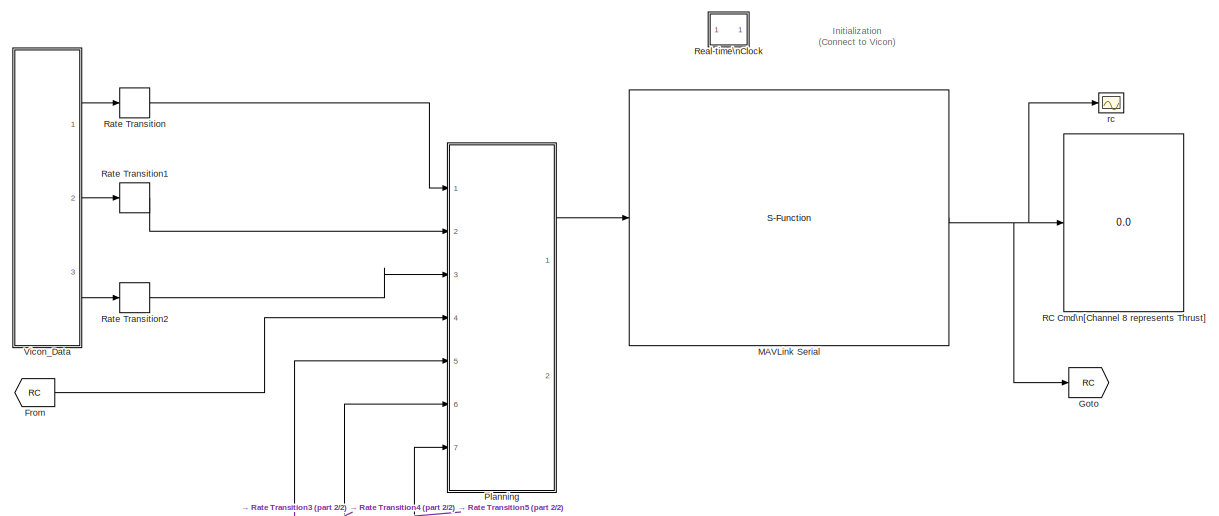
[diagram: root canvas - part 1/2, full width, top band]
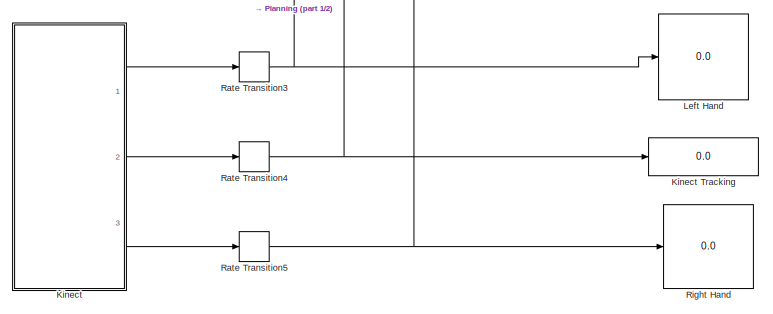
[diagram: root canvas - part 2/2, bottom left region]
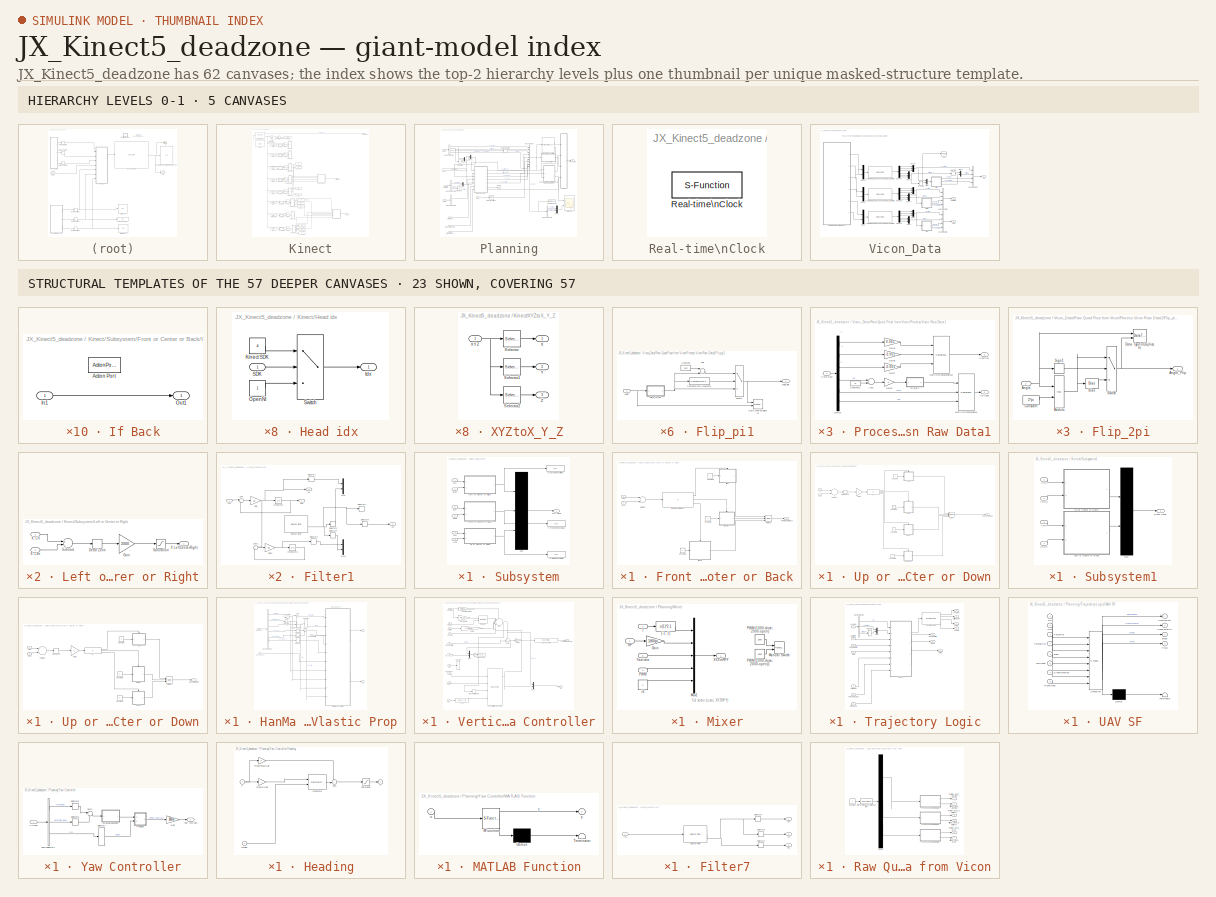
[diagram: thumbnail index - top-2 hierarchy levels (5 canvases) + 23 structural-template representatives of the remaining 57 canvases]
MODEL JX_Kinect5_deadzone
KIND model
CONFIG InitFcn = sample_time=0.005;%0.004;%0.0025;%0.02;\nDeltaT = 0.02;\ng = 9.81;\nH0 = g%0.3165;\nKl = 1;\n\nOmega_r = 1.6;%for Horizontal reference\nZeta_r = 1; %for Horizontal reference\nOmega = 1.8;%for Horizontal Control\nZeta = 0.5;    %for Horizontal Control\n\nOmega_h_r = 2.5; %for vertical reference\nZeta_h_r = 0.8;  %for vertical reference\nOmega_h = 2.7;    %for vertical control\nZeta_h = 0.8;        ...<+569ch>
BLOCK [From] From
  GotoTag = RC
  SID = 4
  TagVisibility = global
BLOCK [Goto] Goto
  GotoTag = RC
  SID = 5
  TagVisibility = global
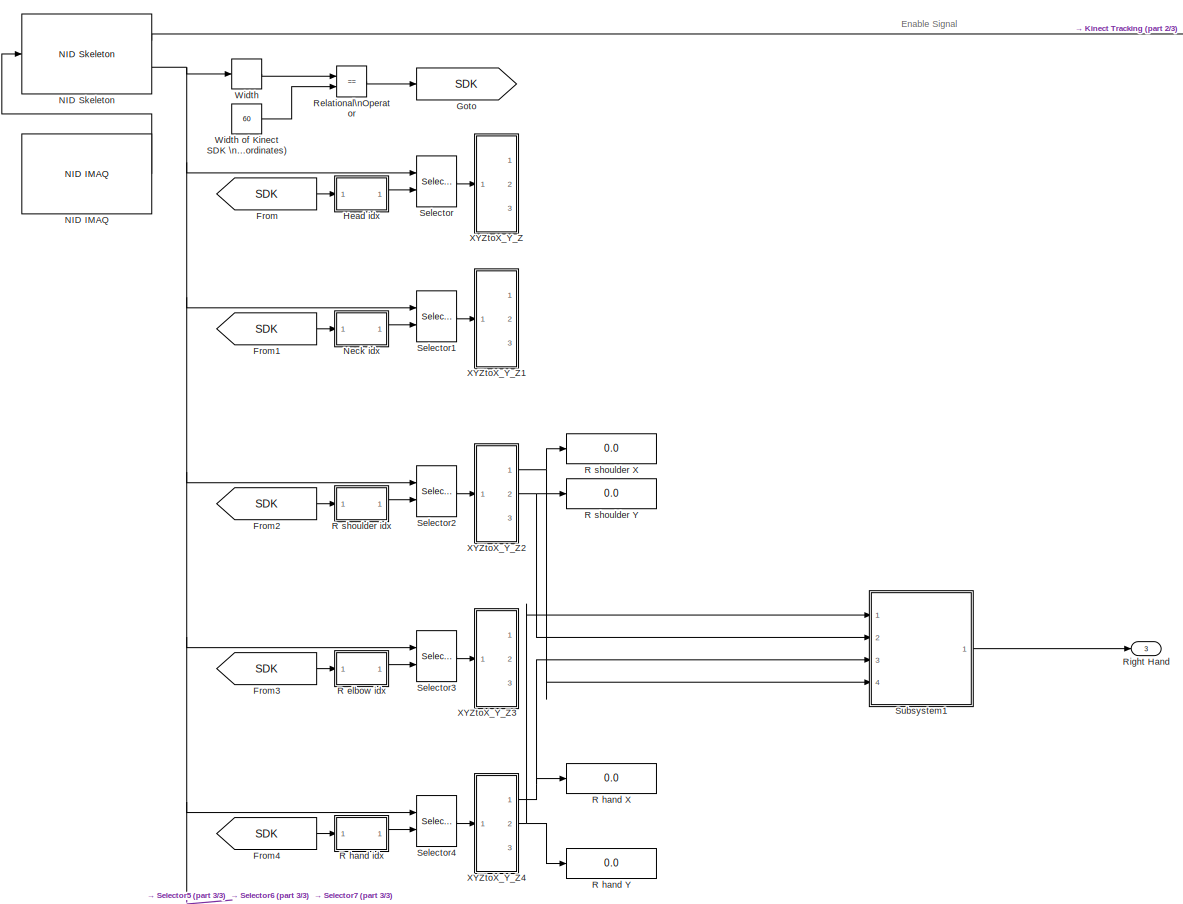
[diagram: Kinect - part 1/3, full width, top band]
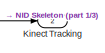
[diagram: Kinect - part 2/3, top right region]
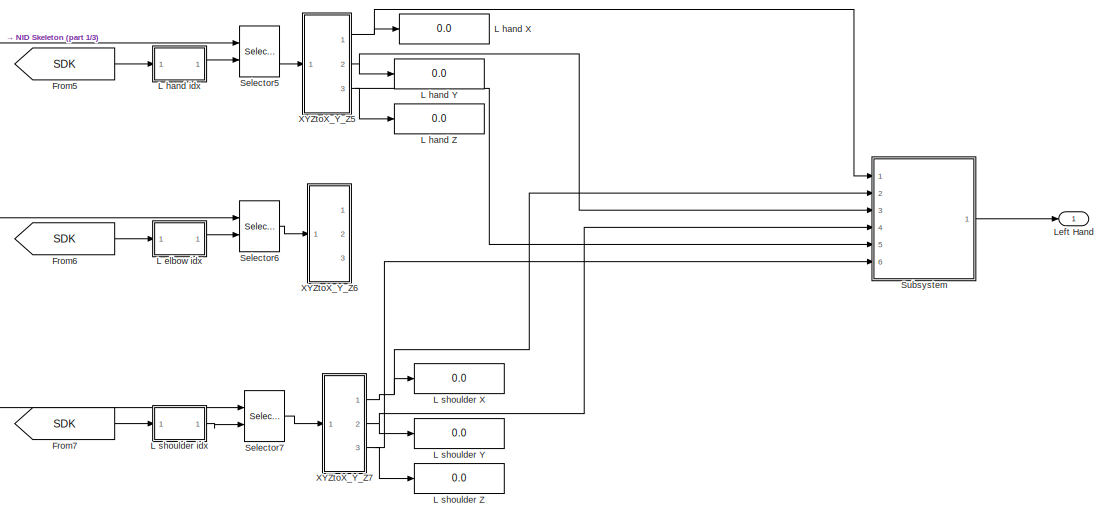
[diagram: Kinect - part 3/3, bottom center region]
BLOCK [SubSystem] Kinect
  FunctionWithSeparateData = off
  MaskDisplay = image(imread('kinect.jpg'));port_label('output', 1, 'Roll/Pitch/Trigger'); port_label('output', 2, 'Tracking');
  MaskHideContents = off
  MaskIconFrame = on
  MaskIconOpaque = on
  MaskIconRotate = none
  MaskIconUnits = autoscale
  MaskPortRotate = default
  MinAlgLoopOccurrences = off
  Opaque = off
  Ports = [0, 3]
  PropExecContextOutsideSubsystem = off
  RTWSystemCode = Auto
  RequestExecContextInheritance = off
  SID = 2087
BLOCK [Display] Kinect Tracking
  Decimation = 1
  Lockdown = off
  Ports = [1]
  SID = 2629
BLOCK [From] Kinect/From
  GotoTag = SDK
  SID = 2120
BLOCK [From] Kinect/From1
  GotoTag = SDK
  SID = 2121
BLOCK [From] Kinect/From2
  GotoTag = SDK
  SID = 2122
BLOCK [From] Kinect/From3
  GotoTag = SDK
  SID = 2123
BLOCK [From] Kinect/From4
  GotoTag = SDK
  SID = 2124
BLOCK [From] Kinect/From5
  GotoTag = SDK
  SID = 2125
BLOCK [From] Kinect/From6
  GotoTag = SDK
  SID = 2126
BLOCK [From] Kinect/From7
  GotoTag = SDK
  SID = 2127
BLOCK [Goto] Kinect/Goto
  GotoTag = SDK
  SID = 2128
  TagVisibility = local
BLOCK [SubSystem] Kinect/Head idx
  FunctionWithSeparateData = off
  MaskHideContents = off
  MinAlgLoopOccurrences = off
  Opaque = off
  Ports = [1, 1]
  PropExecContextOutsideSubsystem = off
  RTWSystemCode = Auto
  RequestExecContextInheritance = off
  SID = 2173
BLOCK [Outport] Kinect/Head idx/Idx
  IconDisplay = Port number
  SID = 2178
BLOCK [Constant] Kinect/Head idx/Kinect SDK
  SID = 2175
  Value = 4
BLOCK [Constant] Kinect/Head idx/OpenNI
  SID = 2176
BLOCK [Inport] Kinect/Head idx/SDK
  IconDisplay = Port number
  SID = 2174
BLOCK [Switch] Kinect/Head idx/Switch
  Criteria = u2 ~= 0
  InputSameDT = off
  SID = 2177
  SaturateOnIntegerOverflow = off
BLOCK [Outport] Kinect/Kinect Tracking
  IconDisplay = Port number
  Port = 2
  SID = 2627
BLOCK [SubSystem] Kinect/L elbow idx
  FunctionWithSeparateData = off
  MaskHideContents = off
  MinAlgLoopOccurrences = off
  Opaque = off
  Ports = [1, 1]
  PropExecContextOutsideSubsystem = off
  RTWSystemCode = Auto
  RequestExecContextInheritance = off
  SID = 2182
BLOCK [Outport] Kinect/L elbow idx/Idx
  IconDisplay = Port number
  SID = 2187
BLOCK [Constant] Kinect/L elbow idx/Kinect SDK
  SID = 2184
  Value = 6
BLOCK [Constant] Kinect/L elbow idx/OpenNI
  SID = 2185
  Value = 8
BLOCK [Inport] Kinect/L elbow idx/SDK
  IconDisplay = Port number
  SID = 2183
BLOCK [Switch] Kinect/L elbow idx/Switch
  Criteria = u2 ~= 0
  InputSameDT = off
  SID = 2186
  SaturateOnIntegerOverflow = off
BLOCK [Display] Kinect/L hand X
  Decimation = 1
  Lockdown = off
  Ports = [1]
  SID = 2188
BLOCK [Display] Kinect/L hand Y
  Decimation = 1
  Lockdown = off
  Ports = [1]
  SID = 2189
BLOCK [Display] Kinect/L hand Z
  Decimation = 1
  Lockdown = off
  Ports = [1]
  SID = 2190
BLOCK [SubSystem] Kinect/L hand idx
  FunctionWithSeparateData = off
  MaskHideContents = off
  MinAlgLoopOccurrences = off
  Opaque = off
  Ports = [1, 1]
  PropExecContextOutsideSubsystem = off
  RTWSystemCode = Auto
  RequestExecContextInheritance = off
  SID = 2191
BLOCK [Outport] Kinect/L hand idx/Idx
  IconDisplay = Port number
  SID = 2196
BLOCK [Constant] Kinect/L hand idx/Kinect SDK
  SID = 2193
  Value = 8
BLOCK [Constant] Kinect/L hand idx/OpenNI
  SID = 2194
  Value = 9
BLOCK [Inport] Kinect/L hand idx/SDK
  IconDisplay = Port number
  SID = 2192
BLOCK [Switch] Kinect/L hand idx/Switch
  Criteria = u2 ~= 0
  InputSameDT = off
  SID = 2195
  SaturateOnIntegerOverflow = off
BLOCK [Display] Kinect/L shoulder X
  Decimation = 1
  Lockdown = off
  Ports = [1]
  SID = 2197
BLOCK [Display] Kinect/L shoulder Y
  Decimation = 1
  Lockdown = off
  Ports = [1]
  SID = 2198
BLOCK [Display] Kinect/L shoulder Z
  Decimation = 1
  Lockdown = off
  Ports = [1]
  SID = 2199
BLOCK [SubSystem] Kinect/L shoulder idx
  FunctionWithSeparateData = off
  MaskHideContents = off
  MinAlgLoopOccurrences = off
  Opaque = off
  Ports = [1, 1]
  PropExecContextOutsideSubsystem = off
  RTWSystemCode = Auto
  RequestExecContextInheritance = off
  SID = 2200
BLOCK [Outport] Kinect/L shoulder idx/Idx
  IconDisplay = Port number
  SID = 2205
BLOCK [Constant] Kinect/L shoulder idx/Kinect SDK
  SID = 2202
  Value = 5
BLOCK [Constant] Kinect/L shoulder idx/OpenNI
  SID = 2203
  Value = 7
BLOCK [Inport] Kinect/L shoulder idx/SDK
  IconDisplay = Port number
  SID = 2201
BLOCK [Switch] Kinect/L shoulder idx/Switch
  Criteria = u2 ~= 0
  InputSameDT = off
  SID = 2204
  SaturateOnIntegerOverflow = off
BLOCK [Outport] Kinect/Left Hand
  IconDisplay = Port number
  SID = 2628
BLOCK [Reference] Kinect/NID IMAQ  REF=nid_lib/NID IMAQ
  Ports = [0, 1]
  SID = 2207
  SourceBlock = nid_lib/NID IMAQ
  SourceType = NID IMAQ
  angle = 0
  angle_input = off
  angle_read = off
  imaq_depth = off
  imaq_image = off
  imaq_ir = off
  imaq_motion = off
  imaq_sample_time = 1/25
  imaq_skeleton = on
  infer_skeleton = on
  mirror_image = off
  near_mode = off
  needPsiPose = off
  res_fps = VGA (640x480): 30 FPS
  seated_mode = on
  skeleton_smooth = [1.0 0.5 0.5 0.05 0.04]
  view_point = off
BLOCK [Reference] Kinect/NID Skeleton  REF=nid_lib/NID Skeleton
  Ports = [1, 2]
  SID = 2208
  SourceBlock = nid_lib/NID Skeleton
  SourceType = NID Skeleton
  conv_XYZ_RW = on
  num_of_skeleton_tracking = 1
  viewer = off
BLOCK [SubSystem] Kinect/Neck idx
  FunctionWithSeparateData = off
  MaskHideContents = off
  MinAlgLoopOccurrences = off
  Opaque = off
  Ports = [1, 1]
  PropExecContextOutsideSubsystem = off
  RTWSystemCode = Auto
  RequestExecContextInheritance = off
  SID = 2213
BLOCK [Outport] Kinect/Neck idx/Idx
  IconDisplay = Port number
  SID = 2218
BLOCK [Constant] Kinect/Neck idx/Kinect SDK
  SID = 2215
  Value = 3
BLOCK [Constant] Kinect/Neck idx/OpenNI
  SID = 2216
  Value = 2
BLOCK [Inport] Kinect/Neck idx/SDK
  IconDisplay = Port number
  SID = 2214
BLOCK [Switch] Kinect/Neck idx/Switch
  Criteria = u2 ~= 0
  InputSameDT = off
  SID = 2217
  SaturateOnIntegerOverflow = off
BLOCK [SubSystem] Kinect/R elbow idx
  FunctionWithSeparateData = off
  MaskHideContents = off
  MinAlgLoopOccurrences = off
  Opaque = off
  Ports = [1, 1]
  PropExecContextOutsideSubsystem = off
  RTWSystemCode = Auto
  RequestExecContextInheritance = off
  SID = 2229
BLOCK [Outport] Kinect/R elbow idx/Idx
  IconDisplay = Port number
  SID = 2234
BLOCK [Constant] Kinect/R elbow idx/Kinect SDK
  SID = 2231
  Value = 10
BLOCK [Constant] Kinect/R elbow idx/OpenNI
  SID = 2232
  Value = 5
BLOCK [Inport] Kinect/R elbow idx/SDK
  IconDisplay = Port number
  SID = 2230
BLOCK [Switch] Kinect/R elbow idx/Switch
  Criteria = u2 ~= 0
  InputSameDT = off
  SID = 2233
  SaturateOnIntegerOverflow = off
BLOCK [Display] Kinect/R hand X
  Decimation = 1
  Lockdown = off
  Ports = [1]
  SID = 2235
BLOCK [Display] Kinect/R hand Y
  Decimation = 1
  Lockdown = off
  Ports = [1]
  SID = 2236
BLOCK [SubSystem] Kinect/R hand idx
  FunctionWithSeparateData = off
  MaskHideContents = off
  MinAlgLoopOccurrences = off
  Opaque = off
  Ports = [1, 1]
  PropExecContextOutsideSubsystem = off
  RTWSystemCode = Auto
  RequestExecContextInheritance = off
  SID = 2238
BLOCK [Outport] Kinect/R hand idx/Idx
  IconDisplay = Port number
  SID = 2243
BLOCK [Constant] Kinect/R hand idx/Kinect SDK
  SID = 2240
  Value = 12
BLOCK [Constant] Kinect/R hand idx/OpenNI
  SID = 2241
  Value = 6
BLOCK [Inport] Kinect/R hand idx/SDK
  IconDisplay = Port number
  SID = 2239
BLOCK [Switch] Kinect/R hand idx/Switch
  Criteria = u2 ~= 0
  InputSameDT = off
  SID = 2242
  SaturateOnIntegerOverflow = off
BLOCK [Display] Kinect/R shoulder X
  Decimation = 1
  Lockdown = off
  Ports = [1]
  SID = 2245
BLOCK [Display] Kinect/R shoulder Y
  Decimation = 1
  Lockdown = off
  Ports = [1]
  SID = 2246
BLOCK [SubSystem] Kinect/R shoulder idx
  FunctionWithSeparateData = off
  MaskHideContents = off
  MinAlgLoopOccurrences = off
  Opaque = off
  Ports = [1, 1]
  PropExecContextOutsideSubsystem = off
  RTWSystemCode = Auto
  RequestExecContextInheritance = off
  SID = 2248
BLOCK [Outport] Kinect/R shoulder idx/Idx
  IconDisplay = Port number
  SID = 2253
BLOCK [Constant] Kinect/R shoulder idx/Kinect SDK
  SID = 2250
  Value = 9
BLOCK [Constant] Kinect/R shoulder idx/OpenNI
  SID = 2251
  Value = 4
BLOCK [Inport] Kinect/R shoulder idx/SDK
  IconDisplay = Port number
  SID = 2249
BLOCK [Switch] Kinect/R shoulder idx/Switch
  Criteria = u2 ~= 0
  InputSameDT = off
  SID = 2252
  SaturateOnIntegerOverflow = off
BLOCK [RelationalOperator] Kinect/Relational\nOperator
  InputSameDT = off
  Operator = ==
  OutDataTypeStr = boolean
  Ports = [2, 1]
  SID = 2254
BLOCK [Outport] Kinect/Right Hand
  IconDisplay = Port number
  Port = 3
  SID = 3028
BLOCK [Selector] Kinect/Selector
  IndexOptions = Select all,Index vector (port),Select all
  Indices = [1 3],1,1
  InputPortWidth = 3
  NumberOfDimensions = 3
  OutputSizes = 1,1,1
  Ports = [2, 1]
  SID = 2259
BLOCK [Selector] Kinect/Selector1
  IndexOptions = Select all,Index vector (port),Select all
  Indices = [1 3],1,1
  InputPortWidth = 3
  NumberOfDimensions = 3
  OutputSizes = 1,1,1
  Ports = [2, 1]
  SID = 2260
BLOCK [Selector] Kinect/Selector2
  IndexOptions = Select all,Index vector (port),Select all
  Indices = [1 3],1,1
  InputPortWidth = 3
  NumberOfDimensions = 3
  OutputSizes = 1,1,1
  Ports = [2, 1]
  SID = 2261
BLOCK [Selector] Kinect/Selector3
  IndexOptions = Select all,Index vector (port),Select all
  Indices = [1 3],1,1
  InputPortWidth = 3
  NumberOfDimensions = 3
  OutputSizes = 1,1,1
  Ports = [2, 1]
  SID = 2262
BLOCK [Selector] Kinect/Selector4
  IndexOptions = Select all,Index vector (port),Select all
  Indices = [1 3],1,1
  InputPortWidth = 3
  NumberOfDimensions = 3
  OutputSizes = 1,1,1
  Ports = [2, 1]
  SID = 2263
BLOCK [Selector] Kinect/Selector5
  IndexOptions = Select all,Index vector (port),Select all
  Indices = [1 3],1,1
  InputPortWidth = 3
  NumberOfDimensions = 3
  OutputSizes = 1,1,1
  Ports = [2, 1]
  SID = 2264
BLOCK [Selector] Kinect/Selector6
  IndexOptions = Select all,Index vector (port),Select all
  Indices = [1 3],1,1
  InputPortWidth = 3
  NumberOfDimensions = 3
  OutputSizes = 1,1,1
  Ports = [2, 1]
  SID = 2265
BLOCK [Selector] Kinect/Selector7
  IndexOptions = Select all,Index vector (port),Select all
  Indices = [1 3],1,1
  InputPortWidth = 3
  NumberOfDimensions = 3
  OutputSizes = 1,1,1
  Ports = [2, 1]
  SID = 2266
BLOCK [SubSystem] Kinect/Subsystem
  FunctionWithSeparateData = off
  MaskHideContents = off
  MinAlgLoopOccurrences = off
  Opaque = off
  Ports = [6, 1]
  PropExecContextOutsideSubsystem = off
  RTWSystemCode = Auto
  RequestExecContextInheritance = off
  SID = 2267
BLOCK [SubSystem] Kinect/Subsystem/Front or Center or Back
  FunctionWithSeparateData = off
  MaskHideContents = off
  MinAlgLoopOccurrences = off
  Opaque = off
  Ports = [2, 1]
  PropExecContextOutsideSubsystem = off
  RTWSystemCode = Auto
  RequestExecContextInheritance = off
  SID = 2274
BLOCK [Constant] Kinect/Subsystem/Front or Center or Back/Constant1
  SID = 3039
  Value = 0
BLOCK [Constant] Kinect/Subsystem/Front or Center or Back/Constant2
  SID = 3038
BLOCK [Constant] Kinect/Subsystem/Front or Center or Back/Constant3
  SID = 3040
  Value = -1
BLOCK [SubSystem] Kinect/Subsystem/Front or Center or Back/If Back
  FunctionWithSeparateData = off
  MaskHideContents = off
  MinAlgLoopOccurrences = off
  Opaque = off
  Ports = [1, 1, 0, 0, 0, 0, 0, 1]
  PropExecContextOutsideSubsystem = off
  RTWSystemCode = Auto
  RequestExecContextInheritance = off
  SID = 2280
  TreatAsAtomicUnit = on
BLOCK [ActionPort] Kinect/Subsystem/Front or Center or Back/If Back/Action Port
  ActionType = else
  SID = 2282
BLOCK [Inport] Kinect/Subsystem/Front or Center or Back/If Back/In1
  IconDisplay = Port number
  SID = 2281
BLOCK [Outport] Kinect/Subsystem/Front or Center or Back/If Back/Out1
  IconDisplay = Port number
  SID = 2285
BLOCK [SubSystem] Kinect/Subsystem/Front or Center or Back/If Center
  FunctionWithSeparateData = off
  MaskHideContents = off
  MinAlgLoopOccurrences = off
  Opaque = off
  Ports = [1, 1, 0, 0, 0, 0, 0, 1]
  PropExecContextOutsideSubsystem = off
  RTWSystemCode = Auto
  RequestExecContextInheritance = off
  SID = 2288
  TreatAsAtomicUnit = on
BLOCK [ActionPort] Kinect/Subsystem/Front or Center or Back/If Center/Action Port
  ActionType = elseif
  SID = 2290
BLOCK [Inport] Kinect/Subsystem/Front or Center or Back/If Center/In1
  IconDisplay = Port number
  SID = 2289
BLOCK [Outport] Kinect/Subsystem/Front or Center or Back/If Center/Out1
  IconDisplay = Port number
  SID = 2293
BLOCK [If] Kinect/Subsystem/Front or Center or Back/If Front or Center or Back
  ElseIfExpressions = u1 >= 0.23
  IfExpression = u1 > 0.40
  Ports = [1, 3]
  SID = 2296
BLOCK [SubSystem] Kinect/Subsystem/Front or Center or Back/If front
  FunctionWithSeparateData = off
  MaskHideContents = off
  MinAlgLoopOccurrences = off
  Opaque = off
  Ports = [1, 1, 0, 0, 0, 0, 0, 1]
  PropExecContextOutsideSubsystem = off
  RTWSystemCode = Auto
  RequestExecContextInheritance = off
  SID = 2297
  TreatAsAtomicUnit = on
BLOCK [ActionPort] Kinect/Subsystem/Front or Center or Back/If front/Action Port
  ActionType = then
  SID = 2299
BLOCK [Inport] Kinect/Subsystem/Front or Center or Back/If front/In1
  IconDisplay = Port number
  SID = 2298
BLOCK [Outport] Kinect/Subsystem/Front or Center or Back/If front/Out1
  IconDisplay = Port number
  SID = 2302
BLOCK [Merge] Kinect/Subsystem/Front or Center or Back/Merge3
  Inputs = 3
  Ports = [3, 1]
  SID = 2308
BLOCK [Sum] Kinect/Subsystem/Front or Center or Back/Subtract
  InputSameDT = off
  Inputs = -+
  OutDataTypeStr = Inherit: Inherit via internal rule
  Ports = [2, 1]
  SID = 2314
  SaturateOnIntegerOverflow = off
BLOCK [Outport] Kinect/Subsystem/Front or Center or Back/Y FrontCenterBack
  IconDisplay = Port number
  SID = 2315
BLOCK [Inport] Kinect/Subsystem/Front or Center or Back/Z: LH
  IconDisplay = Port number
  SID = 2275
BLOCK [Inport] Kinect/Subsystem/Front or Center or Back/Z: LSh
  IconDisplay = Port number
  Port = 2
  SID = 2276
BLOCK [Outport] Kinect/Subsystem/Left Hand
  IconDisplay = Port number
  SID = 2474
BLOCK [SubSystem] Kinect/Subsystem/Left or Center or Right
  FunctionWithSeparateData = off
  MaskHideContents = off
  MinAlgLoopOccurrences = off
  Opaque = off
  Ports = [2, 1]
  PropExecContextOutsideSubsystem = off
  RTWSystemCode = Auto
  RequestExecContextInheritance = off
  SID = 2318
BLOCK [DeadZone] Kinect/Subsystem/Left or Center or Right/Dead Zone
  LowerValue = -0.14
  SID = 3047
  UpperValue = 0.14
BLOCK [Gain] Kinect/Subsystem/Left or Center or Right/Gain
  Gain = 2000
  OutDataTypeStr = Inherit: Inherit via internal rule
  ParamDataTypeStr = Inherit: Inherit via internal rule
  SID = 3050
  SaturateOnIntegerOverflow = off
BLOCK [Saturate] Kinect/Subsystem/Left or Center or Right/Saturation
  InputPortMap = u0
  LowerLimit = -1
  Ports = [1, 1]
  SID = 3051
  UpperLimit = 1
BLOCK [Sum] Kinect/Subsystem/Left or Center or Right/Subtract
  InputSameDT = off
  Inputs = +-
  OutDataTypeStr = Inherit: Inherit via internal rule
  Ports = [2, 1]
  SID = 3049
  SaturateOnIntegerOverflow = off
BLOCK [Outport] Kinect/Subsystem/Left or Center or Right/X LeftCenterRight
  IconDisplay = Port number
  SID = 2392
BLOCK [Inport] Kinect/Subsystem/Left or Center or Right/X: LH
  IconDisplay = Port number
  SID = 2319
BLOCK [Inport] Kinect/Subsystem/Left or Center or Right/X: LSh
  IconDisplay = Port number
  Port = 2
  SID = 2320
BLOCK [Mux] Kinect/Subsystem/Mux
  DisplayOption = signals
  Inputs = 3
  Ports = [3, 1]
  SID = 2395
BLOCK [SubSystem] Kinect/Subsystem/Up or Center or Down
  FunctionWithSeparateData = off
  MaskHideContents = off
  MinAlgLoopOccurrences = off
  Opaque = off
  Ports = [2, 1]
  PropExecContextOutsideSubsystem = off
  RTWSystemCode = Auto
  RequestExecContextInheritance = off
  SID = 2398
BLOCK [SubSystem] Kinect/Subsystem/Up or Center or Down/Center
  FunctionWithSeparateData = off
  MaskHideContents = off
  MinAlgLoopOccurrences = off
  Opaque = off
  Ports = [1, 1, 0, 0, 0, 0, 0, 1]
  PropExecContextOutsideSubsystem = off
  RTWSystemCode = Auto
  RequestExecContextInheritance = off
  SID = 3091
  TreatAsAtomicUnit = on
BLOCK [ActionPort] Kinect/Subsystem/Up or Center or Down/Center/Action Port
  ActionType = elseif
  SID = 3093
BLOCK [Inport] Kinect/Subsystem/Up or Center or Down/Center/In1
  IconDisplay = Port number
  SID = 3092
BLOCK [Outport] Kinect/Subsystem/Up or Center or Down/Center/Out1
  IconDisplay = Port number
  SID = 3094
BLOCK [Constant] Kinect/Subsystem/Up or Center or Down/Constant
  SID = 3095
BLOCK [Constant] Kinect/Subsystem/Up or Center or Down/Constant1
  SID = 3096
  Value = 0
BLOCK [Constant] Kinect/Subsystem/Up or Center or Down/Constant2
  SID = 3097
  Value = -1
BLOCK [Constant] Kinect/Subsystem/Up or Center or Down/Constant3
  SID = 3098
  Value = -2
BLOCK [DeadZone] Kinect/Subsystem/Up or Center or Down/Dead Zone
  LowerValue = -0.12
  SID = 3099
  UpperValue = 0.12
BLOCK [SubSystem] Kinect/Subsystem/Up or Center or Down/Down max
  FunctionWithSeparateData = off
  MaskHideContents = off
  MinAlgLoopOccurrences = off
  Opaque = off
  Ports = [1, 1, 0, 0, 0, 0, 0, 1]
  PropExecContextOutsideSubsystem = off
  RTWSystemCode = Auto
  RequestExecContextInheritance = off
  SID = 3101
  TreatAsAtomicUnit = on
BLOCK [ActionPort] Kinect/Subsystem/Up or Center or Down/Down max/Action Port
  ActionType = else
  SID = 3103
BLOCK [Inport] Kinect/Subsystem/Up or Center or Down/Down max/In1
  IconDisplay = Port number
  SID = 3102
BLOCK [Outport] Kinect/Subsystem/Up or Center or Down/Down max/Out1
  IconDisplay = Port number
  SID = 3104
BLOCK [SubSystem] Kinect/Subsystem/Up or Center or Down/Down1
  FunctionWithSeparateData = off
  MaskHideContents = off
  MinAlgLoopOccurrences = off
  Opaque = off
  Ports = [1, 1, 0, 0, 0, 0, 0, 1]
  PropExecContextOutsideSubsystem = off
  RTWSystemCode = Auto
  RequestExecContextInheritance = off
  SID = 3105
  TreatAsAtomicUnit = on
BLOCK [ActionPort] Kinect/Subsystem/Up or Center or Down/Down1/Action Port
  ActionType = elseif
  SID = 3107
BLOCK [Inport] Kinect/Subsystem/Up or Center or Down/Down1/In1
  IconDisplay = Port number
  SID = 3106
BLOCK [Outport] Kinect/Subsystem/Up or Center or Down/Down1/Out1
  IconDisplay = Port number
  SID = 3108
BLOCK [Gain] Kinect/Subsystem/Up or Center or Down/Gain1
  Gain = 2
  OutDataTypeStr = Inherit: Inherit via internal rule
  ParamDataTypeStr = Inherit: Inherit via internal rule
  SID = 3109
  SaturateOnIntegerOverflow = off
BLOCK [If] Kinect/Subsystem/Up or Center or Down/If
  ElseIfExpressions = u1 ==0, u1> -0.5
  Ports = [1, 4]
  SID = 3110
BLOCK [Merge] Kinect/Subsystem/Up or Center or Down/Merge
  Inputs = 4
  Ports = [4, 1]
  SID = 3111
BLOCK [Sum] Kinect/Subsystem/Up or Center or Down/Subtract
  InputSameDT = off
  Inputs = +-
  OutDataTypeStr = Inherit: Inherit via internal rule
  Ports = [2, 1]
  SID = 3112
  SaturateOnIntegerOverflow = off
BLOCK [SubSystem] Kinect/Subsystem/Up or Center or Down/Top1
  FunctionWithSeparateData = off
  MaskHideContents = off
  MinAlgLoopOccurrences = off
  Opaque = off
  Ports = [1, 1, 0, 0, 0, 0, 0, 1]
  PropExecContextOutsideSubsystem = off
  RTWSystemCode = Auto
  RequestExecContextInheritance = off
  SID = 3113
  TreatAsAtomicUnit = on
BLOCK [ActionPort] Kinect/Subsystem/Up or Center or Down/Top1/Action Port
  ActionType = then
  SID = 3115
BLOCK [Inport] Kinect/Subsystem/Up or Center or Down/Top1/In1
  IconDisplay = Port number
  SID = 3114
BLOCK [Outport] Kinect/Subsystem/Up or Center or Down/Top1/Out1
  IconDisplay = Port number
  SID = 3116
BLOCK [Inport] Kinect/Subsystem/Up or Center or Down/Y LH
  IconDisplay = Port number
  SID = 3118
BLOCK [Inport] Kinect/Subsystem/Up or Center or Down/Y LSh
  IconDisplay = Port number
  Port = 2
  SID = 3119
BLOCK [Outport] Kinect/Subsystem/Up or Center or Down/Z UpCenterDown
  IconDisplay = Port number
  SID = 3117
BLOCK [Display] Kinect/Subsystem/X LeftCenterRight
  Decimation = 1
  Lockdown = off
  Ports = [1]
  SID = 2727
BLOCK [Inport] Kinect/Subsystem/XLH
  IconDisplay = Port number
  SID = 2268
BLOCK [Inport] Kinect/Subsystem/XLSH
  IconDisplay = Port number
  Port = 2
  SID = 2269
BLOCK [Display] Kinect/Subsystem/Y FrontCenterBack
  Decimation = 1
  Lockdown = off
  Ports = [1]
  SID = 2734
BLOCK [Inport] Kinect/Subsystem/YLH
  IconDisplay = Port number
  Port = 3
  SID = 2270
BLOCK [Inport] Kinect/Subsystem/YLSh
  IconDisplay = Port number
  Port = 4
  SID = 2271
BLOCK [Display] Kinect/Subsystem/Z UpCenterDown
  Decimation = 1
  Lockdown = off
  Ports = [1]
  SID = 2730
BLOCK [Inport] Kinect/Subsystem/ZLH
  IconDisplay = Port number
  Port = 5
  SID = 2272
BLOCK [Inport] Kinect/Subsystem/ZLSh
  IconDisplay = Port number
  Port = 6
  SID = 2273
BLOCK [SubSystem] Kinect/Subsystem1
  FunctionWithSeparateData = off
  MaskHideContents = off
  MinAlgLoopOccurrences = off
  Opaque = off
  Ports = [4, 1]
  PropExecContextOutsideSubsystem = off
  RTWSystemCode = Auto
  RequestExecContextInheritance = off
  SID = 2770
BLOCK [SubSystem] Kinect/Subsystem1/Left or Center or Right
  FunctionWithSeparateData = off
  MaskHideContents = off
  MinAlgLoopOccurrences = off
  Opaque = off
  Ports = [2, 1]
  PropExecContextOutsideSubsystem = off
  RTWSystemCode = Auto
  RequestExecContextInheritance = off
  SID = 2779
BLOCK [DeadZone] Kinect/Subsystem1/Left or Center or Right/Dead Zone
  LowerValue = -0.14
  SID = 3130
  UpperValue = 0.14
BLOCK [Gain] Kinect/Subsystem1/Left or Center or Right/Gain
  Gain = 2000
  OutDataTypeStr = Inherit: Inherit via internal rule
  ParamDataTypeStr = Inherit: Inherit via internal rule
  SID = 3131
  SaturateOnIntegerOverflow = off
BLOCK [Outport] Kinect/Subsystem1/Left or Center or Right/LeftCenterRight
  IconDisplay = Port number
  SID = 3134
BLOCK [Saturate] Kinect/Subsystem1/Left or Center or Right/Saturation
  InputPortMap = u0
  LowerLimit = -1
  Ports = [1, 1]
  SID = 3132
  UpperLimit = 1
BLOCK [Sum] Kinect/Subsystem1/Left or Center or Right/Subtract
  InputSameDT = off
  Inputs = +-
  OutDataTypeStr = Inherit: Inherit via internal rule
  Ports = [2, 1]
  SID = 3133
  SaturateOnIntegerOverflow = off
BLOCK [Inport] Kinect/Subsystem1/Left or Center or Right/X: RH
  IconDisplay = Port number
  SID = 2780
BLOCK [Inport] Kinect/Subsystem1/Left or Center or Right/X: RSh
  IconDisplay = Port number
  Port = 2
  SID = 2781
BLOCK [Mux] Kinect/Subsystem1/Mux
  DisplayOption = signals
  Inputs = 2
  Ports = [2, 1]
  SID = 2856
BLOCK [Outport] Kinect/Subsystem1/Right Hand
  IconDisplay = Port number
  SID = 3027
BLOCK [SubSystem] Kinect/Subsystem1/Up or Center or Down
  FunctionWithSeparateData = off
  MaskHideContents = off
  MinAlgLoopOccurrences = off
  Opaque = off
  Ports = [2, 1]
  PropExecContextOutsideSubsystem = off
  RTWSystemCode = Auto
  RequestExecContextInheritance = off
  SID = 2942
BLOCK [SubSystem] Kinect/Subsystem1/Up or Center or Down/Center
  FunctionWithSeparateData = off
  MaskHideContents = off
  MinAlgLoopOccurrences = off
  Opaque = off
  Ports = [1, 1, 0, 0, 0, 0, 0, 1]
  PropExecContextOutsideSubsystem = off
  RTWSystemCode = Auto
  RequestExecContextInheritance = off
  SID = 3137
  TreatAsAtomicUnit = on
BLOCK [ActionPort] Kinect/Subsystem1/Up or Center or Down/Center/Action Port
  ActionType = elseif
  SID = 3139
BLOCK [Inport] Kinect/Subsystem1/Up or Center or Down/Center/In1
  IconDisplay = Port number
  SID = 3138
BLOCK [Outport] Kinect/Subsystem1/Up or Center or Down/Center/Out1
  IconDisplay = Port number
  SID = 3140
BLOCK [Constant] Kinect/Subsystem1/Up or Center or Down/Constant
  SID = 3141
BLOCK [Constant] Kinect/Subsystem1/Up or Center or Down/Constant1
  SID = 3142
  Value = 0
BLOCK [Constant] Kinect/Subsystem1/Up or Center or Down/Constant2
  SID = 3143
  Value = -1
BLOCK [DeadZone] Kinect/Subsystem1/Up or Center or Down/Dead Zone
  LowerValue = -0.12
  SID = 3145
  UpperValue = 0.12
BLOCK [SubSystem] Kinect/Subsystem1/Up or Center or Down/Down1
  FunctionWithSeparateData = off
  MaskHideContents = off
  MinAlgLoopOccurrences = off
  Opaque = off
  Ports = [1, 1, 0, 0, 0, 0, 0, 1]
  PropExecContextOutsideSubsystem = off
  RTWSystemCode = Auto
  RequestExecContextInheritance = off
  SID = 3150
  TreatAsAtomicUnit = on
BLOCK [ActionPort] Kinect/Subsystem1/Up or Center or Down/Down1/Action Port
  ActionType = else
  SID = 3152
BLOCK [Inport] Kinect/Subsystem1/Up or Center or Down/Down1/In1
  IconDisplay = Port number
  SID = 3151
BLOCK [Outport] Kinect/Subsystem1/Up or Center or Down/Down1/Out1
  IconDisplay = Port number
  SID = 3153
BLOCK [Gain] Kinect/Subsystem1/Up or Center or Down/Gain1
  Gain = 2
  OutDataTypeStr = Inherit: Inherit via internal rule
  ParamDataTypeStr = Inherit: Inherit via internal rule
  SID = 3154
  SaturateOnIntegerOverflow = off
BLOCK [If] Kinect/Subsystem1/Up or Center or Down/If
  ElseIfExpressions = u1 ==0
  Ports = [1, 3]
  SID = 3155
BLOCK [Merge] Kinect/Subsystem1/Up or Center or Down/Merge4
  Inputs = 3
  Ports = [3, 1]
  SID = 3156
BLOCK [Sum] Kinect/Subsystem1/Up or Center or Down/Subtract
  InputSameDT = off
  Inputs = +-
  OutDataTypeStr = Inherit: Inherit via internal rule
  Ports = [2, 1]
  SID = 3157
  SaturateOnIntegerOverflow = off
BLOCK [SubSystem] Kinect/Subsystem1/Up or Center or Down/Top1
  FunctionWithSeparateData = off
  MaskHideContents = off
  MinAlgLoopOccurrences = off
  Opaque = off
  Ports = [1, 1, 0, 0, 0, 0, 0, 1]
  PropExecContextOutsideSubsystem = off
  RTWSystemCode = Auto
  RequestExecContextInheritance = off
  SID = 3158
  TreatAsAtomicUnit = on
BLOCK [ActionPort] Kinect/Subsystem1/Up or Center or Down/Top1/Action Port
  ActionType = then
  SID = 3160
BLOCK [Inport] Kinect/Subsystem1/Up or Center or Down/Top1/In1
  IconDisplay = Port number
  SID = 3159
BLOCK [Outport] Kinect/Subsystem1/Up or Center or Down/Top1/Out1
  IconDisplay = Port number
  SID = 3161
BLOCK [Outport] Kinect/Subsystem1/Up or Center or Down/UpCenterDown
  IconDisplay = Port number
  SID = 3162
BLOCK [Inport] Kinect/Subsystem1/Up or Center or Down/Y: RH
  IconDisplay = Port number
  SID = 2943
BLOCK [Inport] Kinect/Subsystem1/Up or Center or Down/Y: RSh
  IconDisplay = Port number
  Port = 2
  SID = 2944
BLOCK [Inport] Kinect/Subsystem1/XRH
  IconDisplay = Port number
  Port = 3
  SID = 2773
BLOCK [Inport] Kinect/Subsystem1/XRSh
  IconDisplay = Port number
  Port = 4
  SID = 2771
BLOCK [Inport] Kinect/Subsystem1/YRH
  IconDisplay = Port number
  SID = 2777
BLOCK [Inport] Kinect/Subsystem1/YRSH
  IconDisplay = Port number
  Port = 2
  SID = 2775
BLOCK [Width] Kinect/Width
  SID = 2478
BLOCK [Constant] Kinect/Width of Kinect SDK \n(20 joints x 3 coordinates)
  SID = 2479
  Value = 60
BLOCK [SubSystem] Kinect/XYZtoX_Y_Z
  FunctionWithSeparateData = off
  MaskHideContents = off
  MinAlgLoopOccurrences = off
  Opaque = off
  Ports = [1, 3]
  PropExecContextOutsideSubsystem = off
  RTWSystemCode = Auto
  RequestExecContextInheritance = off
  SID = 2480
BLOCK [Selector] Kinect/XYZtoX_Y_Z/Selector
  IndexOptions = Index vector (dialog),Index vector (dialog),Index vector (dialog)
  Indices = 1,1,1
  InputPortWidth = 3
  NumberOfDimensions = 3
  OutputSizes = 1,1,1
  Ports = [1, 1]
  SID = 2482
BLOCK [Selector] Kinect/XYZtoX_Y_Z/Selector1
  IndexOptions = Index vector (dialog),Index vector (dialog),Index vector (dialog)
  Indices = 1,1,2
  InputPortWidth = 3
  NumberOfDimensions = 3
  OutputSizes = 1,1,1
  Ports = [1, 1]
  SID = 2483
BLOCK [Selector] Kinect/XYZtoX_Y_Z/Selector2
  IndexOptions = Index vector (dialog),Index vector (dialog),Index vector (dialog)
  Indices = 1,1,3
  InputPortWidth = 3
  NumberOfDimensions = 3
  OutputSizes = 1,1,1
  Ports = [1, 1]
  SID = 2484
BLOCK [Outport] Kinect/XYZtoX_Y_Z/X
  IconDisplay = Port number
  SID = 2485
BLOCK [Inport] Kinect/XYZtoX_Y_Z/XYZ
  IconDisplay = Port number
  SID = 2481
BLOCK [Outport] Kinect/XYZtoX_Y_Z/Y
  IconDisplay = Port number
  Port = 2
  SID = 2486
BLOCK [Outport] Kinect/XYZtoX_Y_Z/Z
  IconDisplay = Port number
  Port = 3
  SID = 2487
BLOCK [SubSystem] Kinect/XYZtoX_Y_Z1
  FunctionWithSeparateData = off
  MaskHideContents = off
  MinAlgLoopOccurrences = off
  Opaque = off
  Ports = [1, 3]
  PropExecContextOutsideSubsystem = off
  RTWSystemCode = Auto
  RequestExecContextInheritance = off
  SID = 2488
BLOCK [Selector] Kinect/XYZtoX_Y_Z1/Selector
  IndexOptions = Index vector (dialog),Index vector (dialog),Index vector (dialog)
  Indices = 1,1,1
  InputPortWidth = 3
  NumberOfDimensions = 3
  OutputSizes = 1,1,1
  Ports = [1, 1]
  SID = 2490
BLOCK [Selector] Kinect/XYZtoX_Y_Z1/Selector1
  IndexOptions = Index vector (dialog),Index vector (dialog),Index vector (dialog)
  Indices = 1,1,2
  InputPortWidth = 3
  NumberOfDimensions = 3
  OutputSizes = 1,1,1
  Ports = [1, 1]
  SID = 2491
BLOCK [Selector] Kinect/XYZtoX_Y_Z1/Selector2
  IndexOptions = Index vector (dialog),Index vector (dialog),Index vector (dialog)
  Indices = 1,1,3
  InputPortWidth = 3
  NumberOfDimensions = 3
  OutputSizes = 1,1,1
  Ports = [1, 1]
  SID = 2492
BLOCK [Outport] Kinect/XYZtoX_Y_Z1/X
  IconDisplay = Port number
  SID = 2493
BLOCK [Inport] Kinect/XYZtoX_Y_Z1/XYZ
  IconDisplay = Port number
  SID = 2489
BLOCK [Outport] Kinect/XYZtoX_Y_Z1/Y
  IconDisplay = Port number
  Port = 2
  SID = 2494
BLOCK [Outport] Kinect/XYZtoX_Y_Z1/Z
  IconDisplay = Port number
  Port = 3
  SID = 2495
BLOCK [SubSystem] Kinect/XYZtoX_Y_Z2
  FunctionWithSeparateData = off
  MaskHideContents = off
  MinAlgLoopOccurrences = off
  Opaque = off
  Ports = [1, 3]
  PropExecContextOutsideSubsystem = off
  RTWSystemCode = Auto
  RequestExecContextInheritance = off
  SID = 2496
BLOCK [Selector] Kinect/XYZtoX_Y_Z2/Selector
  IndexOptions = Index vector (dialog),Index vector (dialog),Index vector (dialog)
  Indices = 1,1,1
  InputPortWidth = 3
  NumberOfDimensions = 3
  OutputSizes = 1,1,1
  Ports = [1, 1]
  SID = 2498
BLOCK [Selector] Kinect/XYZtoX_Y_Z2/Selector1
  IndexOptions = Index vector (dialog),Index vector (dialog),Index vector (dialog)
  Indices = 1,1,2
  InputPortWidth = 3
  NumberOfDimensions = 3
  OutputSizes = 1,1,1
  Ports = [1, 1]
  SID = 2499
BLOCK [Selector] Kinect/XYZtoX_Y_Z2/Selector2
  IndexOptions = Index vector (dialog),Index vector (dialog),Index vector (dialog)
  Indices = 1,1,3
  InputPortWidth = 3
  NumberOfDimensions = 3
  OutputSizes = 1,1,1
  Ports = [1, 1]
  SID = 2500
BLOCK [Outport] Kinect/XYZtoX_Y_Z2/X
  IconDisplay = Port number
  SID = 2501
BLOCK [Inport] Kinect/XYZtoX_Y_Z2/XYZ
  IconDisplay = Port number
  SID = 2497
BLOCK [Outport] Kinect/XYZtoX_Y_Z2/Y
  IconDisplay = Port number
  Port = 2
  SID = 2502
BLOCK [Outport] Kinect/XYZtoX_Y_Z2/Z
  IconDisplay = Port number
  Port = 3
  SID = 2503
BLOCK [SubSystem] Kinect/XYZtoX_Y_Z3
  FunctionWithSeparateData = off
  MaskHideContents = off
  MinAlgLoopOccurrences = off
  Opaque = off
  Ports = [1, 3]
  PropExecContextOutsideSubsystem = off
  RTWSystemCode = Auto
  RequestExecContextInheritance = off
  SID = 2504
BLOCK [Selector] Kinect/XYZtoX_Y_Z3/Selector
  IndexOptions = Index vector (dialog),Index vector (dialog),Index vector (dialog)
  Indices = 1,1,1
  InputPortWidth = 3
  NumberOfDimensions = 3
  OutputSizes = 1,1,1
  Ports = [1, 1]
  SID = 2506
BLOCK [Selector] Kinect/XYZtoX_Y_Z3/Selector1
  IndexOptions = Index vector (dialog),Index vector (dialog),Index vector (dialog)
  Indices = 1,1,2
  InputPortWidth = 3
  NumberOfDimensions = 3
  OutputSizes = 1,1,1
  Ports = [1, 1]
  SID = 2507
BLOCK [Selector] Kinect/XYZtoX_Y_Z3/Selector2
  IndexOptions = Index vector (dialog),Index vector (dialog),Index vector (dialog)
  Indices = 1,1,3
  InputPortWidth = 3
  NumberOfDimensions = 3
  OutputSizes = 1,1,1
  Ports = [1, 1]
  SID = 2508
BLOCK [Outport] Kinect/XYZtoX_Y_Z3/X
  IconDisplay = Port number
  SID = 2509
BLOCK [Inport] Kinect/XYZtoX_Y_Z3/XYZ
  IconDisplay = Port number
  SID = 2505
BLOCK [Outport] Kinect/XYZtoX_Y_Z3/Y
  IconDisplay = Port number
  Port = 2
  SID = 2510
BLOCK [Outport] Kinect/XYZtoX_Y_Z3/Z
  IconDisplay = Port number
  Port = 3
  SID = 2511
BLOCK [SubSystem] Kinect/XYZtoX_Y_Z4
  FunctionWithSeparateData = off
  MaskHideContents = off
  MinAlgLoopOccurrences = off
  Opaque = off
  Ports = [1, 3]
  PropExecContextOutsideSubsystem = off
  RTWSystemCode = Auto
  RequestExecContextInheritance = off
  SID = 2512
BLOCK [Selector] Kinect/XYZtoX_Y_Z4/Selector
  IndexOptions = Index vector (dialog),Index vector (dialog),Index vector (dialog)
  Indices = 1,1,1
  InputPortWidth = 3
  NumberOfDimensions = 3
  OutputSizes = 1,1,1
  Ports = [1, 1]
  SID = 2514
BLOCK [Selector] Kinect/XYZtoX_Y_Z4/Selector1
  IndexOptions = Index vector (dialog),Index vector (dialog),Index vector (dialog)
  Indices = 1,1,2
  InputPortWidth = 3
  NumberOfDimensions = 3
  OutputSizes = 1,1,1
  Ports = [1, 1]
  SID = 2515
BLOCK [Selector] Kinect/XYZtoX_Y_Z4/Selector2
  IndexOptions = Index vector (dialog),Index vector (dialog),Index vector (dialog)
  Indices = 1,1,3
  InputPortWidth = 3
  NumberOfDimensions = 3
  OutputSizes = 1,1,1
  Ports = [1, 1]
  SID = 2516
BLOCK [Outport] Kinect/XYZtoX_Y_Z4/X
  IconDisplay = Port number
  SID = 2517
BLOCK [Inport] Kinect/XYZtoX_Y_Z4/XYZ
  IconDisplay = Port number
  SID = 2513
BLOCK [Outport] Kinect/XYZtoX_Y_Z4/Y
  IconDisplay = Port number
  Port = 2
  SID = 2518
BLOCK [Outport] Kinect/XYZtoX_Y_Z4/Z
  IconDisplay = Port number
  Port = 3
  SID = 2519
BLOCK [SubSystem] Kinect/XYZtoX_Y_Z5
  FunctionWithSeparateData = off
  MaskHideContents = off
  MinAlgLoopOccurrences = off
  Opaque = off
  Ports = [1, 3]
  PropExecContextOutsideSubsystem = off
  RTWSystemCode = Auto
  RequestExecContextInheritance = off
  SID = 2520
BLOCK [Selector] Kinect/XYZtoX_Y_Z5/Selector
  IndexOptions = Index vector (dialog),Index vector (dialog),Index vector (dialog)
  Indices = 1,1,1
  InputPortWidth = 3
  NumberOfDimensions = 3
  OutputSizes = 1,1,1
  Ports = [1, 1]
  SID = 2522
BLOCK [Selector] Kinect/XYZtoX_Y_Z5/Selector1
  IndexOptions = Index vector (dialog),Index vector (dialog),Index vector (dialog)
  Indices = 1,1,2
  InputPortWidth = 3
  NumberOfDimensions = 3
  OutputSizes = 1,1,1
  Ports = [1, 1]
  SID = 2523
BLOCK [Selector] Kinect/XYZtoX_Y_Z5/Selector2
  IndexOptions = Index vector (dialog),Index vector (dialog),Index vector (dialog)
  Indices = 1,1,3
  InputPortWidth = 3
  NumberOfDimensions = 3
  OutputSizes = 1,1,1
  Ports = [1, 1]
  SID = 2524
BLOCK [Outport] Kinect/XYZtoX_Y_Z5/X
  IconDisplay = Port number
  SID = 2525
BLOCK [Inport] Kinect/XYZtoX_Y_Z5/XYZ
  IconDisplay = Port number
  SID = 2521
BLOCK [Outport] Kinect/XYZtoX_Y_Z5/Y
  IconDisplay = Port number
  Port = 2
  SID = 2526
BLOCK [Outport] Kinect/XYZtoX_Y_Z5/Z
  IconDisplay = Port number
  Port = 3
  SID = 2527
BLOCK [SubSystem] Kinect/XYZtoX_Y_Z6
  FunctionWithSeparateData = off
  MaskHideContents = off
  MinAlgLoopOccurrences = off
  Opaque = off
  Ports = [1, 3]
  PropExecContextOutsideSubsystem = off
  RTWSystemCode = Auto
  RequestExecContextInheritance = off
  SID = 2528
BLOCK [Selector] Kinect/XYZtoX_Y_Z6/Selector
  IndexOptions = Index vector (dialog),Index vector (dialog),Index vector (dialog)
  Indices = 1,1,1
  InputPortWidth = 3
  NumberOfDimensions = 3
  OutputSizes = 1,1,1
  Ports = [1, 1]
  SID = 2530
BLOCK [Selector] Kinect/XYZtoX_Y_Z6/Selector1
  IndexOptions = Index vector (dialog),Index vector (dialog),Index vector (dialog)
  Indices = 1,1,2
  InputPortWidth = 3
  NumberOfDimensions = 3
  OutputSizes = 1,1,1
  Ports = [1, 1]
  SID = 2531
BLOCK [Selector] Kinect/XYZtoX_Y_Z6/Selector2
  IndexOptions = Index vector (dialog),Index vector (dialog),Index vector (dialog)
  Indices = 1,1,3
  InputPortWidth = 3
  NumberOfDimensions = 3
  OutputSizes = 1,1,1
  Ports = [1, 1]
  SID = 2532
BLOCK [Outport] Kinect/XYZtoX_Y_Z6/X
  IconDisplay = Port number
  SID = 2533
BLOCK [Inport] Kinect/XYZtoX_Y_Z6/XYZ
  IconDisplay = Port number
  SID = 2529
BLOCK [Outport] Kinect/XYZtoX_Y_Z6/Y
  IconDisplay = Port number
  Port = 2
  SID = 2534
BLOCK [Outport] Kinect/XYZtoX_Y_Z6/Z
  IconDisplay = Port number
  Port = 3
  SID = 2535
BLOCK [SubSystem] Kinect/XYZtoX_Y_Z7
  FunctionWithSeparateData = off
  MaskHideContents = off
  MinAlgLoopOccurrences = off
  Opaque = off
  Ports = [1, 3]
  PropExecContextOutsideSubsystem = off
  RTWSystemCode = Auto
  RequestExecContextInheritance = off
  SID = 2536
BLOCK [Selector] Kinect/XYZtoX_Y_Z7/Selector
  IndexOptions = Index vector (dialog),Index vector (dialog),Index vector (dialog)
  Indices = 1,1,1
  InputPortWidth = 3
  NumberOfDimensions = 3
  OutputSizes = 1,1,1
  Ports = [1, 1]
  SID = 2538
BLOCK [Selector] Kinect/XYZtoX_Y_Z7/Selector1
  IndexOptions = Index vector (dialog),Index vector (dialog),Index vector (dialog)
  Indices = 1,1,2
  InputPortWidth = 3
  NumberOfDimensions = 3
  OutputSizes = 1,1,1
  Ports = [1, 1]
  SID = 2539
BLOCK [Selector] Kinect/XYZtoX_Y_Z7/Selector2
  IndexOptions = Index vector (dialog),Index vector (dialog),Index vector (dialog)
  Indices = 1,1,3
  InputPortWidth = 3
  NumberOfDimensions = 3
  OutputSizes = 1,1,1
  Ports = [1, 1]
  SID = 2540
BLOCK [Outport] Kinect/XYZtoX_Y_Z7/X
  IconDisplay = Port number
  SID = 2541
BLOCK [Inport] Kinect/XYZtoX_Y_Z7/XYZ
  IconDisplay = Port number
  SID = 2537
BLOCK [Outport] Kinect/XYZtoX_Y_Z7/Y
  IconDisplay = Port number
  Port = 2
  SID = 2542
BLOCK [Outport] Kinect/XYZtoX_Y_Z7/Z
  IconDisplay = Port number
  Port = 3
  SID = 2543
BLOCK [Display] Left Hand
  Decimation = 1
  Lockdown = off
  Ports = [1]
  SID = 2722
BLOCK [S-Function] MAVLink Serial
  EnableBusSupport = off
  FunctionName = MAVLink_Interface_MultUAV
  MaskCallbackString = |||||
  MaskDisplay = % Block image\nimage(imread('10-inch Quad Heat Map.png'));\n\n%Label block\nfprintf('MAVLink Serial\\n%s\\n%dbps', COM_Port,  Baud_Rate)\n\n\n%Label input ports\n\nin = 1;\nif (Quad_1 == 1)\n    port_label('input', in, 'Quad 1');\n    in = in + 1;\nend\nif (Quad_2 == 1)\n    port_label('input', in, 'Quad 2');\n    in = in + 1;\nend\n\nif (Quad_3 == 1)\n    port_label('input', in, 'Quad 3');\n    i...<+141ch>
  MaskEnableString = on,on,on,on,on,on
  MaskIconFrame = on
  MaskIconOpaque = off
  MaskIconRotate = none
  MaskIconUnits = autoscale
  MaskInitialization = MSG_ID_NUM_INPUT = [uint8(196) uint8(197) uint8(198)];\nMSG_ID_NAME_INPUT = [Quad_1 Quad_2 Quad_3];\n\nMSG_ID_NUM_OUTPUT = [uint8(34)];\nMSG_ID_NAME_OUTPUT = [RC_SCALED];\n\nidx_input = find(MSG_ID_NAME_INPUT);\nMSG_INPUT = MSG_ID_NUM_INPUT(idx_input);\n\nidx_output = find(MSG_ID_NAME_OUTPUT);\nMSG_OUTPUT = MSG_ID_NUM_OUTPUT(idx_output);
  MaskPortRotate = default
  MaskPromptString = COM Port|Baud Rate|RC CHANNELS SCALED|Quad No 1|Quad No 2|Quad No 3
  MaskStyleString = edit,edit,checkbox,checkbox,checkbox,checkbox
  MaskTabNameString = Setting,Setting,Output Message,Input Message,Input Message,Input Message
  MaskToolTipString = on,on,on,on,on,on
  MaskTunableValueString = on,on,on,on,on,on
  MaskValueString = 'COM6'|57600|on|on|off|off
  MaskVariables = COM_Port=@1;Baud_Rate=@2;RC_SCALED=@3;Quad_1=@4;Quad_2=@5;Quad_3=@6;
  MaskVisibilityString = on,on,on,on,on,on
  Parameters = COM_Port,Baud_Rate,MSG_INPUT,MSG_OUTPUT
  Ports = [1, 1]
  SID = 54
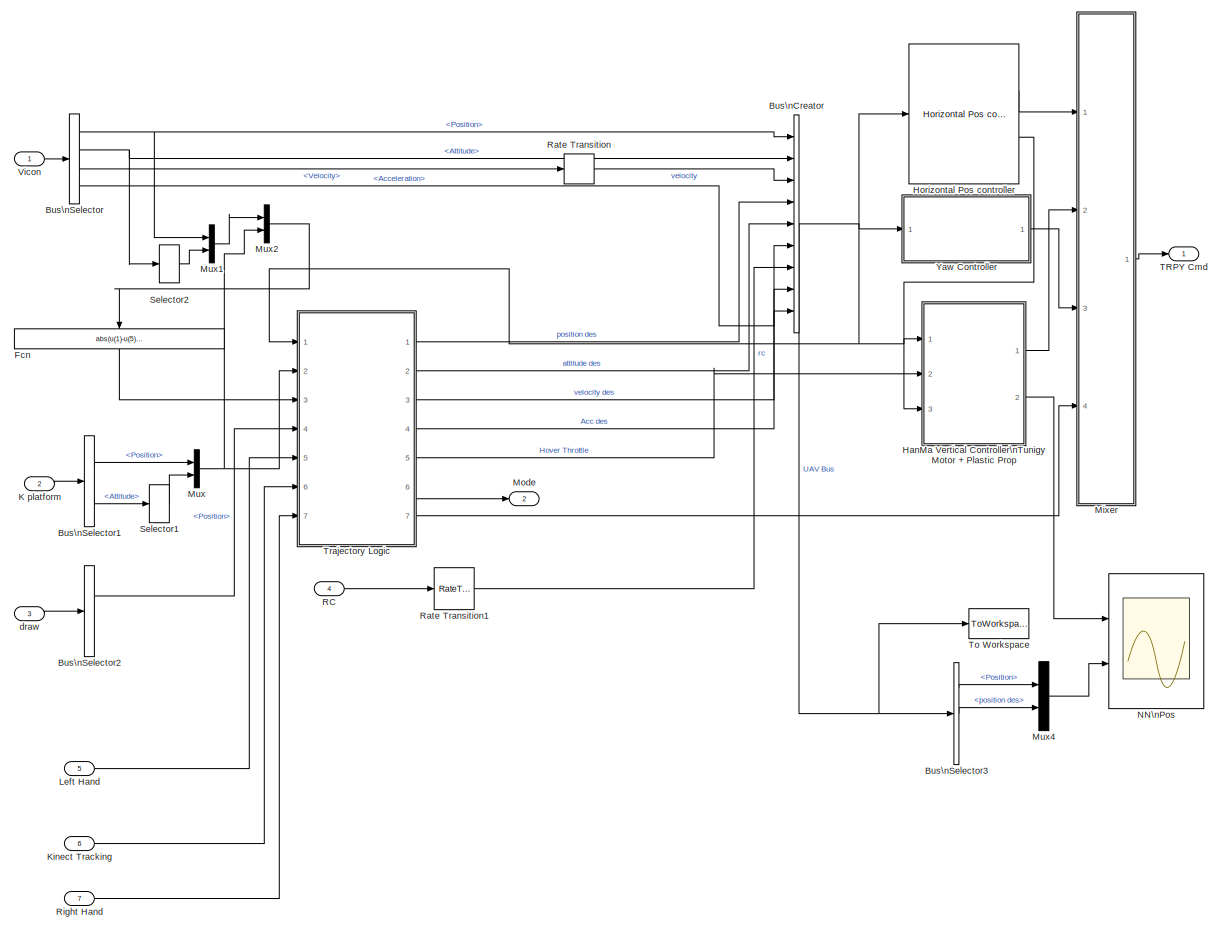
[diagram: Planning - part 1/1, most of the canvas]
BLOCK [SubSystem] Planning
  FunctionWithSeparateData = off
  MaskHideContents = off
  MinAlgLoopOccurrences = off
  Opaque = off
  Ports = [7, 2]
  PropExecContextOutsideSubsystem = off
  RTWSystemCode = Auto
  RequestExecContextInheritance = off
  SID = 1084
BLOCK [BusCreator] Planning/Bus\nCreator
  DisplayOption = bar
  Inputs = 9
  Ports = [9, 1]
  SID = 2
BLOCK [BusSelector] Planning/Bus\nSelector
  OutputSignals = Position,Attitude,Velocity,Acceleration
  Ports = [1, 4]
  SID = 1083
BLOCK [BusSelector] Planning/Bus\nSelector1
  OutputSignals = Position,Attitude
  Ports = [1, 2]
  SID = 1508
BLOCK [BusSelector] Planning/Bus\nSelector2
  OutputSignals = Position,Attitude
  Ports = [1, 2]
  SID = 2030
BLOCK [BusSelector] Planning/Bus\nSelector3
  OutputSignals = Position,position des,Attitude
  Ports = [1, 3]
  SID = 1767
BLOCK [Fcn] Planning/Fcn
  Expr = abs(u(1)-u(5)) + abs(u(2)-u(6))
  SID = 1515
BLOCK [SubSystem] Planning/HanMa Vertical Controller\nTunigy Motor + Plastic Prop
  FunctionWithSeparateData = off
  MaskCallbackString = |||
  MaskEnableString = on,on,on,on
  MaskHideContents = off
  MaskIconFrame = on
  MaskIconOpaque = on
  MaskIconRotate = none
  MaskIconUnits = autoscale
  MaskPortRotate = default
  MaskPromptString = Omega (P Gain  = Omega^2)|Zeta (D Gain = 2*Omega*Zeta)|I Gain|Mass
  MaskStyleString = edit,edit,edit,edit
  MaskTabNameString = Control Paramters,Control Paramters,Control Paramters,Mass
  MaskToolTipString = on,on,on,on
  MaskTunableValueString = on,on,on,on
  MaskValueString = Omega_h|Zeta_h|0|0.85
  MaskVariables = Omega_h=@1;Zeta_h=@2;PID_I_h=@3;mass=@4;
  MaskVisibilityString = on,on,on,on
  MinAlgLoopOccurrences = off
  Opaque = off
  Ports = [3, 2]
  PropExecContextOutsideSubsystem = off
  RTWSystemCode = Auto
  RequestExecContextInheritance = off
  SID = 2035
BLOCK [BusSelector] Planning/HanMa Vertical Controller\nTunigy Motor + Plastic Prop/Bus\nSelector
  OutputSignals = Position,position des,rc,velocity,velocity des,Acc des
  Ports = [1, 6]
  SID = 2039
BLOCK [BusSelector] Planning/HanMa Vertical Controller\nTunigy Motor + Plastic Prop/Bus\nSelector3
  OutputSignals = rc
  Ports = [1, 1]
  SID = 2040
BLOCK [Inport] Planning/HanMa Vertical Controller\nTunigy Motor + Plastic Prop/Hover Throttle
  IconDisplay = Port number
  Port = 2
  SID = 2037
BLOCK [Outport] Planning/HanMa Vertical Controller\nTunigy Motor + Plastic Prop/NN
  IconDisplay = Port number
  Port = 2
  SID = 2082
BLOCK [Selector] Planning/HanMa Vertical Controller\nTunigy Motor + Plastic Prop/Selector1
  IndexOptions = Index vector (dialog)
  Indices = [3]
  InputPortWidth = 3
  OutputSizes = 1
  Ports = [1, 1]
  SID = 2041
BLOCK [Selector] Planning/HanMa Vertical Controller\nTunigy Motor + Plastic Prop/Selector3
  IndexOptions = Index vector (dialog)
  Indices = [3]
  InputPortWidth = 3
  OutputSizes = 1
  Ports = [1, 1]
  SID = 2042
BLOCK [Selector] Planning/HanMa Vertical Controller\nTunigy Motor + Plastic Prop/Selector4
  IndexOptions = Index vector (dialog)
  Indices = [3]
  InputPortWidth = 3
  OutputSizes = 1
  Ports = [1, 1]
  SID = 2043
BLOCK [Selector] Planning/HanMa Vertical Controller\nTunigy Motor + Plastic Prop/Selector5
  IndexOptions = Index vector (dialog)
  Indices = [3]
  InputPortWidth = 3
  OutputSizes = 1
  Ports = [1, 1]
  SID = 2044
BLOCK [Selector] Planning/HanMa Vertical Controller\nTunigy Motor + Plastic Prop/Selector6
  IndexOptions = Index vector (dialog)
  Indices = [3]
  InputPortWidth = 4
  OutputSizes = 1
  Ports = [1, 1]
  SID = 2045
BLOCK [Selector] Planning/HanMa Vertical Controller\nTunigy Motor + Plastic Prop/Selector7
  IndexOptions = Index vector (dialog)
  Indices = [5]
  InputPortWidth = 8
  OutputSizes = 1
  Ports = [1, 1]
  SID = 2046
BLOCK [Sum] Planning/HanMa Vertical Controller\nTunigy Motor + Plastic Prop/Sum
  IconShape = round
  InputSameDT = off
  Inputs = |-+
  OutDataTypeStr = Inherit: Inherit via internal rule
  Ports = [2, 1]
  SID = 2047
  SaturateOnIntegerOverflow = off
BLOCK [Sum] Planning/HanMa Vertical Controller\nTunigy Motor + Plastic Prop/Sum1
  IconShape = round
  InputSameDT = off
  Inputs = |-+
  OutDataTypeStr = Inherit: Inherit via internal rule
  Ports = [2, 1]
  SID = 2048
  SaturateOnIntegerOverflow = off
BLOCK [Outport] Planning/HanMa Vertical Controller\nTunigy Motor + Plastic Prop/T
  IconDisplay = Port number
  SID = 2080
BLOCK [Inport] Planning/HanMa Vertical Controller\nTunigy Motor + Plastic Prop/UAV bus
  IconDisplay = Port number
  SID = 2036
BLOCK [SubSystem] Planning/HanMa Vertical Controller\nTunigy Motor + Plastic Prop/Verticall Pos Controller
  FunctionWithSeparateData = off
  MaskHideContents = off
  MinAlgLoopOccurrences = off
  Opaque = off
  Ports = [10, 2]
  PropExecContextOutsideSubsystem = off
  RTWSystemCode = Auto
  RequestExecContextInheritance = off
  SID = 2049
BLOCK [Inport] Planning/HanMa Vertical Controller\nTunigy Motor + Plastic Prop/Verticall Pos Controller/Acc des
  IconDisplay = Port number
  Port = 5
  SID = 2054
BLOCK [Gain] Planning/HanMa Vertical Controller\nTunigy Motor + Plastic Prop/Verticall Pos Controller/D Gain
  Gain = 2*Omega_h*Zeta_h
  OutDataTypeStr = double
  ParamDataTypeStr = Inherit: Inherit via internal rule
  SID = 2061
  SaturateOnIntegerOverflow = off
BLOCK [Fcn] Planning/HanMa Vertical Controller\nTunigy Motor + Plastic Prop/Verticall Pos Controller/Fcn1
  Expr = -0.04*c_y_tilt*u(1)
  SID = 2062
BLOCK [Fcn] Planning/HanMa Vertical Controller\nTunigy Motor + Plastic Prop/Verticall Pos Controller/Force --> Control
  Expr = -0.0004*(u(1)^2) + 0.0334*u(1) + 0.0717
  SID = 2064
BLOCK [Inport] Planning/HanMa Vertical Controller\nTunigy Motor + Plastic Prop/Verticall Pos Controller/Height
  IconDisplay = Port number
  Port = 8
  SID = 2057
BLOCK [Inport] Planning/HanMa Vertical Controller\nTunigy Motor + Plastic Prop/Verticall Pos Controller/Height\nRef
  IconDisplay = Port number
  Port = 7
  SID = 2056
BLOCK [Inport] Planning/HanMa Vertical Controller\nTunigy Motor + Plastic Prop/Verticall Pos Controller/Hover Throttle
  IconDisplay = Port number
  Port = 4
  SID = 2053
BLOCK [Gain] Planning/HanMa Vertical Controller\nTunigy Motor + Plastic Prop/Verticall Pos Controller/Integral Gain
  DisableCoverage = on
  Gain = PID_I_h
  OutDataTypeStr = double
  ParamDataTypeStr = double
  SID = 2065
  SaturateOnIntegerOverflow = off
BLOCK [DiscreteIntegrator] Planning/HanMa Vertical Controller\nTunigy Motor + Plastic Prop/Verticall Pos Controller/Integrator
  DisableCoverage = on
  ExternalReset = rising
  ICPrevOutput = DiscIntNeverNeededParam
  ICPrevScaledInput = DiscIntNeverNeededParam
  InitialConditionMode = State only (most efficient)
  InitialConditionSource = internal
  IntegratorMethod = Integration: Trapezoidal
  LowerSaturationLimit = -0.3
  OutDataTypeStr = double
  Ports = [2, 1]
  SID = 2066
  SampleTime = -1
  UpperSaturationLimit = 0.3
BLOCK [M-S-Function] Planning/HanMa Vertical Controller\nTunigy Motor + Plastic Prop/Verticall Pos Controller/Level-2 M-file\nS-Function
  FunctionName = msfcn_Adaptive_NN_HeightOnly
  MaskDisplay = fprintf('Output Feedback NN \\n Control Block')
  MaskIconFrame = on
  MaskIconOpaque = on
  MaskIconRotate = none
  MaskIconUnits = autoscale
  MaskPortRotate = default
  Parameters = n,r,n2,NN_ST,GAMA_V,gama_V_e,GAMA_W,gama_W_e,alpha,c_f,c_y_tilt,NN_Deadzone_Z,NN_Z_y_min,NN_Z_y_max,NN_Z_v_min,NN_Z_v_max
  Ports = [4, 4]
  SID = 2067
BLOCK [Gain] Planning/HanMa Vertical Controller\nTunigy Motor + Plastic Prop/Verticall Pos Controller/Mass
  DisableCoverage = on
  Gain = mass
  OutDataTypeStr = double
  ParamDataTypeStr = double
  SID = 2068
  SaturateOnIntegerOverflow = off
BLOCK [Mux] Planning/HanMa Vertical Controller\nTunigy Motor + Plastic Prop/Verticall Pos Controller/Mux
  DisplayOption = bar
  Inputs = 2
  Ports = [2, 1]
  SID = 2069
BLOCK [Mux] Planning/HanMa Vertical Controller\nTunigy Motor + Plastic Prop/Verticall Pos Controller/Mux1
  DisplayOption = bar
  Inputs = 2
  Ports = [2, 1]
  SID = 2070
BLOCK [Outport] Planning/HanMa Vertical Controller\nTunigy Motor + Plastic Prop/Verticall Pos Controller/NN
  IconDisplay = Port number
  Port = 2
  SID = 2081
BLOCK [Inport] Planning/HanMa Vertical Controller\nTunigy Motor + Plastic Prop/Verticall Pos Controller/Pos Error
  IconDisplay = Port number
  SID = 2050
BLOCK [Gain] Planning/HanMa Vertical Controller\nTunigy Motor + Plastic Prop/Verticall Pos Controller/Proportional Gain
  DisableCoverage = on
  Gain = Omega_h^2
  OutDataTypeStr = double
  ParamDataTypeStr = double
  SID = 2071
  SaturateOnIntegerOverflow = off
BLOCK [Inport] Planning/HanMa Vertical Controller\nTunigy Motor + Plastic Prop/Verticall Pos Controller/RC
  IconDisplay = Port number
  Port = 9
  SID = 2058
BLOCK [Inport] Planning/HanMa Vertical Controller\nTunigy Motor + Plastic Prop/Verticall Pos Controller/Reset
  IconDisplay = Port number
  Port = 2
  SID = 2051
BLOCK [Selector] Planning/HanMa Vertical Controller\nTunigy Motor + Plastic Prop/Verticall Pos Controller/Selector7
  IndexOptions = Index vector (dialog)
  Indices = [6]
  InputPortWidth = 8
  OutputSizes = 1
  Ports = [1, 1]
  SID = 2073
BLOCK [Sum] Planning/HanMa Vertical Controller\nTunigy Motor + Plastic Prop/Verticall Pos Controller/Sum1
  AccumDataTypeStr = double
  DisableCoverage = on
  IconShape = round
  InputSameDT = off
  Inputs = ----+|
  OutDataTypeStr = double
  Ports = [5, 1]
  SID = 2074
  SampleTime = 0.02
  SaturateOnIntegerOverflow = off
BLOCK [Sum] Planning/HanMa Vertical Controller\nTunigy Motor + Plastic Prop/Verticall Pos Controller/Sum2
  AccumDataTypeStr = double
  DisableCoverage = on
  IconShape = round
  InputSameDT = off
  Inputs = ++|
  OutDataTypeStr = double
  Ports = [2, 1]
  SID = 2075
  SampleTime = 0.02
  SaturateOnIntegerOverflow = off
BLOCK [Outport] Planning/HanMa Vertical Controller\nTunigy Motor + Plastic Prop/Verticall Pos Controller/T  Commands [0, 1]
  IconDisplay = Port number
  SID = 2079
BLOCK [Fcn] Planning/HanMa Vertical Controller\nTunigy Motor + Plastic Prop/Verticall Pos Controller/Total Acc des
  Expr = sqrt(u(1)^2+u(2)^2)
  SID = 2077
BLOCK [TransportDelay] Planning/HanMa Vertical Controller\nTunigy Motor + Plastic Prop/Verticall Pos Controller/Transport\nDelay
  DelayTime = 0.02
  Ports = [1, 1]
  SID = 2078
BLOCK [Inport] Planning/HanMa Vertical Controller\nTunigy Motor + Plastic Prop/Verticall Pos Controller/Vel
  IconDisplay = Port number
  Port = 10
  SID = 2059
BLOCK [Inport] Planning/HanMa Vertical Controller\nTunigy Motor + Plastic Prop/Verticall Pos Controller/Vel Error
  IconDisplay = Port number
  Port = 3
  SID = 2052
BLOCK [Inport] Planning/HanMa Vertical Controller\nTunigy Motor + Plastic Prop/Verticall Pos Controller/XY_Acc_d
  IconDisplay = Port number
  Port = 6
  SID = 2055
BLOCK [Inport] Planning/HanMa Vertical Controller\nTunigy Motor + Plastic Prop/XY_Acc_d
  IconDisplay = Port number
  Port = 3
  SID = 2038
BLOCK [Reference] Planning/Horizontal Pos controller  REF=X330_Control/Horizontal Pos controller
  FunctionWithSeparateData = off
  GeneratePreprocessorConditionals = off
  Max_RP = Max_RP
  Omega = Omega
  PID_i = 2
  Ports = [1, 2]
  RTWMemSecDataConstants = Inherit from model
  RTWMemSecDataInternal = Inherit from model
  RTWMemSecDataParameters = Inherit from model
  RTWMemSecFuncExecute = Inherit from model
  RTWMemSecFuncInitTerm = Inherit from model
  SID = 1970
  ShowPortLabels = FromPortIcon
  SourceBlock = X330_Control/Horizontal Pos controller
  SystemSampleTime = -1
  Zeta = Zeta
BLOCK [Inport] Planning/K platform
  IconDisplay = Port number
  Port = 2
  SID = 1088
BLOCK [Inport] Planning/Kinect Tracking
  IconDisplay = Port number
  Port = 6
  SID = 2721
BLOCK [Inport] Planning/Left Hand
  IconDisplay = Port number
  Port = 5
  SID = 2718
BLOCK [SubSystem] Planning/Mixer
  FunctionWithSeparateData = off
  MaskHideContents = off
  MinAlgLoopOccurrences = off
  Opaque = off
  Ports = [4, 1]
  PropExecContextOutsideSubsystem = off
  RTWSystemCode = Auto
  RequestExecContextInheritance = off
  SID = 60
BLOCK [Gain] Planning/Mixer/Gain
  Gain = 180/pi
  OutDataTypeStr = Inherit: Inherit via internal rule
  ParamDataTypeStr = Inherit: Inherit via internal rule
  SID = 1540
  SaturateOnIntegerOverflow = off
BLOCK [Reference] Planning/Mixer/Manual Switch  REF=simulink/Signal\nRouting/Manual Switch
  FunctionWithSeparateData = off
  GeneratePreprocessorConditionals = off
  Ports = [2, 1]
  RTWMemSecDataConstants = Inherit from model
  RTWMemSecDataInternal = Inherit from model
  RTWMemSecDataParameters = Inherit from model
  RTWMemSecFuncExecute = Inherit from model
  RTWMemSecFuncInitTerm = Inherit from model
  SID = 1434
  ShowPortLabels = FromPortIcon
  SourceBlock = simulink/Signal\nRouting/Manual Switch
  SourceType = Manual Switch
  SystemSampleTime = -1
  action = 0
  sw = 1
  varsize = off
BLOCK [Mux] Planning/Mixer/Mux1
  DisplayOption = bar
  Inputs = 5
  Ports = [5, 1]
  SID = 64
BLOCK [Inport] Planning/Mixer/PWM
  IconDisplay = Port number
  Port = 4
  SID = 1437
BLOCK [Constant] Planning/Mixer/PWM (1000-close; 2000-open)
  SID = 621
  SampleTime = 0.02
  Value = 1600
BLOCK [Constant] Planning/Mixer/PWM (1000-close; 2000-open)1
  SID = 1435
  SampleTime = 0.02
  Value = 1200
BLOCK [Inport] Planning/Mixer/RP
  IconDisplay = Port number
  SID = 61
BLOCK [Inport] Planning/Mixer/T
  IconDisplay = Port number
  Port = 2
  SID = 62
BLOCK [Outport] Planning/Mixer/XYZ\nRPY
  IconDisplay = Port number
  SID = 68
BLOCK [Inport] Planning/Mixer/Yaw rate
  IconDisplay = Port number
  Port = 3
  SID = 63
BLOCK [Fcn] Planning/Mixer/[-1, 1]
  Expr = u(1)*2-1
  SID = 1612
BLOCK [Constant] Planning/Mixer/id
  SID = 67
  SampleTime = 0.02
BLOCK [Outport] Planning/Mode
  IconDisplay = Port number
  Port = 2
  SID = 1089
BLOCK [Mux] Planning/Mux
  DisplayOption = bar
  Inputs = 2
  Ports = [2, 1]
  SID = 1509
BLOCK [Mux] Planning/Mux1
  DisplayOption = bar
  Inputs = 2
  Ports = [2, 1]
  SID = 1512
BLOCK [Mux] Planning/Mux2
  DisplayOption = bar
  Inputs = 2
  Ports = [2, 1]
  SID = 1514
BLOCK [Mux] Planning/Mux4
  DisplayOption = bar
  Inputs = 2
  Ports = [2, 1]
  SID = 1768
BLOCK [Scope] Planning/NN\nPos
  DataFormat = StructureWithTime
  Floating = off
  LimitDataPoints = off
  NumInputPorts = 2
  Ports = [2]
  SID = 2083
  SampleTime = 0
  SaveName = ScopeData3
  TimeRange = 10
  YMax = 10~0.25
  YMin = -10~-3.25
BLOCK [Inport] Planning/RC
  IconDisplay = Port number
  Port = 4
  SID = 1090
BLOCK [RateTransition] Planning/Rate Transition
  OutPortSampleTime = 0.02
  SID = 56
BLOCK [RateTransition] Planning/Rate Transition1
  OutPortSampleTime = 0.02
  SID = 57
BLOCK [Inport] Planning/Right Hand
  IconDisplay = Port number
  Port = 7
  SID = 3030
BLOCK [Selector] Planning/Selector1
  IndexOptions = Index vector (dialog)
  Indices = [3]
  InputPortWidth = 3
  OutputSizes = 1
  Ports = [1, 1]
  SID = 1510
BLOCK [Selector] Planning/Selector2
  IndexOptions = Index vector (dialog)
  Indices = [3]
  InputPortWidth = 3
  OutputSizes = 1
  Ports = [1, 1]
  SID = 1513
BLOCK [Outport] Planning/TRPY Cmd
  IconDisplay = Port number
  SID = 1086
BLOCK [ToWorkspace] Planning/To Workspace
  MaxDataPoints = inf
  Ports = [1]
  SID = 2024
  SampleTime = -1
  SaveFormat = Structure
  VariableName = MB_realtime
BLOCK [SubSystem] Planning/Trajectory Logic
  FunctionWithSeparateData = off
  MaskHideContents = off
  MinAlgLoopOccurrences = off
  Opaque = off
  Ports = [7, 7]
  PropExecContextOutsideSubsystem = off
  RTWSystemCode = Auto
  RequestExecContextInheritance = off
  SID = 573
BLOCK [Outport] Planning/Trajectory Logic/AccRef
  IconDisplay = Port number
  Port = 4
  SID = 577
BLOCK [BusSelector] Planning/Trajectory Logic/Bus\nSelector
  OutputSignals = rc,Position,Attitude
  Ports = [1, 3]
  SID = 583
BLOCK [Outport] Planning/Trajectory Logic/HoverThrottle
  IconDisplay = Port number
  Port = 5
  SID = 579
BLOCK [Inport] Planning/Trajectory Logic/K platform
  IconDisplay = Port number
  Port = 2
  SID = 580
BLOCK [Inport] Planning/Trajectory Logic/KinectTracking
  IconDisplay = Port number
  Port = 6
  SID = 2720
BLOCK [Inport] Planning/Trajectory Logic/Landing Error
  IconDisplay = Port number
  Port = 3
  SID = 1517
BLOCK [Inport] Planning/Trajectory Logic/Left Hand
  IconDisplay = Port number
  Port = 5
  SID = 2719
BLOCK [Outport] Planning/Trajectory Logic/Mode
  IconDisplay = Port number
  Port = 6
  SID = 581
BLOCK [Mux] Planning/Trajectory Logic/Mux
  DisplayOption = bar
  Inputs = 2
  Ports = [2, 1]
  SID = 593
BLOCK [Outport] Planning/Trajectory Logic/PWM
  IconDisplay = Port number
  Port = 7
  SID = 1436
BLOCK [Outport] Planning/Trajectory Logic/PosRef
  IconDisplay = Port number
  SID = 574
BLOCK [Reference] Planning/Trajectory Logic/PosRefSystem  REF=X330_Control/PosRefSystem
  Acc_Max = Acc_Max
  Acc_h_Max = Acc_Max_h
  FunctionWithSeparateData = off
  GeneratePreprocessorConditionals = off
  Omega_h_r = Omega_h_r
  Omega_r = Omega_r
  Ports = [1, 4]
  RTWMemSecDataConstants = Inherit from model
  RTWMemSecDataInternal = Inherit from model
  RTWMemSecDataParameters = Inherit from model
  RTWMemSecFuncExecute = Inherit from model
  RTWMemSecFuncInitTerm = Inherit from model
  SID = 2019
  ShowPortLabels = FromPortIcon
  SourceBlock = X330_Control/PosRefSystem
  SystemSampleTime = -1
  Zeta_h_r = Zeta_h_r
  Zeta_r = Zeta_r
BLOCK [Inport] Planning/Trajectory Logic/Right Hand
  IconDisplay = Port number
  Port = 7
  SID = 3031
BLOCK [Selector] Planning/Trajectory Logic/Selector1
  IndexOptions = Index vector (dialog)
  Indices = [3]
  InputPortWidth = 3
  OutputSizes = 1
  Ports = [1, 1]
  SID = 592
BLOCK [Inport] Planning/Trajectory Logic/UAV Bus
  IconDisplay = Port number
  SID = 582
BLOCK [SubSystem] Planning/Trajectory Logic/UAV SF
  ErrorFcn = Stateflow.Translate.translate
  FunctionWithSeparateData = off
  MaskDescription = Stateflow diagram
  MaskDisplay = plot(sf('Private','sfblk','xIcon'),sf('Private','sfblk','yIcon'));text(0.5,0,sf('Private', 'sfblk', 'tIcon'),'HorizontalAl','Center','VerticalAl','Bottom');
  MaskHideContents = off
  MaskIconFrame = off
  MaskIconOpaque = off
  MaskIconRotate = none
  MaskIconUnits = autoscale
  MaskPortRotate = default
  MaskSelfModifiable = on
  MaskType = Stateflow
  MinAlgLoopOccurrences = off
  Opaque = off
  PermitHierarchicalResolution = ExplicitOnly
  Ports = [8, 4]
  PropExecContextOutsideSubsystem = off
  RTWSystemCode = Auto
  RequestExecContextInheritance = off
  SID = 572
  TreatAsAtomicUnit = on
BLOCK [Demux] Planning/Trajectory Logic/UAV SF/ Demux 
  Outputs = 1
  Ports = [1, 1]
  SID = 572::8
BLOCK [S-Function] Planning/Trajectory Logic/UAV SF/ SFunction 
  EnableBusSupport = on
  FunctionName = sf_sfun
  Parameters = DeltaT,H0,Kl,PI
  PortCounts = [8 5]
  Ports = [8, 5]
  SID = 572::7
  Tag = Stateflow S-Function JX_Kinect5_deadzone 3
BLOCK [Terminator] Planning/Trajectory Logic/UAV SF/ Terminator 
  SID = 572::94
BLOCK [Outport] Planning/Trajectory Logic/UAV SF/HoverThrottle
  IconDisplay = Port number
  Port = 2
  SID = 572::17
BLOCK [Inport] Planning/Trajectory Logic/UAV SF/KinectTracking
  IconDisplay = Port number
  Port = 7
  SID = 572::99
BLOCK [Inport] Planning/Trajectory Logic/UAV SF/LeftHand
  IconDisplay = Port number
  Port = 6
  SID = 572::98
BLOCK [Outport] Planning/Trajectory Logic/UAV SF/Mode
  IconDisplay = Port number
  Port = 3
  SID = 572::18
BLOCK [Outport] Planning/Trajectory Logic/UAV SF/PWM
  IconDisplay = Port number
  Port = 4
  SID = 572::35
BLOCK [Inport] Planning/Trajectory Logic/UAV SF/PerchError
  IconDisplay = Port number
  Port = 4
  SID = 572::36
BLOCK [Inport] Planning/Trajectory Logic/UAV SF/PerchPos
  IconDisplay = Port number
  Port = 3
  SID = 572::23
BLOCK [Inport] Planning/Trajectory Logic/UAV SF/Pos
  IconDisplay = Port number
  Port = 2
  SID = 572::20
BLOCK [Outport] Planning/Trajectory Logic/UAV SF/PosDesired
  IconDisplay = Port number
  SID = 572::16
BLOCK [Inport] Planning/Trajectory Logic/UAV SF/RC
  IconDisplay = Port number
  SID = 572::70
BLOCK [Inport] Planning/Trajectory Logic/UAV SF/RightHand
  IconDisplay = Port number
  Port = 8
  SID = 572::100
BLOCK [Inport] Planning/Trajectory Logic/UAV SF/draw
  IconDisplay = Port number
  Port = 5
  SID = 572::41
BLOCK [Outport] Planning/Trajectory Logic/VelRef
  IconDisplay = Port number
  Port = 3
  SID = 575
BLOCK [Outport] Planning/Trajectory Logic/attitude des
  IconDisplay = Port number
  Port = 2
  SID = 591
BLOCK [Inport] Planning/Trajectory Logic/draw
  IconDisplay = Port number
  Port = 4
  SID = 1683
BLOCK [Inport] Planning/Vicon
  IconDisplay = Port number
  SID = 1085
BLOCK [SubSystem] Planning/Yaw Controller
  FunctionWithSeparateData = off
  MaskHideContents = off
  MinAlgLoopOccurrences = off
  Opaque = off
  Ports = [1, 1]
  PropExecContextOutsideSubsystem = off
  RTWSystemCode = Auto
  RequestExecContextInheritance = off
  SID = 328
BLOCK [BusSelector] Planning/Yaw Controller/Bus\nSelector1
  OutputSignals = Attitude,attitude des,rc
  Ports = [1, 3]
  SID = 330
BLOCK [Gain] Planning/Yaw Controller/Gain
  Gain = 180/pi
  OutDataTypeStr = Inherit: Inherit via internal rule
  ParamDataTypeStr = Inherit: Inherit via internal rule
  SID = 333
  SaturateOnIntegerOverflow = off
BLOCK [SubSystem] Planning/Yaw Controller/Heading
  AncestorBlock = simulink/Continuous/PID Controller
  DeleteFcn = pidpack.PIDConfig.closeTuner(gcbh)
  DialogController = pidpack.PIDConfig.pidDDGCreate
  DialogControllerArgs = DataTag0
  FunctionWithSeparateData = off
  MaskCallbackString = |||||||||||||||||||||||||||||||||||||||||||||||||||||||||||||||||||||||||||||||||||||||||||||||||||||
  MaskCapabilities = slmaskedcaps(gcbh)
  MaskDescription = This block implements continuous- and discrete-time PID control algorithms and includes advanced features such as anti-windup, external reset, and signal tracking. You can tune the PID gains automatically using the 'Tune...' button (requires Simulink Control Design).
  MaskDisplay = disp('PI(z)')\nport_label('input',1, '');\nport_label('output',1, '');plot([0 4 4 7]+2,[0 0 8 8]+8);\nplot([1 4 6]+2,[3 6 3]+8);\nplot([0 4 6 10]+32,[0 0 8 8]+18);\n
  MaskEnableString = on,on,on,on,on,on,on,on,on,on,on,on,on,on,on,on,on,off,off,off,off,off,on,off,on,on,on,on,on,on,on,on,on,on,on,on,on,on,on,on,on,on,on,on,on,on,on,on,on,on,on,on,on,on,on,on,on,on,on,on,on,on,on,on,on,on,on,on,on,on,on,on,on,on,on,on,on,on,on,on,on,on,on,on,on,on,on,on,on,on,on,on,on,on,off,off,off,on,on,off,off,off
  MaskHideContents = off
  MaskIconFrame = on
  MaskIconOpaque = on
  MaskIconRotate = none
  MaskIconUnits = pixels
  MaskInitialization = pidpack.PIDConfig.configPID(gcbh);
  MaskPortRotate = default
  MaskPromptString = Controller:|Time domain:|Sample time (-1 for inherited):|Integrator method:|Filter method:|Form:|Proportional (P):|Integral (I):|Derivative (D):|Filter coefficient (N):|Source:|Integrator:|Filter:|External reset:|Ignore reset when linearizing|Enable zero-crossing detection|Limit output|Upper saturation limit:|Lower saturation limit:|Ignore saturation when linearizing|Anti-windup method:|Back-calcu...<+1875ch>
  MaskRunInitForIconRedraw = on
  MaskSelfModifiable = on
  MaskStyleString = popup(PID|PI|PD|P|I),popup(Continuous-time|Discrete-time),edit,popup(Forward Euler|Backward Euler|Trapezoidal),popup(Forward Euler|Backward Euler|Trapezoidal),popup(Ideal|Parallel),edit,edit,edit,edit,popup(internal|external),edit,edit,popup(none|rising|falling|either|level),checkbox,checkbox,checkbox,edit,edit,checkbox,popup(none|back-calculation|clamping),edit,checkbox,edit,popup(Ceiling|Converg...<+6354ch>
  MaskToolTipString = on,on,on,on,on,on,on,on,on,on,on,on,on,on,on,on,on,on,on,on,on,on,on,on,on,on,on,on,on,on,on,on,on,on,on,on,on,on,on,on,on,on,on,on,on,on,on,on,on,on,on,on,on,on,on,on,on,on,on,on,on,on,on,on,on,on,on,on,on,on,on,on,on,on,on,on,on,on,on,on,on,on,on,on,on,on,on,on,on,on,on,on,on,on,on,on,on,on,on,on,on,on
  MaskTunableValueString = off,off,off,off,off,off,on,on,on,on,off,off,off,off,off,off,off,off,off,off,off,on,off,on,off,off,off,off,off,off,off,off,off,off,off,off,off,off,off,off,off,off,off,off,off,off,off,off,off,off,off,off,off,off,off,off,off,off,off,off,off,off,off,off,off,off,off,off,off,off,off,off,off,off,off,off,off,off,off,off,off,off,off,off,off,off,off,off,off,off,off,off,off,off,off,off,off,off,off,off,off,of...<+1ch>
  MaskType = PID 1dof
  MaskValueString = PI|Discrete-time|0.02|Trapezoidal|Trapezoidal|Parallel|3|1|0|100|internal|0|0|rising|off|on|on|300*pi/180|-300*pi/180|off|none|1|off|1|Floor|off|off|[]|[]|Inherit: Inherit via internal rule|[]|[]|Inherit: Inherit via internal rule|[]|[]|Inherit: Inherit via internal rule|[]|[]|Inherit: Inherit via internal rule|[]|[]|Inherit: Inherit via internal rule|[]|[]|Inherit: Inherit via internal rule|[]|[]...<+759ch>
  MaskVariables = Controller=&1;TimeDomain=&2;SampleTime=@3;IntegratorMethod=&4;FilterMethod=&5;Form=&6;P=@7;I=@8;D=@9;N=@10;InitialConditionSource=&11;InitialConditionForIntegrator=@12;InitialConditionForFilter=@13;ExternalReset=&14;IgnoreLimit=&15;ZeroCross=&16;LimitOutput=&17;UpperSaturationLimit=@18;LowerSaturationLimit=@19;LinearizeAsGain=&20;AntiWindupMode=&21;Kb=@22;TrackingMode=&23;Kt=@24;RndMeth=&25;Satura...<+1582ch>
  MaskVisibilityString = on,on,off,off,off,on,on,on,on,on,on,on,on,on,on,on,on,on,on,on,on,off,on,on,on,on,on,on,on,on,on,on,on,on,on,on,on,on,on,off,off,off,off,off,off,on,on,on,on,on,on,on,on,on,on,on,on,off,off,off,off,off,off,off,off,off,off,off,off,on,on,on,off,off,off,off,off,off,off,off,off,on,on,on,on,off,off,off,on,off,off,off,on,off,off,off,off,on,off,off,off,off
  MinAlgLoopOccurrences = off
  ModelCloseFcn = pidpack.PIDConfig.closeTuner(gcbh)
  NameChangeFcn = pidpack.PIDConfig.updateTunerName(gcbh)
  Opaque = off
  Ports = [2, 1]
  PropExecContextOutsideSubsystem = off
  RTWSystemCode = Auto
  RequestExecContextInheritance = off
  SID = 334
BLOCK [Gain] Planning/Yaw Controller/Heading/Integral Gain
  DisableCoverage = on
  Gain = I
  OutDataTypeStr = IOutDataTypeStr
  OutMax = IOutMax
  OutMin = IOutMin
  ParamDataTypeStr = IParamDataTypeStr
  ParamMax = IParamMax
  ParamMin = IParamMin
  SID = 334:1680
  SaturateOnIntegerOverflow = off
BLOCK [DiscreteIntegrator] Planning/Yaw Controller/Heading/Integrator
  DisableCoverage = on
  ExternalReset = rising
  ICPrevOutput = DiscIntNeverNeededParam
  ICPrevScaledInput = DiscIntNeverNeededParam
  InitialCondition = InitialConditionForIntegrator
  InitialConditionMode = State only (most efficient)
  InitialConditionSource = internal
  IntegratorMethod = Integration: Trapezoidal
  OutDataTypeStr = IntegratorOutDataTypeStr
  OutMax = IntegratorOutMax
  OutMin = IntegratorOutMin
  Ports = [2, 1]
  SID = 334:1681
  SampleTime = -1
BLOCK [Gain] Planning/Yaw Controller/Heading/Proportional Gain
  DisableCoverage = on
  Gain = P
  OutDataTypeStr = POutDataTypeStr
  OutMax = POutMax
  OutMin = POutMin
  ParamDataTypeStr = PParamDataTypeStr
  ParamMax = PParamMax
  ParamMin = PParamMin
  SID = 334:1679
  SaturateOnIntegerOverflow = off
BLOCK [Inport] Planning/Yaw Controller/Heading/RESET
  IconDisplay = Port number
  Port = 2
  SID = 334:1677
  SampleTime = SampleTime
BLOCK [Saturate] Planning/Yaw Controller/Heading/Saturation
  InputPortMap = u0
  LinearizeAsGain = off
  LowerLimit = LowerSaturationLimit
  OutDataTypeStr = SaturationOutDataTypeStr
  OutMax = SaturationOutMax
  OutMin = SaturationOutMin
  Ports = [1, 1]
  SID = 334:1682
  UpperLimit = UpperSaturationLimit
BLOCK [Sum] Planning/Yaw Controller/Heading/Sum
  AccumDataTypeStr = SumAccumDataTypeStr
  DisableCoverage = on
  IconShape = round
  InputSameDT = off
  Inputs = ++|
  OutDataTypeStr = SumOutDataTypeStr
  OutMax = SumOutMax
  OutMin = SumOutMin
  Ports = [2, 1]
  SID = 334:1678
  SaturateOnIntegerOverflow = off
BLOCK [Inport] Planning/Yaw Controller/Heading/u
  IconDisplay = Port number
  SID = 334:1
  SampleTime = SampleTime
BLOCK [Outport] Planning/Yaw Controller/Heading/y
  IconDisplay = Port number
  InitialOutput = 0
  SID = 334:10
BLOCK [SubSystem] Planning/Yaw Controller/MATLAB Function
  ErrorFcn = Stateflow.Translate.translate
  FunctionWithSeparateData = off
  MaskDescription = Embedded MATLAB block
  MaskDisplay = bgColor = Simulink.Root.ColorString2Rgb(get_param(gcbh, 'BackgroundColor')); image(imread('private/eml_membrane_16.png','png','BackgroundColor',bgColor(1:3)),'center'); disp([10 10 'fcn']);
  MaskHideContents = off
  MaskIconFrame = on
  MaskIconOpaque = off
  MaskIconRotate = none
  MaskIconUnits = normalized
  MaskPortRotate = default
  MaskSelfModifiable = on
  MaskType = Stateflow
  MinAlgLoopOccurrences = off
  Opaque = off
  PermitHierarchicalResolution = ExplicitOnly
  Ports = [1, 1]
  PropExecContextOutsideSubsystem = off
  RTWSystemCode = Auto
  RequestExecContextInheritance = off
  SID = 335
  TreatAsAtomicUnit = on
BLOCK [Demux] Planning/Yaw Controller/MATLAB Function/ Demux 
  Outputs = 1
  Ports = [1, 1]
  SID = 335::15
BLOCK [S-Function] Planning/Yaw Controller/MATLAB Function/ SFunction 
  EnableBusSupport = on
  FunctionName = sf_sfun
  PortCounts = [1 2]
  Ports = [1, 2]
  SID = 335::14
  Tag = Stateflow S-Function JX_Kinect5_deadzone 1
BLOCK [Terminator] Planning/Yaw Controller/MATLAB Function/ Terminator 
  SID = 335::17
BLOCK [Inport] Planning/Yaw Controller/MATLAB Function/u
  IconDisplay = Port number
  SID = 335::1
BLOCK [Outport] Planning/Yaw Controller/MATLAB Function/y
  IconDisplay = Port number
  SID = 335::5
BLOCK [Selector] Planning/Yaw Controller/Selector5
  IndexOptions = Index vector (dialog)
  Indices = [3]
  InputPortWidth = 3
  OutputSizes = 1
  Ports = [1, 1]
  SID = 336
BLOCK [Selector] Planning/Yaw Controller/Selector6
  IndexOptions = Index vector (dialog)
  Indices = [3]
  InputPortWidth = 3
  OutputSizes = 1
  Ports = [1, 1]
  SID = 337
BLOCK [Selector] Planning/Yaw Controller/Selector7
  IndexOptions = Index vector (dialog)
  Indices = [5]
  InputPortWidth = 8
  OutputSizes = 1
  Ports = [1, 1]
  SID = 338
BLOCK [Sum] Planning/Yaw Controller/Sum1
  IconShape = round
  InputSameDT = off
  Inputs = |-+
  OutDataTypeStr = Inherit: Inherit via internal rule
  Ports = [2, 1]
  SID = 339
  SaturateOnIntegerOverflow = off
BLOCK [Inport] Planning/Yaw Controller/UAV Bus
  IconDisplay = Port number
  SID = 329
BLOCK [Outport] Planning/Yaw Controller/Yaw rate des
  IconDisplay = Port number
  SID = 340
BLOCK [Inport] Planning/draw
  IconDisplay = Port number
  Port = 3
  SID = 1752
BLOCK [Display] RC Cmd\n[Channel 8 represents Thrust]
  Decimation = 1
  Lockdown = off
  Ports = [1]
  SID = 55
BLOCK [RateTransition] Rate Transition
  OutPortSampleTime = 0.02
  SID = 1518
BLOCK [RateTransition] Rate Transition1
  OutPortSampleTime = 0.02
  SID = 1519
BLOCK [RateTransition] Rate Transition2
  OutPortSampleTime = 0.02
  SID = 1751
BLOCK [RateTransition] Rate Transition3
  OutPortSampleTime = 0.02
  SID = 2725
BLOCK [RateTransition] Rate Transition4
  OutPortSampleTime = 0.02
  SID = 2726
BLOCK [RateTransition] Rate Transition5
  OutPortSampleTime = 0.02
  SID = 3029
BLOCK [SubSystem] Real-time\nClock
  FunctionWithSeparateData = off
  MaskCallbackString = |
  MaskDescription = Real-time Synchronization Block
  MaskDisplay = plot(0,0,100,100,[40,60,60,54,54,64,69,76,82,77,81,83,83,81,78,74,70,64,57,49,41,35,32,30,30,31,34,40,47,47,40,40],[90,90,85,85,80,79,76,87,80,70,64,57,49,41,33,28,24,22,21,23,25,31,37,46,56,65,73,78,80,85,85,90],[69,53,53],[64,50,73])
  MaskEnableString = on,on
  MaskHelp = This block synchronizes simulation time with the PC real-time clock or UNIX system clock. The first dialog entry is the period at which the clock is checked to insure real-time synchronization. The second dialog entry is the number of seconds that the simulation time must be within real-time before a warning is printed.
  MaskHideContents = off
  MaskIconFrame = on
  MaskIconOpaque = on
  MaskIconRotate = none
  MaskIconUnits = autoscale
  MaskPortRotate = default
  MaskPromptString = Synchronize with real-time every n seconds:|Real-time warning tolerance (seconds):
  MaskStyleString = edit,edit
  MaskToolTipString = on,on
  MaskTunableValueString = on,on
  MaskType = Real-time Clock
  MaskValueString = 0.02|1
  MaskVariables = sample_time=@1;tolerance=@2;
  MaskVisibilityString = on,on
  MinAlgLoopOccurrences = off
  Opaque = off
  Ports = []
  PropExecContextOutsideSubsystem = off
  RTWSystemCode = Auto
  RequestExecContextInheritance = off
  SID = 607
  ShowPortLabels = none
BLOCK [S-Function] Real-time\nClock/Real-time\nClock
  EnableBusSupport = off
  FunctionName = rtclock
  Parameters = sample_time, tolerance
  Ports = []
  SID = 608
BLOCK [Display] Right Hand
  Decimation = 1
  Lockdown = off
  Ports = [1]
  SID = 3163
BLOCK [SubSystem] Vicon_Data
  FunctionWithSeparateData = off
  MaskHideContents = off
  MinAlgLoopOccurrences = off
  Opaque = off
  Ports = [0, 3]
  PropExecContextOutsideSubsystem = off
  RTWSystemCode = Auto
  RequestExecContextInheritance = off
  SID = 1770
BLOCK [BusCreator] Vicon_Data/Bus\nCreator1
  DisplayOption = bar
  Ports = [4, 1]
  SID = 1771
BLOCK [BusCreator] Vicon_Data/Bus\nCreator7
  DisplayOption = bar
  Ports = [4, 1]
  SID = 1772
BLOCK [BusCreator] Vicon_Data/Bus\nCreator8
  DisplayOption = bar
  Ports = [4, 1]
  SID = 1773
BLOCK [Demux] Vicon_Data/Demux1
  DisplayOption = bar
  Outputs = 6
  Ports = [1, 6]
  SID = 1774
BLOCK [Demux] Vicon_Data/Demux7
  DisplayOption = bar
  Outputs = 6
  Ports = [1, 6]
  SID = 1775
BLOCK [Demux] Vicon_Data/Demux8
  DisplayOption = bar
  Outputs = 6
  Ports = [1, 6]
  SID = 1776
BLOCK [SubSystem] Vicon_Data/Filter1
  FunctionWithSeparateData = off
  MaskHideContents = off
  MinAlgLoopOccurrences = off
  Opaque = off
  Ports = [1, 3]
  PropExecContextOutsideSubsystem = off
  RTWSystemCode = Auto
  RequestExecContextInheritance = off
  SID = 1777
BLOCK [Outport] Vicon_Data/Filter1/Acc
  IconDisplay = Port number
  Port = 3
  SID = 1796
BLOCK [Gain] Vicon_Data/Filter1/Gain
  Gain = 15
  OutDataTypeStr = Inherit: Inherit via internal rule
  ParamDataTypeStr = Inherit: Inherit via internal rule
  SID = 1779
  SaturateOnIntegerOverflow = off
BLOCK [Gain] Vicon_Data/Filter1/Gain1
  Gain = 20
  OutDataTypeStr = Inherit: Inherit via internal rule
  ParamDataTypeStr = Inherit: Inherit via internal rule
  SID = 1780
  SaturateOnIntegerOverflow = off
BLOCK [Inport] Vicon_Data/Filter1/In1
  IconDisplay = Port number
  SID = 1778
BLOCK [Integrator] Vicon_Data/Filter1/Integrator
  Ports = [1, 1]
  SID = 1781
BLOCK [Integrator] Vicon_Data/Filter1/Integrator1
  Ports = [1, 1]
  SID = 1782
BLOCK [Reference] Vicon_Data/Filter1/Kalman Filter  REF=dspadpt3/Kalman Filter
  A = [1 sample_time sample_time*sample_time/2 zeros(1,6);0 1 sample_time zeros(1,6);0 0 1 zeros(1,6);0 0 0 1 sample_time sample_time*sample_time/2 0 0 0;zeros(1,4) 1 sample_time zeros(1,3);zeros(1,5) 1 zeros(1,3);zeros(1,6) 1 sample_time sample_time*sample_time/2;zeros(1,7) 1 sample_time;zeros(1,8) 1]
  FunctionWithSeparateData = off
  GeneratePreprocessorConditionals = off
  H = [1 zeros(1,8); zeros(1,3) 1 zeros(1,5);zeros(1,6) 1 0 0]
  P = zeros(9)
  Ports = [1, 2]
  Q = diag([0 0.001 0.001 0 0.001 0.001 0 0.001 0.001])
  R = 0.001*eye(3)
  RTWMemSecDataConstants = Inherit from model
  RTWMemSecDataInternal = Inherit from model
  RTWMemSecDataParameters = Inherit from model
  RTWMemSecFuncExecute = Inherit from model
  RTWMemSecFuncInitTerm = Inherit from model
  SID = 1783
  ShowPortLabels = FromPortIcon
  SourceBlock = dspadpt3/Kalman Filter
  SourceType = Kalman Filter
  SystemSampleTime = -1
  X = zeros([9, 1])
  isOutputEstError = off
  isOutputEstMeasure = on
  isOutputEstState = on
  isOutputPrdError = off
  isOutputPrdMeasure = off
  isOutputPrdState = off
  isReset = on
  num_targets = 1
  sourceEnable = Always
  sourceMeasure = Specify via Dialog
BLOCK [Mux] Vicon_Data/Filter1/Mux
  DisplayOption = bar
  Inputs = 2
  Ports = [2, 1]
  SID = 1784
BLOCK [Mux] Vicon_Data/Filter1/Mux1
  DisplayOption = bar
  Inputs = 2
  Ports = [2, 1]
  SID = 1785
BLOCK [Outport] Vicon_Data/Filter1/Pos
  IconDisplay = Port number
  SID = 1794
BLOCK [Selector] Vicon_Data/Filter1/Selector1
  IndexOptions = Index vector (dialog)
  Indices = [2]
  InputPortWidth = 3
  OutputSizes = 1
  Ports = [1, 1]
  SID = 1786
BLOCK [Selector] Vicon_Data/Filter1/Selector2
  IndexOptions = Index vector (dialog)
  Indices = [5]
  InputPortWidth = 9
  OutputSizes = 1
  Ports = [1, 1]
  SID = 1787
BLOCK [Selector] Vicon_Data/Filter1/Selector3
  IndexOptions = Index vector (dialog)
  Indices = [2]
  InputPortWidth = 3
  OutputSizes = 1
  Ports = [1, 1]
  SID = 1788
BLOCK [Selector] Vicon_Data/Filter1/Selector4
  IndexOptions = Index vector (dialog)
  Indices = [6]
  InputPortWidth = 9
  OutputSizes = 1
  Ports = [1, 1]
  SID = 1789
BLOCK [Selector] Vicon_Data/Filter1/Selector5
  IndexOptions = Index vector (dialog)
  Indices = [2 5 8]
  InputPortWidth = 9
  OutputSizes = 1
  Ports = [1, 1]
  SID = 1790
BLOCK [Selector] Vicon_Data/Filter1/Selector6
  IndexOptions = Index vector (dialog)
  Indices = [3 6 9]
  InputPortWidth = 9
  OutputSizes = 1
  Ports = [1, 1]
  SID = 1791
BLOCK [Sum] Vicon_Data/Filter1/Sum
  IconShape = round
  InputSameDT = off
  Inputs = |+-
  OutDataTypeStr = Inherit: Inherit via internal rule
  Ports = [2, 1]
  SID = 1792
  SaturateOnIntegerOverflow = off
BLOCK [Sum] Vicon_Data/Filter1/Sum1
  IconShape = round
  InputSameDT = off
  Inputs = |+-
  OutDataTypeStr = Inherit: Inherit via internal rule
  Ports = [2, 1]
  SID = 1793
  SaturateOnIntegerOverflow = off
BLOCK [Outport] Vicon_Data/Filter1/Vel
  IconDisplay = Port number
  Port = 2
  SID = 1795
BLOCK [SubSystem] Vicon_Data/Filter7
  FunctionWithSeparateData = off
  MaskHideContents = off
  MinAlgLoopOccurrences = off
  Opaque = off
  Ports = [1, 3]
  PropExecContextOutsideSubsystem = off
  RTWSystemCode = Auto
  RequestExecContextInheritance = off
  SID = 1797
BLOCK [Outport] Vicon_Data/Filter7/Acc
  IconDisplay = Port number
  Port = 2
  SID = 1804
BLOCK [Inport] Vicon_Data/Filter7/In1
  IconDisplay = Port number
  SID = 1798
BLOCK [Reference] Vicon_Data/Filter7/Kalman Filter  REF=dspadpt3/Kalman Filter
  A = [1 sample_time sample_time*sample_time/2 zeros(1,9);0 1 sample_time zeros(1,9);0 0 1 zeros(1,9);0 0 0 1 sample_time sample_time*sample_time/2 zeros(1,6);zeros(1,4) 1 sample_time zeros(1,6);zeros(1,5) 1 zeros(1,6);zeros(1,6) 1 sample_time sample_time*sample_time/2 zeros(1,3);zeros(1,7) 1 sample_time zeros(1,3);zeros(1,8) 1 zeros(1,3);zeros(1,9) 1 sample_time sample_time*sample_time/2;zeros(1,10) 1 ...<+27ch>
  FunctionWithSeparateData = off
  GeneratePreprocessorConditionals = off
  H = [1 zeros(1,11); zeros(1,3) 1 zeros(1,8);zeros(1,6) 1 zeros(1,5);zeros(1,9) 1 0 0]
  P = zeros(12)
  Ports = [1, 1]
  Q = diag([0 0.001 0.001 0 0.001 0.001 0 0.001 0.001 0 0.001 0.001]);
  R = diag([0.001 0.001 0.001 0.05])
  RTWMemSecDataConstants = Inherit from model
  RTWMemSecDataInternal = Inherit from model
  RTWMemSecDataParameters = Inherit from model
  RTWMemSecFuncExecute = Inherit from model
  RTWMemSecFuncInitTerm = Inherit from model
  SID = 1799
  ShowPortLabels = FromPortIcon
  SourceBlock = dspadpt3/Kalman Filter
  SourceType = Kalman Filter
  SystemSampleTime = -1
  X = zeros([12, 1])
  isOutputEstError = off
  isOutputEstMeasure = off
  isOutputEstState = on
  isOutputPrdError = off
  isOutputPrdMeasure = off
  isOutputPrdState = off
  isReset = on
  num_targets = 1
  sourceEnable = Always
  sourceMeasure = Specify via Dialog
BLOCK [Outport] Vicon_Data/Filter7/Psi
  IconDisplay = Port number
  Port = 3
  SID = 1805
BLOCK [Selector] Vicon_Data/Filter7/Selector1
  IndexOptions = Index vector (dialog)
  Indices = [10]
  InputPortWidth = 12
  OutputSizes = 1
  Ports = [1, 1]
  SID = 1800
BLOCK [Selector] Vicon_Data/Filter7/Selector5
  IndexOptions = Index vector (dialog)
  Indices = [2 5 8]
  InputPortWidth = 12
  OutputSizes = 1
  Ports = [1, 1]
  SID = 1801
BLOCK [Selector] Vicon_Data/Filter7/Selector6
  IndexOptions = Index vector (dialog)
  Indices = [3 6 9]
  InputPortWidth = 12
  OutputSizes = 1
  Ports = [1, 1]
  SID = 1802
BLOCK [Outport] Vicon_Data/Filter7/Vel
  IconDisplay = Port number
  SID = 1803
BLOCK [SubSystem] Vicon_Data/Filter8
  FunctionWithSeparateData = off
  MaskHideContents = off
  MinAlgLoopOccurrences = off
  Opaque = off
  Ports = [1, 3]
  PropExecContextOutsideSubsystem = off
  RTWSystemCode = Auto
  RequestExecContextInheritance = off
  SID = 1806
BLOCK [Outport] Vicon_Data/Filter8/Acc
  IconDisplay = Port number
  Port = 3
  SID = 1825
BLOCK [Gain] Vicon_Data/Filter8/Gain
  Gain = 15
  OutDataTypeStr = Inherit: Inherit via internal rule
  ParamDataTypeStr = Inherit: Inherit via internal rule
  SID = 1808
  SaturateOnIntegerOverflow = off
BLOCK [Gain] Vicon_Data/Filter8/Gain1
  Gain = 20
  OutDataTypeStr = Inherit: Inherit via internal rule
  ParamDataTypeStr = Inherit: Inherit via internal rule
  SID = 1809
  SaturateOnIntegerOverflow = off
BLOCK [Inport] Vicon_Data/Filter8/In1
  IconDisplay = Port number
  SID = 1807
BLOCK [Integrator] Vicon_Data/Filter8/Integrator
  Ports = [1, 1]
  SID = 1810
BLOCK [Integrator] Vicon_Data/Filter8/Integrator1
  Ports = [1, 1]
  SID = 1811
BLOCK [Reference] Vicon_Data/Filter8/Kalman Filter  REF=dspadpt3/Kalman Filter
  A = [1 sample_time sample_time*sample_time/2 zeros(1,6);0 1 sample_time zeros(1,6);0 0 1 zeros(1,6);0 0 0 1 sample_time sample_time*sample_time/2 0 0 0;zeros(1,4) 1 sample_time zeros(1,3);zeros(1,5) 1 zeros(1,3);zeros(1,6) 1 sample_time sample_time*sample_time/2;zeros(1,7) 1 sample_time;zeros(1,8) 1]
  FunctionWithSeparateData = off
  GeneratePreprocessorConditionals = off
  H = [1 zeros(1,8); zeros(1,3) 1 zeros(1,5);zeros(1,6) 1 0 0]
  P = zeros(9)
  Ports = [1, 2]
  Q = diag([0 0.001 0.001 0 0.001 0.001 0 0.001 0.001])
  R = 0.001*eye(3)
  RTWMemSecDataConstants = Inherit from model
  RTWMemSecDataInternal = Inherit from model
  RTWMemSecDataParameters = Inherit from model
  RTWMemSecFuncExecute = Inherit from model
  RTWMemSecFuncInitTerm = Inherit from model
  SID = 1812
  ShowPortLabels = FromPortIcon
  SourceBlock = dspadpt3/Kalman Filter
  SourceType = Kalman Filter
  SystemSampleTime = -1
  X = zeros([9, 1])
  isOutputEstError = off
  isOutputEstMeasure = on
  isOutputEstState = on
  isOutputPrdError = off
  isOutputPrdMeasure = off
  isOutputPrdState = off
  isReset = on
  num_targets = 1
  sourceEnable = Always
  sourceMeasure = Specify via Dialog
BLOCK [Mux] Vicon_Data/Filter8/Mux
  DisplayOption = bar
  Inputs = 2
  Ports = [2, 1]
  SID = 1813
BLOCK [Mux] Vicon_Data/Filter8/Mux1
  DisplayOption = bar
  Inputs = 2
  Ports = [2, 1]
  SID = 1814
BLOCK [Outport] Vicon_Data/Filter8/Pos
  IconDisplay = Port number
  SID = 1823
BLOCK [Selector] Vicon_Data/Filter8/Selector1
  IndexOptions = Index vector (dialog)
  Indices = [2]
  InputPortWidth = 3
  OutputSizes = 1
  Ports = [1, 1]
  SID = 1815
BLOCK [Selector] Vicon_Data/Filter8/Selector2
  IndexOptions = Index vector (dialog)
  Indices = [5]
  InputPortWidth = 9
  OutputSizes = 1
  Ports = [1, 1]
  SID = 1816
BLOCK [Selector] Vicon_Data/Filter8/Selector3
  IndexOptions = Index vector (dialog)
  Indices = [2]
  InputPortWidth = 3
  OutputSizes = 1
  Ports = [1, 1]
  SID = 1817
BLOCK [Selector] Vicon_Data/Filter8/Selector4
  IndexOptions = Index vector (dialog)
  Indices = [6]
  InputPortWidth = 9
  OutputSizes = 1
  Ports = [1, 1]
  SID = 1818
BLOCK [Selector] Vicon_Data/Filter8/Selector5
  IndexOptions = Index vector (dialog)
  Indices = [2 5 8]
  InputPortWidth = 9
  OutputSizes = 1
  Ports = [1, 1]
  SID = 1819
BLOCK [Selector] Vicon_Data/Filter8/Selector6
  IndexOptions = Index vector (dialog)
  Indices = [3 6 9]
  InputPortWidth = 9
  OutputSizes = 1
  Ports = [1, 1]
  SID = 1820
BLOCK [Sum] Vicon_Data/Filter8/Sum
  IconShape = round
  InputSameDT = off
  Inputs = |+-
  OutDataTypeStr = Inherit: Inherit via internal rule
  Ports = [2, 1]
  SID = 1821
  SaturateOnIntegerOverflow = off
BLOCK [Sum] Vicon_Data/Filter8/Sum1
  IconShape = round
  InputSameDT = off
  Inputs = |+-
  OutDataTypeStr = Inherit: Inherit via internal rule
  Ports = [2, 1]
  SID = 1822
  SaturateOnIntegerOverflow = off
BLOCK [Outport] Vicon_Data/Filter8/Vel
  IconDisplay = Port number
  Port = 2
  SID = 1824
BLOCK [Goto] Vicon_Data/Goto
  GotoTag = Psi_raw
  SID = 1826
  TagVisibility = global
BLOCK [Outport] Vicon_Data/K platform
  IconDisplay = Port number
  Port = 2
  SID = 1968
BLOCK [M-S-Function] Vicon_Data/Logic to fix signal loss \nand object local axis flip1
  FunctionName = Vicon_Filter
  Ports = [1, 1]
  SID = 1827
BLOCK [M-S-Function] Vicon_Data/Logic to fix signal loss \nand object local axis flip7
  FunctionName = Vicon_Filter
  Ports = [1, 1]
  SID = 1828
BLOCK [M-S-Function] Vicon_Data/Logic to fix signal loss \nand object local axis flip8
  FunctionName = Vicon_Filter
  Ports = [1, 1]
  SID = 1829
BLOCK [Mux] Vicon_Data/Mux
  DisplayOption = bar
  Inputs = 2
  Ports = [2, 1]
  SID = 1830
BLOCK [Mux] Vicon_Data/Mux1
  DisplayOption = bar
  Inputs = 2
  Ports = [2, 1]
  SID = 1831
BLOCK [Mux] Vicon_Data/Mux19
  DisplayOption = bar
  Inputs = 2
  Ports = [2, 1]
  SID = 1832
BLOCK [Mux] Vicon_Data/Mux2
  DisplayOption = bar
  Inputs = 2
  Ports = [2, 1]
  SID = 1833
BLOCK [Mux] Vicon_Data/Mux20
  DisplayOption = bar
  Inputs = 3
  Ports = [3, 1]
  SID = 1834
BLOCK [Mux] Vicon_Data/Mux21
  DisplayOption = bar
  Inputs = 3
  Ports = [3, 1]
  SID = 1835
BLOCK [Mux] Vicon_Data/Mux22
  DisplayOption = bar
  Inputs = 2
  Ports = [2, 1]
  SID = 1836
BLOCK [Mux] Vicon_Data/Mux23
  DisplayOption = bar
  Inputs = 3
  Ports = [3, 1]
  SID = 1837
BLOCK [Mux] Vicon_Data/Mux24
  DisplayOption = bar
  Inputs = 3
  Ports = [3, 1]
  SID = 1838
BLOCK [Mux] Vicon_Data/Mux3
  DisplayOption = bar
  Inputs = 3
  Ports = [3, 1]
  SID = 1839
BLOCK [Mux] Vicon_Data/Mux4
  DisplayOption = bar
  Inputs = 3
  Ports = [3, 1]
  SID = 1840
BLOCK [SubSystem] Vicon_Data/Raw Quad Pose from Vicon
  FunctionWithSeparateData = off
  MaskHideContents = off
  MinAlgLoopOccurrences = off
  Opaque = off
  Ports = [0, 6]
  PropExecContextOutsideSubsystem = off
  RTWSystemCode = Auto
  RequestExecContextInheritance = off
  SID = 1841
BLOCK [Outport] Vicon_Data/Raw Quad Pose from Vicon/Attitude_Vicon_JianXing
  IconDisplay = Port number
  Port = 2
  SID = 1960
BLOCK [Outport] Vicon_Data/Raw Quad Pose from Vicon/Attitude_Vicon_K platform
  IconDisplay = Port number
  Port = 4
  SID = 1962
BLOCK [Outport] Vicon_Data/Raw Quad Pose from Vicon/Attitude_Vicon_draw
  IconDisplay = Port number
  Port = 6
  SID = 1964
BLOCK [Constant] Vicon_Data/Raw Quad Pose from Vicon/Constant
  SID = 1842
BLOCK [Demux] Vicon_Data/Raw Quad Pose from Vicon/Demux
  DisplayOption = bar
  Outputs = 3
  Ports = [1, 3]
  SID = 1843
BLOCK [MATLABFcn] Vicon_Data/Raw Quad Pose from Vicon/Interpreted MATLAB\nFunction
  MATLABFcn = JXKinect05112013
  Ports = [1, 1]
  SID = 1844
BLOCK [Outport] Vicon_Data/Raw Quad Pose from Vicon/Position_Vicon_JianXing
  IconDisplay = Port number
  SID = 1959
BLOCK [Outport] Vicon_Data/Raw Quad Pose from Vicon/Position_Vicon_K platform
  IconDisplay = Port number
  Port = 3
  SID = 1961
BLOCK [Outport] Vicon_Data/Raw Quad Pose from Vicon/Position_Vicon_draw
  IconDisplay = Port number
  Port = 5
  SID = 1963
BLOCK [SubSystem] Vicon_Data/Raw Quad Pose from Vicon/Process Vicon Raw Data1
  FunctionWithSeparateData = off
  MaskHideContents = off
  MinAlgLoopOccurrences = off
  Opaque = off
  Ports = [1, 2]
  PropExecContextOutsideSubsystem = off
  RTWSystemCode = Auto
  RequestExecContextInheritance = off
  SID = 1845
BLOCK [Sum] Vicon_Data/Raw Quad Pose from Vicon/Process Vicon Raw Data1/Add1
  InputSameDT = off
  Inputs = -+
  OutDataTypeStr = Inherit: Inherit via internal rule
  Ports = [2, 1]
  SID = 1847
  SaturateOnIntegerOverflow = off
BLOCK [Outport] Vicon_Data/Raw Quad Pose from Vicon/Process Vicon Raw Data1/Attitude
  IconDisplay = Port number
  Port = 2
  SID = 1882
BLOCK [Constant] Vicon_Data/Raw Quad Pose from Vicon/Process Vicon Raw Data1/Constant1
  OutDataTypeStr = double
  SID = 1848
  Value = pi
BLOCK [Demux] Vicon_Data/Raw Quad Pose from Vicon/Process Vicon Raw Data1/Demux
  DisplayOption = bar
  Outputs = 6
  Ports = [1, 6]
  SID = 1849
BLOCK [SubSystem] Vicon_Data/Raw Quad Pose from Vicon/Process Vicon Raw Data1/Flip_pi1
  FunctionWithSeparateData = off
  MaskDescription = Flips the inputs into the range -pi to pi
  MaskDisplay = disp('Flip_pi')
  MaskHelp = Flips the inputs into the range -pi to pi
  MaskHideContents = off
  MaskIconFrame = on
  MaskIconOpaque = on
  MaskIconRotate = none
  MaskIconUnits = autoscale
  MaskPortRotate = default
  MaskType = Flip -pi to pi
  MinAlgLoopOccurrences = off
  Opaque = off
  Ports = [1, 1]
  PropExecContextOutsideSubsystem = off
  RTWSystemCode = Auto
  RequestExecContextInheritance = off
  SID = 1850
BLOCK [Sum] Vicon_Data/Raw Quad Pose from Vicon/Process Vicon Raw Data1/Flip_pi1/Add
  InputSameDT = off
  Inputs = -+
  OutDataTypeStr = Inherit: Inherit via internal rule
  Ports = [2, 1]
  SID = 1852
  SaturateOnIntegerOverflow = off
BLOCK [Inport] Vicon_Data/Raw Quad Pose from Vicon/Process Vicon Raw Data1/Flip_pi1/Angle
  IconDisplay = Port number
  SID = 1851
BLOCK [Outport] Vicon_Data/Raw Quad Pose from Vicon/Process Vicon Raw Data1/Flip_pi1/Angle_Flip
  IconDisplay = Port number
  SID = 1874
BLOCK [Reference] Vicon_Data/Raw Quad Pose from Vicon/Process Vicon Raw Data1/Flip_pi1/Compare\nTo Constant1  REF=simulink/Logic and Bit\nOperations/Compare\nTo Constant
  FunctionWithSeparateData = off
  GeneratePreprocessorConditionals = off
  LogicOutDataTypeMode = uint8
  Ports = [1, 1]
  RTWMemSecDataConstants = Inherit from model
  RTWMemSecDataInternal = Inherit from model
  RTWMemSecDataParameters = Inherit from model
  RTWMemSecFuncExecute = Inherit from model
  RTWMemSecFuncInitTerm = Inherit from model
  SID = 1853
  ShowPortLabels = FromPortIcon
  SourceBlock = simulink/Logic and Bit\nOperations/Compare\nTo Constant
  SourceType = Compare To Constant
  SystemSampleTime = -1
  ZeroCross = off
  const = pi
  relop = >
BLOCK [Constant] Vicon_Data/Raw Quad Pose from Vicon/Process Vicon Raw Data1/Flip_pi1/Constant
  SID = 1854
  Value = 2*pi
BLOCK [DataTypeDuplicate] Vicon_Data/Raw Quad Pose from Vicon/Process Vicon Raw Data1/Flip_pi1/Data Type\nDuplicate
  Ports = [2]
  SID = 1855
BLOCK [SubSystem] Vicon_Data/Raw Quad Pose from Vicon/Process Vicon Raw Data1/Flip_pi1/Flip_0_to_2pi
  FunctionWithSeparateData = off
  MaskDescription = Flips the inputs into the range zero to +2pi
  MaskDisplay = disp('Flip_0_2pi')
  MaskHelp = Flips the inputs into the range zero to +2pi
  MaskHideContents = off
  MaskIconFrame = on
  MaskIconOpaque = on
  MaskIconRotate = none
  MaskIconUnits = autoscale
  MaskPortRotate = default
  MaskType = Flip zero to 2pi
  MinAlgLoopOccurrences = off
  Opaque = off
  Ports = [1, 1]
  PropExecContextOutsideSubsystem = off
  RTWSystemCode = Auto
  RequestExecContextInheritance = off
  SID = 1856
BLOCK [Sum] Vicon_Data/Raw Quad Pose from Vicon/Process Vicon Raw Data1/Flip_pi1/Flip_0_to_2pi/Add
  InputSameDT = off
  OutDataTypeStr = Inherit: Inherit via internal rule
  Ports = [2, 1]
  SID = 1858
  SaturateOnIntegerOverflow = off
BLOCK [Inport] Vicon_Data/Raw Quad Pose from Vicon/Process Vicon Raw Data1/Flip_pi1/Flip_0_to_2pi/Angle
  IconDisplay = Port number
  SID = 1857
BLOCK [Outport] Vicon_Data/Raw Quad Pose from Vicon/Process Vicon Raw Data1/Flip_pi1/Flip_0_to_2pi/Angle_Flip
  IconDisplay = Port number
  SID = 1872
BLOCK [Reference] Vicon_Data/Raw Quad Pose from Vicon/Process Vicon Raw Data1/Flip_pi1/Flip_0_to_2pi/Compare\nTo Constant1  REF=simulink/Logic and Bit\nOperations/Compare\nTo Constant
  FunctionWithSeparateData = off
  GeneratePreprocessorConditionals = off
  LogicOutDataTypeMode = uint8
  Ports = [1, 1]
  RTWMemSecDataConstants = Inherit from model
  RTWMemSecDataInternal = Inherit from model
  RTWMemSecDataParameters = Inherit from model
  RTWMemSecFuncExecute = Inherit from model
  RTWMemSecFuncInitTerm = Inherit from model
  SID = 1859
  ShowPortLabels = FromPortIcon
  SourceBlock = simulink/Logic and Bit\nOperations/Compare\nTo Constant
  SourceType = Compare To Constant
  SystemSampleTime = -1
  ZeroCross = off
  const = 0
  relop = <
BLOCK [Constant] Vicon_Data/Raw Quad Pose from Vicon/Process Vicon Raw Data1/Flip_pi1/Flip_0_to_2pi/Constant
  SID = 1860
  Value = 2*pi
BLOCK [DataTypeDuplicate] Vicon_Data/Raw Quad Pose from Vicon/Process Vicon Raw Data1/Flip_pi1/Flip_0_to_2pi/Data Type\nDuplicate
  Ports = [2]
  SID = 1861
BLOCK [SubSystem] Vicon_Data/Raw Quad Pose from Vicon/Process Vicon Raw Data1/Flip_pi1/Flip_0_to_2pi/Flip_2pi
  FunctionWithSeparateData = off
  MaskDescription = Flips the inputs into the range -2pi to +2pi
  MaskDisplay = disp('Flip_2pi')
  MaskHelp = Flips the inputs into the range -2pi to +2pi
  MaskHideContents = off
  MaskIconFrame = on
  MaskIconOpaque = on
  MaskIconRotate = none
  MaskIconUnits = autoscale
  MaskPortRotate = default
  MaskType = Flip -2pi to 2pi
  MinAlgLoopOccurrences = off
  Opaque = off
  Ports = [1, 1]
  PropExecContextOutsideSubsystem = off
  RTWSystemCode = Auto
  RequestExecContextInheritance = off
  SID = 1862
BLOCK [Inport] Vicon_Data/Raw Quad Pose from Vicon/Process Vicon Raw Data1/Flip_pi1/Flip_0_to_2pi/Flip_2pi/Angle
  IconDisplay = Port number
  SID = 1863
BLOCK [Outport] Vicon_Data/Raw Quad Pose from Vicon/Process Vicon Raw Data1/Flip_pi1/Flip_0_to_2pi/Flip_2pi/Angle_Flip
  IconDisplay = Port number
  SID = 1870
BLOCK [Bias] Vicon_Data/Raw Quad Pose from Vicon/Process Vicon Raw Data1/Flip_pi1/Flip_0_to_2pi/Flip_2pi/Bias
  Bias = -2*pi
  SID = 1864
  SaturateOnIntegerOverflow = off
BLOCK [Constant] Vicon_Data/Raw Quad Pose from Vicon/Process Vicon Raw Data1/Flip_pi1/Flip_0_to_2pi/Flip_2pi/Constant
  SID = 1865
  Value = 2*pi
BLOCK [DataTypeDuplicate] Vicon_Data/Raw Quad Pose from Vicon/Process Vicon Raw Data1/Flip_pi1/Flip_0_to_2pi/Flip_2pi/Data Type\nDuplicate
  Ports = [2]
  SID = 1866
BLOCK [Math] Vicon_Data/Raw Quad Pose from Vicon/Process Vicon Raw Data1/Flip_pi1/Flip_0_to_2pi/Flip_2pi/Modulo
  Operator = mod
  Ports = [2, 1]
  SID = 1867
BLOCK [Signum] Vicon_Data/Raw Quad Pose from Vicon/Process Vicon Raw Data1/Flip_pi1/Flip_0_to_2pi/Flip_2pi/Sign1
  SID = 1868
BLOCK [Switch] Vicon_Data/Raw Quad Pose from Vicon/Process Vicon Raw Data1/Flip_pi1/Flip_0_to_2pi/Flip_2pi/Switch
  InputSameDT = off
  SID = 1869
  SaturateOnIntegerOverflow = off
BLOCK [Switch] Vicon_Data/Raw Quad Pose from Vicon/Process Vicon Raw Data1/Flip_pi1/Flip_0_to_2pi/Switch
  Criteria = u2 ~= 0
  InputSameDT = off
  SID = 1871
  SaturateOnIntegerOverflow = off
BLOCK [Switch] Vicon_Data/Raw Quad Pose from Vicon/Process Vicon Raw Data1/Flip_pi1/Switch
  Criteria = u2 ~= 0
  InputSameDT = off
  SID = 1873
  SaturateOnIntegerOverflow = off
BLOCK [Gain] Vicon_Data/Raw Quad Pose from Vicon/Process Vicon Raw Data1/Gain1
  Gain = 0.001
  OutDataTypeStr = Inherit: Inherit via internal rule
  ParamDataTypeStr = Inherit: Inherit via internal rule
  SID = 1875
  SaturateOnIntegerOverflow = off
BLOCK [Gain] Vicon_Data/Raw Quad Pose from Vicon/Process Vicon Raw Data1/Gain3
  Gain = -1
  OutDataTypeStr = Inherit: Inherit via internal rule
  ParamDataTypeStr = Inherit: Inherit via internal rule
  SID = 1876
  SaturateOnIntegerOverflow = off
BLOCK [Gain] Vicon_Data/Raw Quad Pose from Vicon/Process Vicon Raw Data1/Gain6
  Gain = -0.001
  OutDataTypeStr = Inherit: Inherit via internal rule
  ParamDataTypeStr = Inherit: Inherit via internal rule
  SID = 1877
  SaturateOnIntegerOverflow = off
BLOCK [Gain] Vicon_Data/Raw Quad Pose from Vicon/Process Vicon Raw Data1/Gain7
  Gain = -0.001
  OutDataTypeStr = Inherit: Inherit via internal rule
  ParamDataTypeStr = Inherit: Inherit via internal rule
  SID = 1878
  SaturateOnIntegerOverflow = off
BLOCK [Concatenate] Vicon_Data/Raw Quad Pose from Vicon/Process Vicon Raw Data1/Matrix\nConcatenate1
  Mode = Multidimensional array
  NumInputs = 3
  Ports = [3, 1]
  SID = 1879
BLOCK [Concatenate] Vicon_Data/Raw Quad Pose from Vicon/Process Vicon Raw Data1/Matrix\nConcatenate13
  Mode = Multidimensional array
  NumInputs = 3
  Ports = [3, 1]
  SID = 1880
BLOCK [Outport] Vicon_Data/Raw Quad Pose from Vicon/Process Vicon Raw Data1/Position
  IconDisplay = Port number
  SID = 1881
BLOCK [Inport] Vicon_Data/Raw Quad Pose from Vicon/Process Vicon Raw Data1/Vicon Raw
  IconDisplay = Port number
  SID = 1846
BLOCK [SubSystem] Vicon_Data/Raw Quad Pose from Vicon/Process Vicon Raw Data6
  FunctionWithSeparateData = off
  MaskHideContents = off
  MinAlgLoopOccurrences = off
  Opaque = off
  Ports = [1, 2]
  PropExecContextOutsideSubsystem = off
  RTWSystemCode = Auto
  RequestExecContextInheritance = off
  SID = 1883
BLOCK [Sum] Vicon_Data/Raw Quad Pose from Vicon/Process Vicon Raw Data6/Add1
  InputSameDT = off
  Inputs = -+
  OutDataTypeStr = Inherit: Inherit via internal rule
  Ports = [2, 1]
  SID = 1885
  SaturateOnIntegerOverflow = off
BLOCK [Outport] Vicon_Data/Raw Quad Pose from Vicon/Process Vicon Raw Data6/Attitude
  IconDisplay = Port number
  Port = 2
  SID = 1920
BLOCK [Constant] Vicon_Data/Raw Quad Pose from Vicon/Process Vicon Raw Data6/Constant1
  OutDataTypeStr = double
  SID = 1886
  Value = pi
BLOCK [Demux] Vicon_Data/Raw Quad Pose from Vicon/Process Vicon Raw Data6/Demux
  DisplayOption = bar
  Outputs = 6
  Ports = [1, 6]
  SID = 1887
BLOCK [SubSystem] Vicon_Data/Raw Quad Pose from Vicon/Process Vicon Raw Data6/Flip_pi1
  FunctionWithSeparateData = off
  MaskDescription = Flips the inputs into the range -pi to pi
  MaskDisplay = disp('Flip_pi')
  MaskHelp = Flips the inputs into the range -pi to pi
  MaskHideContents = off
  MaskIconFrame = on
  MaskIconOpaque = on
  MaskIconRotate = none
  MaskIconUnits = autoscale
  MaskPortRotate = default
  MaskType = Flip -pi to pi
  MinAlgLoopOccurrences = off
  Opaque = off
  Ports = [1, 1]
  PropExecContextOutsideSubsystem = off
  RTWSystemCode = Auto
  RequestExecContextInheritance = off
  SID = 1888
BLOCK [Sum] Vicon_Data/Raw Quad Pose from Vicon/Process Vicon Raw Data6/Flip_pi1/Add
  InputSameDT = off
  Inputs = -+
  OutDataTypeStr = Inherit: Inherit via internal rule
  Ports = [2, 1]
  SID = 1890
  SaturateOnIntegerOverflow = off
BLOCK [Inport] Vicon_Data/Raw Quad Pose from Vicon/Process Vicon Raw Data6/Flip_pi1/Angle
  IconDisplay = Port number
  SID = 1889
BLOCK [Outport] Vicon_Data/Raw Quad Pose from Vicon/Process Vicon Raw Data6/Flip_pi1/Angle_Flip
  IconDisplay = Port number
  SID = 1912
BLOCK [Reference] Vicon_Data/Raw Quad Pose from Vicon/Process Vicon Raw Data6/Flip_pi1/Compare\nTo Constant1  REF=simulink/Logic and Bit\nOperations/Compare\nTo Constant
  FunctionWithSeparateData = off
  GeneratePreprocessorConditionals = off
  LogicOutDataTypeMode = uint8
  Ports = [1, 1]
  RTWMemSecDataConstants = Inherit from model
  RTWMemSecDataInternal = Inherit from model
  RTWMemSecDataParameters = Inherit from model
  RTWMemSecFuncExecute = Inherit from model
  RTWMemSecFuncInitTerm = Inherit from model
  SID = 1891
  ShowPortLabels = FromPortIcon
  SourceBlock = simulink/Logic and Bit\nOperations/Compare\nTo Constant
  SourceType = Compare To Constant
  SystemSampleTime = -1
  ZeroCross = off
  const = pi
  relop = >
BLOCK [Constant] Vicon_Data/Raw Quad Pose from Vicon/Process Vicon Raw Data6/Flip_pi1/Constant
  SID = 1892
  Value = 2*pi
BLOCK [DataTypeDuplicate] Vicon_Data/Raw Quad Pose from Vicon/Process Vicon Raw Data6/Flip_pi1/Data Type\nDuplicate
  Ports = [2]
  SID = 1893
BLOCK [SubSystem] Vicon_Data/Raw Quad Pose from Vicon/Process Vicon Raw Data6/Flip_pi1/Flip_0_to_2pi
  FunctionWithSeparateData = off
  MaskDescription = Flips the inputs into the range zero to +2pi
  MaskDisplay = disp('Flip_0_2pi')
  MaskHelp = Flips the inputs into the range zero to +2pi
  MaskHideContents = off
  MaskIconFrame = on
  MaskIconOpaque = on
  MaskIconRotate = none
  MaskIconUnits = autoscale
  MaskPortRotate = default
  MaskType = Flip zero to 2pi
  MinAlgLoopOccurrences = off
  Opaque = off
  Ports = [1, 1]
  PropExecContextOutsideSubsystem = off
  RTWSystemCode = Auto
  RequestExecContextInheritance = off
  SID = 1894
BLOCK [Sum] Vicon_Data/Raw Quad Pose from Vicon/Process Vicon Raw Data6/Flip_pi1/Flip_0_to_2pi/Add
  InputSameDT = off
  OutDataTypeStr = Inherit: Inherit via internal rule
  Ports = [2, 1]
  SID = 1896
  SaturateOnIntegerOverflow = off
BLOCK [Inport] Vicon_Data/Raw Quad Pose from Vicon/Process Vicon Raw Data6/Flip_pi1/Flip_0_to_2pi/Angle
  IconDisplay = Port number
  SID = 1895
BLOCK [Outport] Vicon_Data/Raw Quad Pose from Vicon/Process Vicon Raw Data6/Flip_pi1/Flip_0_to_2pi/Angle_Flip
  IconDisplay = Port number
  SID = 1910
BLOCK [Reference] Vicon_Data/Raw Quad Pose from Vicon/Process Vicon Raw Data6/Flip_pi1/Flip_0_to_2pi/Compare\nTo Constant1  REF=simulink/Logic and Bit\nOperations/Compare\nTo Constant
  FunctionWithSeparateData = off
  GeneratePreprocessorConditionals = off
  LogicOutDataTypeMode = uint8
  Ports = [1, 1]
  RTWMemSecDataConstants = Inherit from model
  RTWMemSecDataInternal = Inherit from model
  RTWMemSecDataParameters = Inherit from model
  RTWMemSecFuncExecute = Inherit from model
  RTWMemSecFuncInitTerm = Inherit from model
  SID = 1897
  ShowPortLabels = FromPortIcon
  SourceBlock = simulink/Logic and Bit\nOperations/Compare\nTo Constant
  SourceType = Compare To Constant
  SystemSampleTime = -1
  ZeroCross = off
  const = 0
  relop = <
BLOCK [Constant] Vicon_Data/Raw Quad Pose from Vicon/Process Vicon Raw Data6/Flip_pi1/Flip_0_to_2pi/Constant
  SID = 1898
  Value = 2*pi
BLOCK [DataTypeDuplicate] Vicon_Data/Raw Quad Pose from Vicon/Process Vicon Raw Data6/Flip_pi1/Flip_0_to_2pi/Data Type\nDuplicate
  Ports = [2]
  SID = 1899
BLOCK [SubSystem] Vicon_Data/Raw Quad Pose from Vicon/Process Vicon Raw Data6/Flip_pi1/Flip_0_to_2pi/Flip_2pi
  FunctionWithSeparateData = off
  MaskDescription = Flips the inputs into the range -2pi to +2pi
  MaskDisplay = disp('Flip_2pi')
  MaskHelp = Flips the inputs into the range -2pi to +2pi
  MaskHideContents = off
  MaskIconFrame = on
  MaskIconOpaque = on
  MaskIconRotate = none
  MaskIconUnits = autoscale
  MaskPortRotate = default
  MaskType = Flip -2pi to 2pi
  MinAlgLoopOccurrences = off
  Opaque = off
  Ports = [1, 1]
  PropExecContextOutsideSubsystem = off
  RTWSystemCode = Auto
  RequestExecContextInheritance = off
  SID = 1900
BLOCK [Inport] Vicon_Data/Raw Quad Pose from Vicon/Process Vicon Raw Data6/Flip_pi1/Flip_0_to_2pi/Flip_2pi/Angle
  IconDisplay = Port number
  SID = 1901
BLOCK [Outport] Vicon_Data/Raw Quad Pose from Vicon/Process Vicon Raw Data6/Flip_pi1/Flip_0_to_2pi/Flip_2pi/Angle_Flip
  IconDisplay = Port number
  SID = 1908
BLOCK [Bias] Vicon_Data/Raw Quad Pose from Vicon/Process Vicon Raw Data6/Flip_pi1/Flip_0_to_2pi/Flip_2pi/Bias
  Bias = -2*pi
  SID = 1902
  SaturateOnIntegerOverflow = off
BLOCK [Constant] Vicon_Data/Raw Quad Pose from Vicon/Process Vicon Raw Data6/Flip_pi1/Flip_0_to_2pi/Flip_2pi/Constant
  SID = 1903
  Value = 2*pi
BLOCK [DataTypeDuplicate] Vicon_Data/Raw Quad Pose from Vicon/Process Vicon Raw Data6/Flip_pi1/Flip_0_to_2pi/Flip_2pi/Data Type\nDuplicate
  Ports = [2]
  SID = 1904
BLOCK [Math] Vicon_Data/Raw Quad Pose from Vicon/Process Vicon Raw Data6/Flip_pi1/Flip_0_to_2pi/Flip_2pi/Modulo
  Operator = mod
  Ports = [2, 1]
  SID = 1905
BLOCK [Signum] Vicon_Data/Raw Quad Pose from Vicon/Process Vicon Raw Data6/Flip_pi1/Flip_0_to_2pi/Flip_2pi/Sign1
  SID = 1906
BLOCK [Switch] Vicon_Data/Raw Quad Pose from Vicon/Process Vicon Raw Data6/Flip_pi1/Flip_0_to_2pi/Flip_2pi/Switch
  InputSameDT = off
  SID = 1907
  SaturateOnIntegerOverflow = off
BLOCK [Switch] Vicon_Data/Raw Quad Pose from Vicon/Process Vicon Raw Data6/Flip_pi1/Flip_0_to_2pi/Switch
  Criteria = u2 ~= 0
  InputSameDT = off
  SID = 1909
  SaturateOnIntegerOverflow = off
BLOCK [Switch] Vicon_Data/Raw Quad Pose from Vicon/Process Vicon Raw Data6/Flip_pi1/Switch
  Criteria = u2 ~= 0
  InputSameDT = off
  SID = 1911
  SaturateOnIntegerOverflow = off
BLOCK [Gain] Vicon_Data/Raw Quad Pose from Vicon/Process Vicon Raw Data6/Gain1
  Gain = 0.001
  OutDataTypeStr = Inherit: Inherit via internal rule
  ParamDataTypeStr = Inherit: Inherit via internal rule
  SID = 1913
  SaturateOnIntegerOverflow = off
BLOCK [Gain] Vicon_Data/Raw Quad Pose from Vicon/Process Vicon Raw Data6/Gain3
  Gain = -1
  OutDataTypeStr = Inherit: Inherit via internal rule
  ParamDataTypeStr = Inherit: Inherit via internal rule
  SID = 1914
  SaturateOnIntegerOverflow = off
BLOCK [Gain] Vicon_Data/Raw Quad Pose from Vicon/Process Vicon Raw Data6/Gain6
  Gain = -0.001
  OutDataTypeStr = Inherit: Inherit via internal rule
  ParamDataTypeStr = Inherit: Inherit via internal rule
  SID = 1915
  SaturateOnIntegerOverflow = off
BLOCK [Gain] Vicon_Data/Raw Quad Pose from Vicon/Process Vicon Raw Data6/Gain7
  Gain = -0.001
  OutDataTypeStr = Inherit: Inherit via internal rule
  ParamDataTypeStr = Inherit: Inherit via internal rule
  SID = 1916
  SaturateOnIntegerOverflow = off
BLOCK [Concatenate] Vicon_Data/Raw Quad Pose from Vicon/Process Vicon Raw Data6/Matrix\nConcatenate1
  Mode = Multidimensional array
  NumInputs = 3
  Ports = [3, 1]
  SID = 1917
BLOCK [Concatenate] Vicon_Data/Raw Quad Pose from Vicon/Process Vicon Raw Data6/Matrix\nConcatenate13
  Mode = Multidimensional array
  NumInputs = 3
  Ports = [3, 1]
  SID = 1918
BLOCK [Outport] Vicon_Data/Raw Quad Pose from Vicon/Process Vicon Raw Data6/Position
  IconDisplay = Port number
  SID = 1919
BLOCK [Inport] Vicon_Data/Raw Quad Pose from Vicon/Process Vicon Raw Data6/Vicon Raw
  IconDisplay = Port number
  SID = 1884
BLOCK [SubSystem] Vicon_Data/Raw Quad Pose from Vicon/Process Vicon Raw Data7
  FunctionWithSeparateData = off
  MaskHideContents = off
  MinAlgLoopOccurrences = off
  Opaque = off
  Ports = [1, 2]
  PropExecContextOutsideSubsystem = off
  RTWSystemCode = Auto
  RequestExecContextInheritance = off
  SID = 1921
BLOCK [Sum] Vicon_Data/Raw Quad Pose from Vicon/Process Vicon Raw Data7/Add1
  InputSameDT = off
  Inputs = -+
  OutDataTypeStr = Inherit: Inherit via internal rule
  Ports = [2, 1]
  SID = 1923
  SaturateOnIntegerOverflow = off
BLOCK [Outport] Vicon_Data/Raw Quad Pose from Vicon/Process Vicon Raw Data7/Attitude
  IconDisplay = Port number
  Port = 2
  SID = 1958
BLOCK [Constant] Vicon_Data/Raw Quad Pose from Vicon/Process Vicon Raw Data7/Constant1
  OutDataTypeStr = double
  SID = 1924
  Value = pi
BLOCK [Demux] Vicon_Data/Raw Quad Pose from Vicon/Process Vicon Raw Data7/Demux
  DisplayOption = bar
  Outputs = 6
  Ports = [1, 6]
  SID = 1925
BLOCK [SubSystem] Vicon_Data/Raw Quad Pose from Vicon/Process Vicon Raw Data7/Flip_pi1
  FunctionWithSeparateData = off
  MaskDescription = Flips the inputs into the range -pi to pi
  MaskDisplay = disp('Flip_pi')
  MaskHelp = Flips the inputs into the range -pi to pi
  MaskHideContents = off
  MaskIconFrame = on
  MaskIconOpaque = on
  MaskIconRotate = none
  MaskIconUnits = autoscale
  MaskPortRotate = default
  MaskType = Flip -pi to pi
  MinAlgLoopOccurrences = off
  Opaque = off
  Ports = [1, 1]
  PropExecContextOutsideSubsystem = off
  RTWSystemCode = Auto
  RequestExecContextInheritance = off
  SID = 1926
BLOCK [Sum] Vicon_Data/Raw Quad Pose from Vicon/Process Vicon Raw Data7/Flip_pi1/Add
  InputSameDT = off
  Inputs = -+
  OutDataTypeStr = Inherit: Inherit via internal rule
  Ports = [2, 1]
  SID = 1928
  SaturateOnIntegerOverflow = off
BLOCK [Inport] Vicon_Data/Raw Quad Pose from Vicon/Process Vicon Raw Data7/Flip_pi1/Angle
  IconDisplay = Port number
  SID = 1927
BLOCK [Outport] Vicon_Data/Raw Quad Pose from Vicon/Process Vicon Raw Data7/Flip_pi1/Angle_Flip
  IconDisplay = Port number
  SID = 1950
BLOCK [Reference] Vicon_Data/Raw Quad Pose from Vicon/Process Vicon Raw Data7/Flip_pi1/Compare\nTo Constant1  REF=simulink/Logic and Bit\nOperations/Compare\nTo Constant
  FunctionWithSeparateData = off
  GeneratePreprocessorConditionals = off
  LogicOutDataTypeMode = uint8
  Ports = [1, 1]
  RTWMemSecDataConstants = Inherit from model
  RTWMemSecDataInternal = Inherit from model
  RTWMemSecDataParameters = Inherit from model
  RTWMemSecFuncExecute = Inherit from model
  RTWMemSecFuncInitTerm = Inherit from model
  SID = 1929
  ShowPortLabels = FromPortIcon
  SourceBlock = simulink/Logic and Bit\nOperations/Compare\nTo Constant
  SourceType = Compare To Constant
  SystemSampleTime = -1
  ZeroCross = off
  const = pi
  relop = >
BLOCK [Constant] Vicon_Data/Raw Quad Pose from Vicon/Process Vicon Raw Data7/Flip_pi1/Constant
  SID = 1930
  Value = 2*pi
BLOCK [DataTypeDuplicate] Vicon_Data/Raw Quad Pose from Vicon/Process Vicon Raw Data7/Flip_pi1/Data Type\nDuplicate
  Ports = [2]
  SID = 1931
BLOCK [SubSystem] Vicon_Data/Raw Quad Pose from Vicon/Process Vicon Raw Data7/Flip_pi1/Flip_0_to_2pi
  FunctionWithSeparateData = off
  MaskDescription = Flips the inputs into the range zero to +2pi
  MaskDisplay = disp('Flip_0_2pi')
  MaskHelp = Flips the inputs into the range zero to +2pi
  MaskHideContents = off
  MaskIconFrame = on
  MaskIconOpaque = on
  MaskIconRotate = none
  MaskIconUnits = autoscale
  MaskPortRotate = default
  MaskType = Flip zero to 2pi
  MinAlgLoopOccurrences = off
  Opaque = off
  Ports = [1, 1]
  PropExecContextOutsideSubsystem = off
  RTWSystemCode = Auto
  RequestExecContextInheritance = off
  SID = 1932
BLOCK [Sum] Vicon_Data/Raw Quad Pose from Vicon/Process Vicon Raw Data7/Flip_pi1/Flip_0_to_2pi/Add
  InputSameDT = off
  OutDataTypeStr = Inherit: Inherit via internal rule
  Ports = [2, 1]
  SID = 1934
  SaturateOnIntegerOverflow = off
BLOCK [Inport] Vicon_Data/Raw Quad Pose from Vicon/Process Vicon Raw Data7/Flip_pi1/Flip_0_to_2pi/Angle
  IconDisplay = Port number
  SID = 1933
BLOCK [Outport] Vicon_Data/Raw Quad Pose from Vicon/Process Vicon Raw Data7/Flip_pi1/Flip_0_to_2pi/Angle_Flip
  IconDisplay = Port number
  SID = 1948
BLOCK [Reference] Vicon_Data/Raw Quad Pose from Vicon/Process Vicon Raw Data7/Flip_pi1/Flip_0_to_2pi/Compare\nTo Constant1  REF=simulink/Logic and Bit\nOperations/Compare\nTo Constant
  FunctionWithSeparateData = off
  GeneratePreprocessorConditionals = off
  LogicOutDataTypeMode = uint8
  Ports = [1, 1]
  RTWMemSecDataConstants = Inherit from model
  RTWMemSecDataInternal = Inherit from model
  RTWMemSecDataParameters = Inherit from model
  RTWMemSecFuncExecute = Inherit from model
  RTWMemSecFuncInitTerm = Inherit from model
  SID = 1935
  ShowPortLabels = FromPortIcon
  SourceBlock = simulink/Logic and Bit\nOperations/Compare\nTo Constant
  SourceType = Compare To Constant
  SystemSampleTime = -1
  ZeroCross = off
  const = 0
  relop = <
BLOCK [Constant] Vicon_Data/Raw Quad Pose from Vicon/Process Vicon Raw Data7/Flip_pi1/Flip_0_to_2pi/Constant
  SID = 1936
  Value = 2*pi
BLOCK [DataTypeDuplicate] Vicon_Data/Raw Quad Pose from Vicon/Process Vicon Raw Data7/Flip_pi1/Flip_0_to_2pi/Data Type\nDuplicate
  Ports = [2]
  SID = 1937
BLOCK [SubSystem] Vicon_Data/Raw Quad Pose from Vicon/Process Vicon Raw Data7/Flip_pi1/Flip_0_to_2pi/Flip_2pi
  FunctionWithSeparateData = off
  MaskDescription = Flips the inputs into the range -2pi to +2pi
  MaskDisplay = disp('Flip_2pi')
  MaskHelp = Flips the inputs into the range -2pi to +2pi
  MaskHideContents = off
  MaskIconFrame = on
  MaskIconOpaque = on
  MaskIconRotate = none
  MaskIconUnits = autoscale
  MaskPortRotate = default
  MaskType = Flip -2pi to 2pi
  MinAlgLoopOccurrences = off
  Opaque = off
  Ports = [1, 1]
  PropExecContextOutsideSubsystem = off
  RTWSystemCode = Auto
  RequestExecContextInheritance = off
  SID = 1938
BLOCK [Inport] Vicon_Data/Raw Quad Pose from Vicon/Process Vicon Raw Data7/Flip_pi1/Flip_0_to_2pi/Flip_2pi/Angle
  IconDisplay = Port number
  SID = 1939
BLOCK [Outport] Vicon_Data/Raw Quad Pose from Vicon/Process Vicon Raw Data7/Flip_pi1/Flip_0_to_2pi/Flip_2pi/Angle_Flip
  IconDisplay = Port number
  SID = 1946
BLOCK [Bias] Vicon_Data/Raw Quad Pose from Vicon/Process Vicon Raw Data7/Flip_pi1/Flip_0_to_2pi/Flip_2pi/Bias
  Bias = -2*pi
  SID = 1940
  SaturateOnIntegerOverflow = off
BLOCK [Constant] Vicon_Data/Raw Quad Pose from Vicon/Process Vicon Raw Data7/Flip_pi1/Flip_0_to_2pi/Flip_2pi/Constant
  SID = 1941
  Value = 2*pi
BLOCK [DataTypeDuplicate] Vicon_Data/Raw Quad Pose from Vicon/Process Vicon Raw Data7/Flip_pi1/Flip_0_to_2pi/Flip_2pi/Data Type\nDuplicate
  Ports = [2]
  SID = 1942
BLOCK [Math] Vicon_Data/Raw Quad Pose from Vicon/Process Vicon Raw Data7/Flip_pi1/Flip_0_to_2pi/Flip_2pi/Modulo
  Operator = mod
  Ports = [2, 1]
  SID = 1943
BLOCK [Signum] Vicon_Data/Raw Quad Pose from Vicon/Process Vicon Raw Data7/Flip_pi1/Flip_0_to_2pi/Flip_2pi/Sign1
  SID = 1944
BLOCK [Switch] Vicon_Data/Raw Quad Pose from Vicon/Process Vicon Raw Data7/Flip_pi1/Flip_0_to_2pi/Flip_2pi/Switch
  InputSameDT = off
  SID = 1945
  SaturateOnIntegerOverflow = off
BLOCK [Switch] Vicon_Data/Raw Quad Pose from Vicon/Process Vicon Raw Data7/Flip_pi1/Flip_0_to_2pi/Switch
  Criteria = u2 ~= 0
  InputSameDT = off
  SID = 1947
  SaturateOnIntegerOverflow = off
BLOCK [Switch] Vicon_Data/Raw Quad Pose from Vicon/Process Vicon Raw Data7/Flip_pi1/Switch
  Criteria = u2 ~= 0
  InputSameDT = off
  SID = 1949
  SaturateOnIntegerOverflow = off
BLOCK [Gain] Vicon_Data/Raw Quad Pose from Vicon/Process Vicon Raw Data7/Gain1
  Gain = 0.001
  OutDataTypeStr = Inherit: Inherit via internal rule
  ParamDataTypeStr = Inherit: Inherit via internal rule
  SID = 1951
  SaturateOnIntegerOverflow = off
BLOCK [Gain] Vicon_Data/Raw Quad Pose from Vicon/Process Vicon Raw Data7/Gain3
  Gain = -1
  OutDataTypeStr = Inherit: Inherit via internal rule
  ParamDataTypeStr = Inherit: Inherit via internal rule
  SID = 1952
  SaturateOnIntegerOverflow = off
BLOCK [Gain] Vicon_Data/Raw Quad Pose from Vicon/Process Vicon Raw Data7/Gain6
  Gain = -0.001
  OutDataTypeStr = Inherit: Inherit via internal rule
  ParamDataTypeStr = Inherit: Inherit via internal rule
  SID = 1953
  SaturateOnIntegerOverflow = off
BLOCK [Gain] Vicon_Data/Raw Quad Pose from Vicon/Process Vicon Raw Data7/Gain7
  Gain = -0.001
  OutDataTypeStr = Inherit: Inherit via internal rule
  ParamDataTypeStr = Inherit: Inherit via internal rule
  SID = 1954
  SaturateOnIntegerOverflow = off
BLOCK [Concatenate] Vicon_Data/Raw Quad Pose from Vicon/Process Vicon Raw Data7/Matrix\nConcatenate1
  Mode = Multidimensional array
  NumInputs = 3
  Ports = [3, 1]
  SID = 1955
BLOCK [Concatenate] Vicon_Data/Raw Quad Pose from Vicon/Process Vicon Raw Data7/Matrix\nConcatenate13
  Mode = Multidimensional array
  NumInputs = 3
  Ports = [3, 1]
  SID = 1956
BLOCK [Outport] Vicon_Data/Raw Quad Pose from Vicon/Process Vicon Raw Data7/Position
  IconDisplay = Port number
  SID = 1957
BLOCK [Inport] Vicon_Data/Raw Quad Pose from Vicon/Process Vicon Raw Data7/Vicon Raw
  IconDisplay = Port number
  SID = 1922
BLOCK [Selector] Vicon_Data/Selector1
  IndexOptions = Index vector (dialog)
  Indices = [1 2]
  InputPortWidth = 3
  OutputSizes = 1
  Ports = [1, 1]
  SID = 1965
BLOCK [Selector] Vicon_Data/Selector2
  IndexOptions = Index vector (dialog)
  Indices = [3]
  InputPortWidth = 3
  OutputSizes = 1
  Ports = [1, 1]
  SID = 1966
BLOCK [Outport] Vicon_Data/draw
  IconDisplay = Port number
  Port = 3
  SID = 1969
BLOCK [Outport] Vicon_Data/jx
  IconDisplay = Port number
  SID = 1967
BLOCK [Scope] rc
  DataFormat = StructureWithTime
  Floating = off
  LimitDataPoints = off
  NumInputPorts = 1
  Ports = [1]
  SID = 1363
  SampleTime = 0
  SaveName = ScopeData1
  TimeRange = 10
  YMax = 0.1
  YMin = -1
ANNOTATION (root): Initialization\n(Connect to Vicon)
ANNOTATION Kinect: Enable Signal
ANNOTATION Planning/HanMa Vertical Controller\nTunigy Motor + Plastic Prop: Manual Thrust
ANNOTATION Planning/Mixer: 7x1 vector (usec, XYZRPY)
ANNOTATION Vicon_Data: Process Vicon Raw Data to take care of signal loss and object local axis flip
ANNOTATION Vicon_Data/Raw Quad Pose from Vicon/Process Vicon Raw Data1: X
ANNOTATION Vicon_Data/Raw Quad Pose from Vicon/Process Vicon Raw Data1: Y
ANNOTATION Vicon_Data/Raw Quad Pose from Vicon/Process Vicon Raw Data1: Z
ANNOTATION Vicon_Data/Raw Quad Pose from Vicon/Process Vicon Raw Data6: X
ANNOTATION Vicon_Data/Raw Quad Pose from Vicon/Process Vicon Raw Data6: Y
ANNOTATION Vicon_Data/Raw Quad Pose from Vicon/Process Vicon Raw Data6: Z
ANNOTATION Vicon_Data/Raw Quad Pose from Vicon/Process Vicon Raw Data7: X
ANNOTATION Vicon_Data/Raw Quad Pose from Vicon/Process Vicon Raw Data7: Y
ANNOTATION Vicon_Data/Raw Quad Pose from Vicon/Process Vicon Raw Data7: Z
LINE From:1 -> Planning:4
LINE Kinect/From1:1 -> Kinect/Neck idx:1
LINE Kinect/From2:1 -> Kinect/R shoulder idx:1
LINE Kinect/From3:1 -> Kinect/R elbow idx:1
LINE Kinect/From4:1 -> Kinect/R hand idx:1
LINE Kinect/From5:1 -> Kinect/L hand idx:1
LINE Kinect/From6:1 -> Kinect/L elbow idx:1
LINE Kinect/From7:1 -> Kinect/L shoulder idx:1
LINE Kinect/From:1 -> Kinect/Head idx:1
LINE Kinect/Head idx/Kinect SDK:1 -> Kinect/Head idx/Switch:1
LINE Kinect/Head idx/OpenNI:1 -> Kinect/Head idx/Switch:3
LINE Kinect/Head idx/SDK:1 -> Kinect/Head idx/Switch:2
LINE Kinect/Head idx/Switch:1 -> Kinect/Head idx/Idx:1
LINE Kinect/Head idx:1 -> Kinect/Selector:2
LINE Kinect/L elbow idx/Kinect SDK:1 -> Kinect/L elbow idx/Switch:1
LINE Kinect/L elbow idx/OpenNI:1 -> Kinect/L elbow idx/Switch:3
LINE Kinect/L elbow idx/SDK:1 -> Kinect/L elbow idx/Switch:2
LINE Kinect/L elbow idx/Switch:1 -> Kinect/L elbow idx/Idx:1
LINE Kinect/L elbow idx:1 -> Kinect/Selector6:2
LINE Kinect/L hand idx/Kinect SDK:1 -> Kinect/L hand idx/Switch:1
LINE Kinect/L hand idx/OpenNI:1 -> Kinect/L hand idx/Switch:3
LINE Kinect/L hand idx/SDK:1 -> Kinect/L hand idx/Switch:2
LINE Kinect/L hand idx/Switch:1 -> Kinect/L hand idx/Idx:1
LINE Kinect/L hand idx:1 -> Kinect/Selector5:2
LINE Kinect/L shoulder idx/Kinect SDK:1 -> Kinect/L shoulder idx/Switch:1
LINE Kinect/L shoulder idx/OpenNI:1 -> Kinect/L shoulder idx/Switch:3
LINE Kinect/L shoulder idx/SDK:1 -> Kinect/L shoulder idx/Switch:2
LINE Kinect/L shoulder idx/Switch:1 -> Kinect/L shoulder idx/Idx:1
LINE Kinect/L shoulder idx:1 -> Kinect/Selector7:2
LINE Kinect/NID IMAQ:1 -> Kinect/NID Skeleton:1
LINE Kinect/NID Skeleton:1 -> Kinect/Kinect Tracking:1
NET Kinect/NID Skeleton:2 -> Kinect/Selector1:1, Kinect/Selector2:1, Kinect/Selector3:1, Kinect/Selector4:1, Kinect/Selector5:1, Kinect/Selector6:1, Kinect/Selector7:1, Kinect/Selector:1, Kinect/Width:1
LINE Kinect/Neck idx/Kinect SDK:1 -> Kinect/Neck idx/Switch:1
LINE Kinect/Neck idx/OpenNI:1 -> Kinect/Neck idx/Switch:3
LINE Kinect/Neck idx/SDK:1 -> Kinect/Neck idx/Switch:2
LINE Kinect/Neck idx/Switch:1 -> Kinect/Neck idx/Idx:1
LINE Kinect/Neck idx:1 -> Kinect/Selector1:2
LINE Kinect/R elbow idx/Kinect SDK:1 -> Kinect/R elbow idx/Switch:1
LINE Kinect/R elbow idx/OpenNI:1 -> Kinect/R elbow idx/Switch:3
LINE Kinect/R elbow idx/SDK:1 -> Kinect/R elbow idx/Switch:2
LINE Kinect/R elbow idx/Switch:1 -> Kinect/R elbow idx/Idx:1
LINE Kinect/R elbow idx:1 -> Kinect/Selector3:2
LINE Kinect/R hand idx/Kinect SDK:1 -> Kinect/R hand idx/Switch:1
LINE Kinect/R hand idx/OpenNI:1 -> Kinect/R hand idx/Switch:3
LINE Kinect/R hand idx/SDK:1 -> Kinect/R hand idx/Switch:2
LINE Kinect/R hand idx/Switch:1 -> Kinect/R hand idx/Idx:1
LINE Kinect/R hand idx:1 -> Kinect/Selector4:2
LINE Kinect/R shoulder idx/Kinect SDK:1 -> Kinect/R shoulder idx/Switch:1
LINE Kinect/R shoulder idx/OpenNI:1 -> Kinect/R shoulder idx/Switch:3
LINE Kinect/R shoulder idx/SDK:1 -> Kinect/R shoulder idx/Switch:2
LINE Kinect/R shoulder idx/Switch:1 -> Kinect/R shoulder idx/Idx:1
LINE Kinect/R shoulder idx:1 -> Kinect/Selector2:2
LINE Kinect/Relational\nOperator:1 -> Kinect/Goto:1
LINE Kinect/Selector1:1 -> Kinect/XYZtoX_Y_Z1:1
LINE Kinect/Selector2:1 -> Kinect/XYZtoX_Y_Z2:1
LINE Kinect/Selector3:1 -> Kinect/XYZtoX_Y_Z3:1
LINE Kinect/Selector4:1 -> Kinect/XYZtoX_Y_Z4:1
LINE Kinect/Selector5:1 -> Kinect/XYZtoX_Y_Z5:1
LINE Kinect/Selector6:1 -> Kinect/XYZtoX_Y_Z6:1
LINE Kinect/Selector7:1 -> Kinect/XYZtoX_Y_Z7:1
LINE Kinect/Selector:1 -> Kinect/XYZtoX_Y_Z:1
LINE Kinect/Subsystem/Front or Center or Back/Constant1:1 -> Kinect/Subsystem/Front or Center or Back/If Center:1
LINE Kinect/Subsystem/Front or Center or Back/Constant2:1 -> Kinect/Subsystem/Front or Center or Back/If front:1
LINE Kinect/Subsystem/Front or Center or Back/Constant3:1 -> Kinect/Subsystem/Front or Center or Back/If Back:1
LINE Kinect/Subsystem/Front or Center or Back/If Back/In1:1 -> Kinect/Subsystem/Front or Center or Back/If Back/Out1:1
LINE Kinect/Subsystem/Front or Center or Back/If Back:1 -> Kinect/Subsystem/Front or Center or Back/Merge3:3
LINE Kinect/Subsystem/Front or Center or Back/If Center/In1:1 -> Kinect/Subsystem/Front or Center or Back/If Center/Out1:1
LINE Kinect/Subsystem/Front or Center or Back/If Center:1 -> Kinect/Subsystem/Front or Center or Back/Merge3:2
LINE Kinect/Subsystem/Front or Center or Back/If Front or Center or Back:1 -> Kinect/Subsystem/Front or Center or Back/If front:ifaction
LINE Kinect/Subsystem/Front or Center or Back/If Front or Center or Back:2 -> Kinect/Subsystem/Front or Center or Back/If Center:ifaction
LINE Kinect/Subsystem/Front or Center or Back/If Front or Center or Back:3 -> Kinect/Subsystem/Front or Center or Back/If Back:ifaction
LINE Kinect/Subsystem/Front or Center or Back/If front/In1:1 -> Kinect/Subsystem/Front or Center or Back/If front/Out1:1
LINE Kinect/Subsystem/Front or Center or Back/If front:1 -> Kinect/Subsystem/Front or Center or Back/Merge3:1
LINE Kinect/Subsystem/Front or Center or Back/Merge3:1 -> Kinect/Subsystem/Front or Center or Back/Y FrontCenterBack:1
LINE Kinect/Subsystem/Front or Center or Back/Subtract:1 -> Kinect/Subsystem/Front or Center or Back/If Front or Center or Back:1
LINE Kinect/Subsystem/Front or Center or Back/Z: LH:1 -> Kinect/Subsystem/Front or Center or Back/Subtract:1
LINE Kinect/Subsystem/Front or Center or Back/Z: LSh:1 -> Kinect/Subsystem/Front or Center or Back/Subtract:2
NET Kinect/Subsystem/Front or Center or Back:1 -> Kinect/Subsystem/Mux:2, Kinect/Subsystem/Y FrontCenterBack:1
LINE Kinect/Subsystem/Left or Center or Right/Dead Zone:1 -> Kinect/Subsystem/Left or Center or Right/Gain:1
LINE Kinect/Subsystem/Left or Center or Right/Gain:1 -> Kinect/Subsystem/Left or Center or Right/Saturation:1
LINE Kinect/Subsystem/Left or Center or Right/Saturation:1 -> Kinect/Subsystem/Left or Center or Right/X LeftCenterRight:1
LINE Kinect/Subsystem/Left or Center or Right/Subtract:1 -> Kinect/Subsystem/Left or Center or Right/Dead Zone:1
LINE Kinect/Subsystem/Left or Center or Right/X: LH:1 -> Kinect/Subsystem/Left or Center or Right/Subtract:1
LINE Kinect/Subsystem/Left or Center or Right/X: LSh:1 -> Kinect/Subsystem/Left or Center or Right/Subtract:2
NET Kinect/Subsystem/Left or Center or Right:1 -> Kinect/Subsystem/Mux:1, Kinect/Subsystem/X LeftCenterRight:1
LINE Kinect/Subsystem/Mux:1 -> Kinect/Subsystem/Left Hand:1
LINE Kinect/Subsystem/Up or Center or Down/Center/In1:1 -> Kinect/Subsystem/Up or Center or Down/Center/Out1:1
LINE Kinect/Subsystem/Up or Center or Down/Center:1 -> Kinect/Subsystem/Up or Center or Down/Merge:2
LINE Kinect/Subsystem/Up or Center or Down/Constant1:1 -> Kinect/Subsystem/Up or Center or Down/Center:1
LINE Kinect/Subsystem/Up or Center or Down/Constant2:1 -> Kinect/Subsystem/Up or Center or Down/Down1:1
LINE Kinect/Subsystem/Up or Center or Down/Constant3:1 -> Kinect/Subsystem/Up or Center or Down/Down max:1
LINE Kinect/Subsystem/Up or Center or Down/Constant:1 -> Kinect/Subsystem/Up or Center or Down/Top1:1
LINE Kinect/Subsystem/Up or Center or Down/Dead Zone:1 -> Kinect/Subsystem/Up or Center or Down/Gain1:1
LINE Kinect/Subsystem/Up or Center or Down/Down max/In1:1 -> Kinect/Subsystem/Up or Center or Down/Down max/Out1:1
LINE Kinect/Subsystem/Up or Center or Down/Down max:1 -> Kinect/Subsystem/Up or Center or Down/Merge:4
LINE Kinect/Subsystem/Up or Center or Down/Down1/In1:1 -> Kinect/Subsystem/Up or Center or Down/Down1/Out1:1
LINE Kinect/Subsystem/Up or Center or Down/Down1:1 -> Kinect/Subsystem/Up or Center or Down/Merge:3
LINE Kinect/Subsystem/Up or Center or Down/Gain1:1 -> Kinect/Subsystem/Up or Center or Down/If:1
LINE Kinect/Subsystem/Up or Center or Down/If:1 -> Kinect/Subsystem/Up or Center or Down/Top1:ifaction
LINE Kinect/Subsystem/Up or Center or Down/If:2 -> Kinect/Subsystem/Up or Center or Down/Center:ifaction
LINE Kinect/Subsystem/Up or Center or Down/If:3 -> Kinect/Subsystem/Up or Center or Down/Down1:ifaction
LINE Kinect/Subsystem/Up or Center or Down/If:4 -> Kinect/Subsystem/Up or Center or Down/Down max:ifaction
LINE Kinect/Subsystem/Up or Center or Down/Merge:1 -> Kinect/Subsystem/Up or Center or Down/Z UpCenterDown:1
LINE Kinect/Subsystem/Up or Center or Down/Subtract:1 -> Kinect/Subsystem/Up or Center or Down/Dead Zone:1
LINE Kinect/Subsystem/Up or Center or Down/Top1/In1:1 -> Kinect/Subsystem/Up or Center or Down/Top1/Out1:1
LINE Kinect/Subsystem/Up or Center or Down/Top1:1 -> Kinect/Subsystem/Up or Center or Down/Merge:1
LINE Kinect/Subsystem/Up or Center or Down/Y LH:1 -> Kinect/Subsystem/Up or Center or Down/Subtract:1
LINE Kinect/Subsystem/Up or Center or Down/Y LSh:1 -> Kinect/Subsystem/Up or Center or Down/Subtract:2
NET Kinect/Subsystem/Up or Center or Down:1 -> Kinect/Subsystem/Mux:3, Kinect/Subsystem/Z UpCenterDown:1
LINE Kinect/Subsystem/XLH:1 -> Kinect/Subsystem/Left or Center or Right:1
LINE Kinect/Subsystem/XLSH:1 -> Kinect/Subsystem/Left or Center or Right:2
LINE Kinect/Subsystem/YLH:1 -> Kinect/Subsystem/Up or Center or Down:1
LINE Kinect/Subsystem/YLSh:1 -> Kinect/Subsystem/Up or Center or Down:2
LINE Kinect/Subsystem/ZLH:1 -> Kinect/Subsystem/Front or Center or Back:1
LINE Kinect/Subsystem/ZLSh:1 -> Kinect/Subsystem/Front or Center or Back:2
LINE Kinect/Subsystem1/Left or Center or Right/Dead Zone:1 -> Kinect/Subsystem1/Left or Center or Right/Gain:1
LINE Kinect/Subsystem1/Left or Center or Right/Gain:1 -> Kinect/Subsystem1/Left or Center or Right/Saturation:1
LINE Kinect/Subsystem1/Left or Center or Right/Saturation:1 -> Kinect/Subsystem1/Left or Center or Right/LeftCenterRight:1
LINE Kinect/Subsystem1/Left or Center or Right/Subtract:1 -> Kinect/Subsystem1/Left or Center or Right/Dead Zone:1
LINE Kinect/Subsystem1/Left or Center or Right/X: RH:1 -> Kinect/Subsystem1/Left or Center or Right/Subtract:1
LINE Kinect/Subsystem1/Left or Center or Right/X: RSh:1 -> Kinect/Subsystem1/Left or Center or Right/Subtract:2
LINE Kinect/Subsystem1/Left or Center or Right:1 -> Kinect/Subsystem1/Mux:2
LINE Kinect/Subsystem1/Mux:1 -> Kinect/Subsystem1/Right Hand:1
LINE Kinect/Subsystem1/Up or Center or Down/Center/In1:1 -> Kinect/Subsystem1/Up or Center or Down/Center/Out1:1
LINE Kinect/Subsystem1/Up or Center or Down/Center:1 -> Kinect/Subsystem1/Up or Center or Down/Merge4:2
LINE Kinect/Subsystem1/Up or Center or Down/Constant1:1 -> Kinect/Subsystem1/Up or Center or Down/Center:1
LINE Kinect/Subsystem1/Up or Center or Down/Constant2:1 -> Kinect/Subsystem1/Up or Center or Down/Down1:1
LINE Kinect/Subsystem1/Up or Center or Down/Constant:1 -> Kinect/Subsystem1/Up or Center or Down/Top1:1
LINE Kinect/Subsystem1/Up or Center or Down/Dead Zone:1 -> Kinect/Subsystem1/Up or Center or Down/Gain1:1
LINE Kinect/Subsystem1/Up or Center or Down/Down1/In1:1 -> Kinect/Subsystem1/Up or Center or Down/Down1/Out1:1
LINE Kinect/Subsystem1/Up or Center or Down/Down1:1 -> Kinect/Subsystem1/Up or Center or Down/Merge4:3
LINE Kinect/Subsystem1/Up or Center or Down/Gain1:1 -> Kinect/Subsystem1/Up or Center or Down/If:1
LINE Kinect/Subsystem1/Up or Center or Down/If:1 -> Kinect/Subsystem1/Up or Center or Down/Top1:ifaction
LINE Kinect/Subsystem1/Up or Center or Down/If:2 -> Kinect/Subsystem1/Up or Center or Down/Center:ifaction
LINE Kinect/Subsystem1/Up or Center or Down/If:3 -> Kinect/Subsystem1/Up or Center or Down/Down1:ifaction
LINE Kinect/Subsystem1/Up or Center or Down/Merge4:1 -> Kinect/Subsystem1/Up or Center or Down/UpCenterDown:1
LINE Kinect/Subsystem1/Up or Center or Down/Subtract:1 -> Kinect/Subsystem1/Up or Center or Down/Dead Zone:1
LINE Kinect/Subsystem1/Up or Center or Down/Top1/In1:1 -> Kinect/Subsystem1/Up or Center or Down/Top1/Out1:1
LINE Kinect/Subsystem1/Up or Center or Down/Top1:1 -> Kinect/Subsystem1/Up or Center or Down/Merge4:1
LINE Kinect/Subsystem1/Up or Center or Down/Y: RH:1 -> Kinect/Subsystem1/Up or Center or Down/Subtract:1
LINE Kinect/Subsystem1/Up or Center or Down/Y: RSh:1 -> Kinect/Subsystem1/Up or Center or Down/Subtract:2
LINE Kinect/Subsystem1/Up or Center or Down:1 -> Kinect/Subsystem1/Mux:1
LINE Kinect/Subsystem1/XRH:1 -> Kinect/Subsystem1/Left or Center or Right:1
LINE Kinect/Subsystem1/XRSh:1 -> Kinect/Subsystem1/Left or Center or Right:2
LINE Kinect/Subsystem1/YRH:1 -> Kinect/Subsystem1/Up or Center or Down:1
LINE Kinect/Subsystem1/YRSH:1 -> Kinect/Subsystem1/Up or Center or Down:2
LINE Kinect/Subsystem1:1 -> Kinect/Right Hand:1
LINE Kinect/Subsystem:1 -> Kinect/Left Hand:1
LINE Kinect/Width of Kinect SDK \n(20 joints x 3 coordinates):1 -> Kinect/Relational\nOperator:2
LINE Kinect/Width:1 -> Kinect/Relational\nOperator:1
LINE Kinect/XYZtoX_Y_Z/Selector1:1 -> Kinect/XYZtoX_Y_Z/Y:1
LINE Kinect/XYZtoX_Y_Z/Selector2:1 -> Kinect/XYZtoX_Y_Z/Z:1
LINE Kinect/XYZtoX_Y_Z/Selector:1 -> Kinect/XYZtoX_Y_Z/X:1
NET Kinect/XYZtoX_Y_Z/XYZ:1 -> Kinect/XYZtoX_Y_Z/Selector1:1, Kinect/XYZtoX_Y_Z/Selector2:1, Kinect/XYZtoX_Y_Z/Selector:1
LINE Kinect/XYZtoX_Y_Z1/Selector1:1 -> Kinect/XYZtoX_Y_Z1/Y:1
LINE Kinect/XYZtoX_Y_Z1/Selector2:1 -> Kinect/XYZtoX_Y_Z1/Z:1
LINE Kinect/XYZtoX_Y_Z1/Selector:1 -> Kinect/XYZtoX_Y_Z1/X:1
NET Kinect/XYZtoX_Y_Z1/XYZ:1 -> Kinect/XYZtoX_Y_Z1/Selector1:1, Kinect/XYZtoX_Y_Z1/Selector2:1, Kinect/XYZtoX_Y_Z1/Selector:1
LINE Kinect/XYZtoX_Y_Z2/Selector1:1 -> Kinect/XYZtoX_Y_Z2/Y:1
LINE Kinect/XYZtoX_Y_Z2/Selector2:1 -> Kinect/XYZtoX_Y_Z2/Z:1
LINE Kinect/XYZtoX_Y_Z2/Selector:1 -> Kinect/XYZtoX_Y_Z2/X:1
NET Kinect/XYZtoX_Y_Z2/XYZ:1 -> Kinect/XYZtoX_Y_Z2/Selector1:1, Kinect/XYZtoX_Y_Z2/Selector2:1, Kinect/XYZtoX_Y_Z2/Selector:1
NET Kinect/XYZtoX_Y_Z2:1 -> Kinect/R shoulder X:1, Kinect/Subsystem1:4
NET Kinect/XYZtoX_Y_Z2:2 -> Kinect/R shoulder Y:1, Kinect/Subsystem1:2
LINE Kinect/XYZtoX_Y_Z3/Selector1:1 -> Kinect/XYZtoX_Y_Z3/Y:1
LINE Kinect/XYZtoX_Y_Z3/Selector2:1 -> Kinect/XYZtoX_Y_Z3/Z:1
LINE Kinect/XYZtoX_Y_Z3/Selector:1 -> Kinect/XYZtoX_Y_Z3/X:1
NET Kinect/XYZtoX_Y_Z3/XYZ:1 -> Kinect/XYZtoX_Y_Z3/Selector1:1, Kinect/XYZtoX_Y_Z3/Selector2:1, Kinect/XYZtoX_Y_Z3/Selector:1
LINE Kinect/XYZtoX_Y_Z4/Selector1:1 -> Kinect/XYZtoX_Y_Z4/Y:1
LINE Kinect/XYZtoX_Y_Z4/Selector2:1 -> Kinect/XYZtoX_Y_Z4/Z:1
LINE Kinect/XYZtoX_Y_Z4/Selector:1 -> Kinect/XYZtoX_Y_Z4/X:1
NET Kinect/XYZtoX_Y_Z4/XYZ:1 -> Kinect/XYZtoX_Y_Z4/Selector1:1, Kinect/XYZtoX_Y_Z4/Selector2:1, Kinect/XYZtoX_Y_Z4/Selector:1
NET Kinect/XYZtoX_Y_Z4:1 -> Kinect/R hand X:1, Kinect/Subsystem1:3
NET Kinect/XYZtoX_Y_Z4:2 -> Kinect/R hand Y:1, Kinect/Subsystem1:1
LINE Kinect/XYZtoX_Y_Z5/Selector1:1 -> Kinect/XYZtoX_Y_Z5/Y:1
LINE Kinect/XYZtoX_Y_Z5/Selector2:1 -> Kinect/XYZtoX_Y_Z5/Z:1
LINE Kinect/XYZtoX_Y_Z5/Selector:1 -> Kinect/XYZtoX_Y_Z5/X:1
NET Kinect/XYZtoX_Y_Z5/XYZ:1 -> Kinect/XYZtoX_Y_Z5/Selector1:1, Kinect/XYZtoX_Y_Z5/Selector2:1, Kinect/XYZtoX_Y_Z5/Selector:1
NET Kinect/XYZtoX_Y_Z5:1 -> Kinect/L hand X:1, Kinect/Subsystem:1
NET Kinect/XYZtoX_Y_Z5:2 -> Kinect/L hand Y:1, Kinect/Subsystem:3
NET Kinect/XYZtoX_Y_Z5:3 -> Kinect/L hand Z:1, Kinect/Subsystem:5
LINE Kinect/XYZtoX_Y_Z6/Selector1:1 -> Kinect/XYZtoX_Y_Z6/Y:1
LINE Kinect/XYZtoX_Y_Z6/Selector2:1 -> Kinect/XYZtoX_Y_Z6/Z:1
LINE Kinect/XYZtoX_Y_Z6/Selector:1 -> Kinect/XYZtoX_Y_Z6/X:1
NET Kinect/XYZtoX_Y_Z6/XYZ:1 -> Kinect/XYZtoX_Y_Z6/Selector1:1, Kinect/XYZtoX_Y_Z6/Selector2:1, Kinect/XYZtoX_Y_Z6/Selector:1
LINE Kinect/XYZtoX_Y_Z7/Selector1:1 -> Kinect/XYZtoX_Y_Z7/Y:1
LINE Kinect/XYZtoX_Y_Z7/Selector2:1 -> Kinect/XYZtoX_Y_Z7/Z:1
LINE Kinect/XYZtoX_Y_Z7/Selector:1 -> Kinect/XYZtoX_Y_Z7/X:1
NET Kinect/XYZtoX_Y_Z7/XYZ:1 -> Kinect/XYZtoX_Y_Z7/Selector1:1, Kinect/XYZtoX_Y_Z7/Selector2:1, Kinect/XYZtoX_Y_Z7/Selector:1
NET Kinect/XYZtoX_Y_Z7:1 -> Kinect/L shoulder X:1, Kinect/Subsystem:2
NET Kinect/XYZtoX_Y_Z7:2 -> Kinect/L shoulder Y:1, Kinect/Subsystem:4
NET Kinect/XYZtoX_Y_Z7:3 -> Kinect/L shoulder Z:1, Kinect/Subsystem:6
LINE Kinect:1 -> Rate Transition3:1
LINE Kinect:2 -> Rate Transition4:1
LINE Kinect:3 -> Rate Transition5:1
NET MAVLink Serial:1 -> Goto:1, RC Cmd\n[Channel 8 represents Thrust]:1, rc:1
NET Planning/Bus\nCreator:1 -> Planning/Bus\nSelector3:1, Planning/HanMa Vertical Controller\nTunigy Motor + Plastic Prop:1, Planning/Horizontal Pos controller:1, Planning/To Workspace:1, Planning/Trajectory Logic:1, Planning/Yaw Controller:1
LINE Planning/Bus\nSelector1:1 -> Planning/Mux:1
LINE Planning/Bus\nSelector1:2 -> Planning/Selector1:1
LINE Planning/Bus\nSelector2:1 -> Planning/Trajectory Logic:4
LINE Planning/Bus\nSelector3:1 -> Planning/Mux4:1
LINE Planning/Bus\nSelector3:2 -> Planning/Mux4:2
NET Planning/Bus\nSelector:1 -> Planning/Bus\nCreator:1, Planning/Mux1:1
NET Planning/Bus\nSelector:2 -> Planning/Bus\nCreator:2, Planning/Selector2:1
LINE Planning/Bus\nSelector:3 -> Planning/Rate Transition:1
LINE Planning/Bus\nSelector:4 -> Planning/Bus\nCreator:8
LINE Planning/Fcn:1 -> Planning/Trajectory Logic:3
NET Planning/HanMa Vertical Controller\nTunigy Motor + Plastic Prop/Bus\nSelector3:1 -> Planning/HanMa Vertical Controller\nTunigy Motor + Plastic Prop/Selector7:1, Planning/HanMa Vertical Controller\nTunigy Motor + Plastic Prop/Verticall Pos Controller:9
LINE Planning/HanMa Vertical Controller\nTunigy Motor + Plastic Prop/Bus\nSelector:1 -> Planning/HanMa Vertical Controller\nTunigy Motor + Plastic Prop/Selector4:1
LINE Planning/HanMa Vertical Controller\nTunigy Motor + Plastic Prop/Bus\nSelector:2 -> Planning/HanMa Vertical Controller\nTunigy Motor + Plastic Prop/Selector1:1
LINE Planning/HanMa Vertical Controller\nTunigy Motor + Plastic Prop/Bus\nSelector:3 -> Planning/HanMa Vertical Controller\nTunigy Motor + Plastic Prop/Bus\nSelector3:1
LINE Planning/HanMa Vertical Controller\nTunigy Motor + Plastic Prop/Bus\nSelector:4 -> Planning/HanMa Vertical Controller\nTunigy Motor + Plastic Prop/Selector3:1
LINE Planning/HanMa Vertical Controller\nTunigy Motor + Plastic Prop/Bus\nSelector:5 -> Planning/HanMa Vertical Controller\nTunigy Motor + Plastic Prop/Selector5:1
LINE Planning/HanMa Vertical Controller\nTunigy Motor + Plastic Prop/Bus\nSelector:6 -> Planning/HanMa Vertical Controller\nTunigy Motor + Plastic Prop/Selector6:1
LINE Planning/HanMa Vertical Controller\nTunigy Motor + Plastic Prop/Hover Throttle:1 -> Planning/HanMa Vertical Controller\nTunigy Motor + Plastic Prop/Verticall Pos Controller:4
NET Planning/HanMa Vertical Controller\nTunigy Motor + Plastic Prop/Selector1:1 -> Planning/HanMa Vertical Controller\nTunigy Motor + Plastic Prop/Sum:2, Planning/HanMa Vertical Controller\nTunigy Motor + Plastic Prop/Verticall Pos Controller:7
LINE Planning/HanMa Vertical Controller\nTunigy Motor + Plastic Prop/Selector3:1 -> Planning/HanMa Vertical Controller\nTunigy Motor + Plastic Prop/Sum1:1
NET Planning/HanMa Vertical Controller\nTunigy Motor + Plastic Prop/Selector4:1 -> Planning/HanMa Vertical Controller\nTunigy Motor + Plastic Prop/Sum:1, Planning/HanMa Vertical Controller\nTunigy Motor + Plastic Prop/Verticall Pos Controller:8
LINE Planning/HanMa Vertical Controller\nTunigy Motor + Plastic Prop/Selector5:1 -> Planning/HanMa Vertical Controller\nTunigy Motor + Plastic Prop/Sum1:2
LINE Planning/HanMa Vertical Controller\nTunigy Motor + Plastic Prop/Selector6:1 -> Planning/HanMa Vertical Controller\nTunigy Motor + Plastic Prop/Verticall Pos Controller:5
LINE Planning/HanMa Vertical Controller\nTunigy Motor + Plastic Prop/Selector7:1 -> Planning/HanMa Vertical Controller\nTunigy Motor + Plastic Prop/Verticall Pos Controller:2
NET Planning/HanMa Vertical Controller\nTunigy Motor + Plastic Prop/Sum1:1 -> Planning/HanMa Vertical Controller\nTunigy Motor + Plastic Prop/Verticall Pos Controller:10, Planning/HanMa Vertical Controller\nTunigy Motor + Plastic Prop/Verticall Pos Controller:3
LINE Planning/HanMa Vertical Controller\nTunigy Motor + Plastic Prop/Sum:1 -> Planning/HanMa Vertical Controller\nTunigy Motor + Plastic Prop/Verticall Pos Controller:1
LINE Planning/HanMa Vertical Controller\nTunigy Motor + Plastic Prop/UAV bus:1 -> Planning/HanMa Vertical Controller\nTunigy Motor + Plastic Prop/Bus\nSelector:1
LINE Planning/HanMa Vertical Controller\nTunigy Motor + Plastic Prop/Verticall Pos Controller/Acc des:1 -> Planning/HanMa Vertical Controller\nTunigy Motor + Plastic Prop/Verticall Pos Controller/Sum1:4
LINE Planning/HanMa Vertical Controller\nTunigy Motor + Plastic Prop/Verticall Pos Controller/D Gain:1 -> Planning/HanMa Vertical Controller\nTunigy Motor + Plastic Prop/Verticall Pos Controller/Sum1:3
LINE Planning/HanMa Vertical Controller\nTunigy Motor + Plastic Prop/Verticall Pos Controller/Fcn1:1 -> Planning/HanMa Vertical Controller\nTunigy Motor + Plastic Prop/Verticall Pos Controller/Level-2 M-file\nS-Function:4
LINE Planning/HanMa Vertical Controller\nTunigy Motor + Plastic Prop/Verticall Pos Controller/Force --> Control:1 -> Planning/HanMa Vertical Controller\nTunigy Motor + Plastic Prop/Verticall Pos Controller/T  Commands [0, 1]:1
LINE Planning/HanMa Vertical Controller\nTunigy Motor + Plastic Prop/Verticall Pos Controller/Height:1 -> Planning/HanMa Vertical Controller\nTunigy Motor + Plastic Prop/Verticall Pos Controller/Level-2 M-file\nS-Function:2
LINE Planning/HanMa Vertical Controller\nTunigy Motor + Plastic Prop/Verticall Pos Controller/Height\nRef:1 -> Planning/HanMa Vertical Controller\nTunigy Motor + Plastic Prop/Verticall Pos Controller/Level-2 M-file\nS-Function:1
LINE Planning/HanMa Vertical Controller\nTunigy Motor + Plastic Prop/Verticall Pos Controller/Hover Throttle:1 -> Planning/HanMa Vertical Controller\nTunigy Motor + Plastic Prop/Verticall Pos Controller/Sum2:2
LINE Planning/HanMa Vertical Controller\nTunigy Motor + Plastic Prop/Verticall Pos Controller/Integral Gain:1 -> Planning/HanMa Vertical Controller\nTunigy Motor + Plastic Prop/Verticall Pos Controller/Integrator:1
LINE Planning/HanMa Vertical Controller\nTunigy Motor + Plastic Prop/Verticall Pos Controller/Integrator:1 -> Planning/HanMa Vertical Controller\nTunigy Motor + Plastic Prop/Verticall Pos Controller/Sum1:2
NET Planning/HanMa Vertical Controller\nTunigy Motor + Plastic Prop/Verticall Pos Controller/Level-2 M-file\nS-Function:1 -> Planning/HanMa Vertical Controller\nTunigy Motor + Plastic Prop/Verticall Pos Controller/Mux1:2, Planning/HanMa Vertical Controller\nTunigy Motor + Plastic Prop/Verticall Pos Controller/Sum1:5
LINE Planning/HanMa Vertical Controller\nTunigy Motor + Plastic Prop/Verticall Pos Controller/Mass:1 -> Planning/HanMa Vertical Controller\nTunigy Motor + Plastic Prop/Verticall Pos Controller/Force --> Control:1
LINE Planning/HanMa Vertical Controller\nTunigy Motor + Plastic Prop/Verticall Pos Controller/Mux1:1 -> Planning/HanMa Vertical Controller\nTunigy Motor + Plastic Prop/Verticall Pos Controller/NN:1
LINE Planning/HanMa Vertical Controller\nTunigy Motor + Plastic Prop/Verticall Pos Controller/Mux:1 -> Planning/HanMa Vertical Controller\nTunigy Motor + Plastic Prop/Verticall Pos Controller/Total Acc des:1
NET Planning/HanMa Vertical Controller\nTunigy Motor + Plastic Prop/Verticall Pos Controller/Pos Error:1 -> Planning/HanMa Vertical Controller\nTunigy Motor + Plastic Prop/Verticall Pos Controller/Integral Gain:1, Planning/HanMa Vertical Controller\nTunigy Motor + Plastic Prop/Verticall Pos Controller/Proportional Gain:1
LINE Planning/HanMa Vertical Controller\nTunigy Motor + Plastic Prop/Verticall Pos Controller/Proportional Gain:1 -> Planning/HanMa Vertical Controller\nTunigy Motor + Plastic Prop/Verticall Pos Controller/Sum1:1
LINE Planning/HanMa Vertical Controller\nTunigy Motor + Plastic Prop/Verticall Pos Controller/RC:1 -> Planning/HanMa Vertical Controller\nTunigy Motor + Plastic Prop/Verticall Pos Controller/Selector7:1
LINE Planning/HanMa Vertical Controller\nTunigy Motor + Plastic Prop/Verticall Pos Controller/Reset:1 -> Planning/HanMa Vertical Controller\nTunigy Motor + Plastic Prop/Verticall Pos Controller/Integrator:2
NET Planning/HanMa Vertical Controller\nTunigy Motor + Plastic Prop/Verticall Pos Controller/Sum1:1 -> Planning/HanMa Vertical Controller\nTunigy Motor + Plastic Prop/Verticall Pos Controller/Mux1:1, Planning/HanMa Vertical Controller\nTunigy Motor + Plastic Prop/Verticall Pos Controller/Sum2:1, Planning/HanMa Vertical Controller\nTunigy Motor + Plastic Prop/Verticall Pos Controller/Transport\nDelay:1
NET Planning/HanMa Vertical Controller\nTunigy Motor + Plastic Prop/Verticall Pos Controller/Sum2:1 -> Planning/HanMa Vertical Controller\nTunigy Motor + Plastic Prop/Verticall Pos Controller/Mass:1, Planning/HanMa Vertical Controller\nTunigy Motor + Plastic Prop/Verticall Pos Controller/Mux:1
LINE Planning/HanMa Vertical Controller\nTunigy Motor + Plastic Prop/Verticall Pos Controller/Transport\nDelay:1 -> Planning/HanMa Vertical Controller\nTunigy Motor + Plastic Prop/Verticall Pos Controller/Level-2 M-file\nS-Function:3
LINE Planning/HanMa Vertical Controller\nTunigy Motor + Plastic Prop/Verticall Pos Controller/Vel Error:1 -> Planning/HanMa Vertical Controller\nTunigy Motor + Plastic Prop/Verticall Pos Controller/D Gain:1
LINE Planning/HanMa Vertical Controller\nTunigy Motor + Plastic Prop/Verticall Pos Controller/Vel:1 -> Planning/HanMa Vertical Controller\nTunigy Motor + Plastic Prop/Verticall Pos Controller/Fcn1:1
LINE Planning/HanMa Vertical Controller\nTunigy Motor + Plastic Prop/Verticall Pos Controller/XY_Acc_d:1 -> Planning/HanMa Vertical Controller\nTunigy Motor + Plastic Prop/Verticall Pos Controller/Mux:2
LINE Planning/HanMa Vertical Controller\nTunigy Motor + Plastic Prop/Verticall Pos Controller:1 -> Planning/HanMa Vertical Controller\nTunigy Motor + Plastic Prop/T:1
LINE Planning/HanMa Vertical Controller\nTunigy Motor + Plastic Prop/Verticall Pos Controller:2 -> Planning/HanMa Vertical Controller\nTunigy Motor + Plastic Prop/NN:1
LINE Planning/HanMa Vertical Controller\nTunigy Motor + Plastic Prop/XY_Acc_d:1 -> Planning/HanMa Vertical Controller\nTunigy Motor + Plastic Prop/Verticall Pos Controller:6
LINE Planning/HanMa Vertical Controller\nTunigy Motor + Plastic Prop:1 -> Planning/Mixer:2
LINE Planning/HanMa Vertical Controller\nTunigy Motor + Plastic Prop:2 -> Planning/NN\nPos:1
LINE Planning/Horizontal Pos controller:1 -> Planning/Mixer:1
LINE Planning/Horizontal Pos controller:2 -> Planning/HanMa Vertical Controller\nTunigy Motor + Plastic Prop:3
LINE Planning/K platform:1 -> Planning/Bus\nSelector1:1
LINE Planning/Kinect Tracking:1 -> Planning/Trajectory Logic:6
LINE Planning/Left Hand:1 -> Planning/Trajectory Logic:5
LINE Planning/Mixer/Gain:1 -> Planning/Mixer/Mux1:2
LINE Planning/Mixer/Mux1:1 -> Planning/Mixer/XYZ\nRPY:1
LINE Planning/Mixer/PWM (1000-close; 2000-open)1:1 -> Planning/Mixer/Manual Switch:2
LINE Planning/Mixer/PWM (1000-close; 2000-open):1 -> Planning/Mixer/Manual Switch:1
LINE Planning/Mixer/PWM:1 -> Planning/Mixer/Mux1:4
LINE Planning/Mixer/RP:1 -> Planning/Mixer/Gain:1
LINE Planning/Mixer/T:1 -> Planning/Mixer/[-1, 1]:1
LINE Planning/Mixer/Yaw rate:1 -> Planning/Mixer/Mux1:3
LINE Planning/Mixer/[-1, 1]:1 -> Planning/Mixer/Mux1:1
LINE Planning/Mixer/id:1 -> Planning/Mixer/Mux1:5
LINE Planning/Mixer:1 -> Planning/TRPY Cmd:1
LINE Planning/Mux1:1 -> Planning/Mux2:1
LINE Planning/Mux2:1 -> Planning/Fcn:1
LINE Planning/Mux4:1 -> Planning/NN\nPos:2
NET Planning/Mux:1 -> Planning/Mux2:2, Planning/Trajectory Logic:2
LINE Planning/RC:1 -> Planning/Rate Transition1:1
LINE Planning/Rate Transition1:1 -> Planning/Bus\nCreator:7
LINE Planning/Rate Transition:1 -> Planning/Bus\nCreator:3
LINE Planning/Right Hand:1 -> Planning/Trajectory Logic:7
LINE Planning/Selector1:1 -> Planning/Mux:2
LINE Planning/Selector2:1 -> Planning/Mux1:2
LINE Planning/Trajectory Logic/Bus\nSelector:1 -> Planning/Trajectory Logic/UAV SF:1
LINE Planning/Trajectory Logic/Bus\nSelector:2 -> Planning/Trajectory Logic/Mux:1
LINE Planning/Trajectory Logic/Bus\nSelector:3 -> Planning/Trajectory Logic/Selector1:1
LINE Planning/Trajectory Logic/K platform:1 -> Planning/Trajectory Logic/UAV SF:3
LINE Planning/Trajectory Logic/KinectTracking:1 -> Planning/Trajectory Logic/UAV SF:7
LINE Planning/Trajectory Logic/Landing Error:1 -> Planning/Trajectory Logic/UAV SF:4
LINE Planning/Trajectory Logic/Left Hand:1 -> Planning/Trajectory Logic/UAV SF:6
LINE Planning/Trajectory Logic/Mux:1 -> Planning/Trajectory Logic/UAV SF:2
LINE Planning/Trajectory Logic/PosRefSystem:1 -> Planning/Trajectory Logic/PosRef:1
LINE Planning/Trajectory Logic/PosRefSystem:2 -> Planning/Trajectory Logic/attitude des:1
LINE Planning/Trajectory Logic/PosRefSystem:3 -> Planning/Trajectory Logic/VelRef:1
LINE Planning/Trajectory Logic/PosRefSystem:4 -> Planning/Trajectory Logic/AccRef:1
LINE Planning/Trajectory Logic/Right Hand:1 -> Planning/Trajectory Logic/UAV SF:8
LINE Planning/Trajectory Logic/Selector1:1 -> Planning/Trajectory Logic/Mux:2
LINE Planning/Trajectory Logic/UAV Bus:1 -> Planning/Trajectory Logic/Bus\nSelector:1
LINE Planning/Trajectory Logic/UAV SF/ Demux :1 -> Planning/Trajectory Logic/UAV SF/ Terminator :1
LINE Planning/Trajectory Logic/UAV SF/ SFunction :1 -> Planning/Trajectory Logic/UAV SF/ Demux :1
LINE Planning/Trajectory Logic/UAV SF/ SFunction :2 -> Planning/Trajectory Logic/UAV SF/PosDesired:1
LINE Planning/Trajectory Logic/UAV SF/ SFunction :3 -> Planning/Trajectory Logic/UAV SF/HoverThrottle:1
LINE Planning/Trajectory Logic/UAV SF/ SFunction :4 -> Planning/Trajectory Logic/UAV SF/Mode:1
LINE Planning/Trajectory Logic/UAV SF/ SFunction :5 -> Planning/Trajectory Logic/UAV SF/PWM:1
LINE Planning/Trajectory Logic/UAV SF/KinectTracking:1 -> Planning/Trajectory Logic/UAV SF/ SFunction :7
LINE Planning/Trajectory Logic/UAV SF/LeftHand:1 -> Planning/Trajectory Logic/UAV SF/ SFunction :6
LINE Planning/Trajectory Logic/UAV SF/PerchError:1 -> Planning/Trajectory Logic/UAV SF/ SFunction :4
LINE Planning/Trajectory Logic/UAV SF/PerchPos:1 -> Planning/Trajectory Logic/UAV SF/ SFunction :3
LINE Planning/Trajectory Logic/UAV SF/Pos:1 -> Planning/Trajectory Logic/UAV SF/ SFunction :2
LINE Planning/Trajectory Logic/UAV SF/RC:1 -> Planning/Trajectory Logic/UAV SF/ SFunction :1
LINE Planning/Trajectory Logic/UAV SF/RightHand:1 -> Planning/Trajectory Logic/UAV SF/ SFunction :8
LINE Planning/Trajectory Logic/UAV SF/draw:1 -> Planning/Trajectory Logic/UAV SF/ SFunction :5
LINE Planning/Trajectory Logic/UAV SF:1 -> Planning/Trajectory Logic/PosRefSystem:1
LINE Planning/Trajectory Logic/UAV SF:2 -> Planning/Trajectory Logic/HoverThrottle:1
LINE Planning/Trajectory Logic/UAV SF:3 -> Planning/Trajectory Logic/Mode:1
LINE Planning/Trajectory Logic/UAV SF:4 -> Planning/Trajectory Logic/PWM:1
LINE Planning/Trajectory Logic/draw:1 -> Planning/Trajectory Logic/UAV SF:5
LINE Planning/Trajectory Logic:1 -> Planning/Bus\nCreator:4
LINE Planning/Trajectory Logic:2 -> Planning/Bus\nCreator:5
LINE Planning/Trajectory Logic:3 -> Planning/Bus\nCreator:6
LINE Planning/Trajectory Logic:4 -> Planning/Bus\nCreator:9
LINE Planning/Trajectory Logic:5 -> Planning/HanMa Vertical Controller\nTunigy Motor + Plastic Prop:2
LINE Planning/Trajectory Logic:6 -> Planning/Mode:1
LINE Planning/Trajectory Logic:7 -> Planning/Mixer:4
LINE Planning/Vicon:1 -> Planning/Bus\nSelector:1
LINE Planning/Yaw Controller/Bus\nSelector1:1 -> Planning/Yaw Controller/Selector5:1
LINE Planning/Yaw Controller/Bus\nSelector1:2 -> Planning/Yaw Controller/Selector6:1
LINE Planning/Yaw Controller/Bus\nSelector1:3 -> Planning/Yaw Controller/Selector7:1
LINE Planning/Yaw Controller/Gain:1 -> Planning/Yaw Controller/Yaw rate des:1
LINE Planning/Yaw Controller/Heading/Integral Gain:1 -> Planning/Yaw Controller/Heading/Integrator:1
LINE Planning/Yaw Controller/Heading/Integrator:1 -> Planning/Yaw Controller/Heading/Sum:2
LINE Planning/Yaw Controller/Heading/Proportional Gain:1 -> Planning/Yaw Controller/Heading/Sum:1
LINE Planning/Yaw Controller/Heading/RESET:1 -> Planning/Yaw Controller/Heading/Integrator:2
LINE Planning/Yaw Controller/Heading/Saturation:1 -> Planning/Yaw Controller/Heading/y:1
LINE Planning/Yaw Controller/Heading/Sum:1 -> Planning/Yaw Controller/Heading/Saturation:1
NET Planning/Yaw Controller/Heading/u:1 -> Planning/Yaw Controller/Heading/Integral Gain:1, Planning/Yaw Controller/Heading/Proportional Gain:1
LINE Planning/Yaw Controller/Heading:1 -> Planning/Yaw Controller/Gain:1
LINE Planning/Yaw Controller/MATLAB Function/ Demux :1 -> Planning/Yaw Controller/MATLAB Function/ Terminator :1
LINE Planning/Yaw Controller/MATLAB Function/ SFunction :1 -> Planning/Yaw Controller/MATLAB Function/ Demux :1
LINE Planning/Yaw Controller/MATLAB Function/ SFunction :2 -> Planning/Yaw Controller/MATLAB Function/y:1
LINE Planning/Yaw Controller/MATLAB Function/u:1 -> Planning/Yaw Controller/MATLAB Function/ SFunction :1
LINE Planning/Yaw Controller/MATLAB Function:1 -> Planning/Yaw Controller/Heading:1
LINE Planning/Yaw Controller/Selector5:1 -> Planning/Yaw Controller/Sum1:1
LINE Planning/Yaw Controller/Selector6:1 -> Planning/Yaw Controller/Sum1:2
LINE Planning/Yaw Controller/Selector7:1 -> Planning/Yaw Controller/Heading:2
LINE Planning/Yaw Controller/Sum1:1 -> Planning/Yaw Controller/MATLAB Function:1
LINE Planning/Yaw Controller/UAV Bus:1 -> Planning/Yaw Controller/Bus\nSelector1:1
LINE Planning/Yaw Controller:1 -> Planning/Mixer:3
LINE Planning/draw:1 -> Planning/Bus\nSelector2:1
LINE Planning:1 -> MAVLink Serial:1
LINE Rate Transition1:1 -> Planning:2
LINE Rate Transition2:1 -> Planning:3
NET Rate Transition3:1 -> Left Hand:1, Planning:5
NET Rate Transition4:1 -> Kinect Tracking:1, Planning:6
NET Rate Transition5:1 -> Planning:7, Right Hand:1
LINE Rate Transition:1 -> Planning:1
LINE Vicon_Data/Bus\nCreator1:1 -> Vicon_Data/draw:1
LINE Vicon_Data/Bus\nCreator7:1 -> Vicon_Data/jx:1
LINE Vicon_Data/Bus\nCreator8:1 -> Vicon_Data/K platform:1
LINE Vicon_Data/Demux1:1 -> Vicon_Data/Mux3:1
LINE Vicon_Data/Demux1:2 -> Vicon_Data/Mux3:2
LINE Vicon_Data/Demux1:3 -> Vicon_Data/Mux3:3
LINE Vicon_Data/Demux1:4 -> Vicon_Data/Mux4:1
LINE Vicon_Data/Demux1:5 -> Vicon_Data/Mux4:2
LINE Vicon_Data/Demux1:6 -> Vicon_Data/Mux4:3
LINE Vicon_Data/Demux7:1 -> Vicon_Data/Mux20:1
LINE Vicon_Data/Demux7:2 -> Vicon_Data/Mux20:2
LINE Vicon_Data/Demux7:3 -> Vicon_Data/Mux20:3
LINE Vicon_Data/Demux7:4 -> Vicon_Data/Mux21:1
LINE Vicon_Data/Demux7:5 -> Vicon_Data/Mux21:2
LINE Vicon_Data/Demux7:6 -> Vicon_Data/Mux21:3
LINE Vicon_Data/Demux8:1 -> Vicon_Data/Mux23:1
LINE Vicon_Data/Demux8:2 -> Vicon_Data/Mux23:2
LINE Vicon_Data/Demux8:3 -> Vicon_Data/Mux23:3
LINE Vicon_Data/Demux8:4 -> Vicon_Data/Mux24:1
LINE Vicon_Data/Demux8:5 -> Vicon_Data/Mux24:2
LINE Vicon_Data/Demux8:6 -> Vicon_Data/Mux24:3
NET Vicon_Data/Filter1/Gain1:1 -> Vicon_Data/Filter1/Integrator1:1, Vicon_Data/Filter1/Selector3:1
NET Vicon_Data/Filter1/Gain:1 -> Vicon_Data/Filter1/Integrator:1, Vicon_Data/Filter1/Selector1:1, Vicon_Data/Filter1/Sum1:1, Vicon_Data/Filter1/Vel:1
LINE Vicon_Data/Filter1/In1:1 -> Vicon_Data/Filter1/Sum:1
LINE Vicon_Data/Filter1/Integrator1:1 -> Vicon_Data/Filter1/Sum1:2
NET Vicon_Data/Filter1/Integrator:1 -> Vicon_Data/Filter1/Pos:1, Vicon_Data/Filter1/Sum:2
NET Vicon_Data/Filter1/Kalman Filter:2 -> Vicon_Data/Filter1/Selector2:1, Vicon_Data/Filter1/Selector4:1, Vicon_Data/Filter1/Selector5:1, Vicon_Data/Filter1/Selector6:1
LINE Vicon_Data/Filter1/Selector1:1 -> Vicon_Data/Filter1/Mux:1
LINE Vicon_Data/Filter1/Selector2:1 -> Vicon_Data/Filter1/Mux:2
LINE Vicon_Data/Filter1/Selector3:1 -> Vicon_Data/Filter1/Mux1:1
LINE Vicon_Data/Filter1/Selector4:1 -> Vicon_Data/Filter1/Mux1:2
LINE Vicon_Data/Filter1/Selector6:1 -> Vicon_Data/Filter1/Acc:1
LINE Vicon_Data/Filter1/Sum1:1 -> Vicon_Data/Filter1/Gain1:1
LINE Vicon_Data/Filter1/Sum:1 -> Vicon_Data/Filter1/Gain:1
LINE Vicon_Data/Filter1:2 -> Vicon_Data/Bus\nCreator1:3
LINE Vicon_Data/Filter1:3 -> Vicon_Data/Bus\nCreator1:4
LINE Vicon_Data/Filter7/In1:1 -> Vicon_Data/Filter7/Kalman Filter:1
NET Vicon_Data/Filter7/Kalman Filter:1 -> Vicon_Data/Filter7/Selector1:1, Vicon_Data/Filter7/Selector5:1, Vicon_Data/Filter7/Selector6:1
LINE Vicon_Data/Filter7/Selector1:1 -> Vicon_Data/Filter7/Psi:1
LINE Vicon_Data/Filter7/Selector5:1 -> Vicon_Data/Filter7/Vel:1
LINE Vicon_Data/Filter7/Selector6:1 -> Vicon_Data/Filter7/Acc:1
LINE Vicon_Data/Filter7:1 -> Vicon_Data/Bus\nCreator7:3
LINE Vicon_Data/Filter7:2 -> Vicon_Data/Bus\nCreator7:4
LINE Vicon_Data/Filter7:3 -> Vicon_Data/Mux1:2
NET Vicon_Data/Filter8/Gain1:1 -> Vicon_Data/Filter8/Integrator1:1, Vicon_Data/Filter8/Selector3:1
NET Vicon_Data/Filter8/Gain:1 -> Vicon_Data/Filter8/Integrator:1, Vicon_Data/Filter8/Selector1:1, Vicon_Data/Filter8/Sum1:1, Vicon_Data/Filter8/Vel:1
LINE Vicon_Data/Filter8/In1:1 -> Vicon_Data/Filter8/Sum:1
LINE Vicon_Data/Filter8/Integrator1:1 -> Vicon_Data/Filter8/Sum1:2
NET Vicon_Data/Filter8/Integrator:1 -> Vicon_Data/Filter8/Pos:1, Vicon_Data/Filter8/Sum:2
NET Vicon_Data/Filter8/Kalman Filter:2 -> Vicon_Data/Filter8/Selector2:1, Vicon_Data/Filter8/Selector4:1, Vicon_Data/Filter8/Selector5:1, Vicon_Data/Filter8/Selector6:1
LINE Vicon_Data/Filter8/Selector1:1 -> Vicon_Data/Filter8/Mux:1
LINE Vicon_Data/Filter8/Selector2:1 -> Vicon_Data/Filter8/Mux:2
LINE Vicon_Data/Filter8/Selector3:1 -> Vicon_Data/Filter8/Mux1:1
LINE Vicon_Data/Filter8/Selector4:1 -> Vicon_Data/Filter8/Mux1:2
LINE Vicon_Data/Filter8/Selector6:1 -> Vicon_Data/Filter8/Acc:1
LINE Vicon_Data/Filter8/Sum1:1 -> Vicon_Data/Filter8/Gain1:1
LINE Vicon_Data/Filter8/Sum:1 -> Vicon_Data/Filter8/Gain:1
LINE Vicon_Data/Filter8:2 -> Vicon_Data/Bus\nCreator8:3
LINE Vicon_Data/Filter8:3 -> Vicon_Data/Bus\nCreator8:4
LINE Vicon_Data/Logic to fix signal loss \nand object local axis flip1:1 -> Vicon_Data/Demux1:1
LINE Vicon_Data/Logic to fix signal loss \nand object local axis flip7:1 -> Vicon_Data/Demux7:1
LINE Vicon_Data/Logic to fix signal loss \nand object local axis flip8:1 -> Vicon_Data/Demux8:1
LINE Vicon_Data/Mux19:1 -> Vicon_Data/Logic to fix signal loss \nand object local axis flip7:1
LINE Vicon_Data/Mux1:1 -> Vicon_Data/Bus\nCreator7:2
NET Vicon_Data/Mux20:1 -> Vicon_Data/Bus\nCreator7:1, Vicon_Data/Mux:1
NET Vicon_Data/Mux21:1 -> Vicon_Data/Selector1:1, Vicon_Data/Selector2:1
LINE Vicon_Data/Mux22:1 -> Vicon_Data/Logic to fix signal loss \nand object local axis flip8:1
NET Vicon_Data/Mux23:1 -> Vicon_Data/Bus\nCreator8:1, Vicon_Data/Filter8:1
LINE Vicon_Data/Mux24:1 -> Vicon_Data/Bus\nCreator8:2
LINE Vicon_Data/Mux2:1 -> Vicon_Data/Logic to fix signal loss \nand object local axis flip1:1
NET Vicon_Data/Mux3:1 -> Vicon_Data/Bus\nCreator1:1, Vicon_Data/Filter1:1
LINE Vicon_Data/Mux4:1 -> Vicon_Data/Bus\nCreator1:2
LINE Vicon_Data/Mux:1 -> Vicon_Data/Filter7:1
LINE Vicon_Data/Raw Quad Pose from Vicon/Constant:1 -> Vicon_Data/Raw Quad Pose from Vicon/Interpreted MATLAB\nFunction:1
LINE Vicon_Data/Raw Quad Pose from Vicon/Demux:1 -> Vicon_Data/Raw Quad Pose from Vicon/Process Vicon Raw Data6:1
LINE Vicon_Data/Raw Quad Pose from Vicon/Demux:2 -> Vicon_Data/Raw Quad Pose from Vicon/Process Vicon Raw Data7:1
LINE Vicon_Data/Raw Quad Pose from Vicon/Demux:3 -> Vicon_Data/Raw Quad Pose from Vicon/Process Vicon Raw Data1:1
LINE Vicon_Data/Raw Quad Pose from Vicon/Interpreted MATLAB\nFunction:1 -> Vicon_Data/Raw Quad Pose from Vicon/Demux:1
LINE Vicon_Data/Raw Quad Pose from Vicon/Process Vicon Raw Data1/Add1:1 -> Vicon_Data/Raw Quad Pose from Vicon/Process Vicon Raw Data1/Gain3:1
LINE Vicon_Data/Raw Quad Pose from Vicon/Process Vicon Raw Data1/Constant1:1 -> Vicon_Data/Raw Quad Pose from Vicon/Process Vicon Raw Data1/Add1:2
LINE Vicon_Data/Raw Quad Pose from Vicon/Process Vicon Raw Data1/Demux:1 -> Vicon_Data/Raw Quad Pose from Vicon/Process Vicon Raw Data1/Gain1:1
LINE Vicon_Data/Raw Quad Pose from Vicon/Process Vicon Raw Data1/Demux:2 -> Vicon_Data/Raw Quad Pose from Vicon/Process Vicon Raw Data1/Gain6:1
LINE Vicon_Data/Raw Quad Pose from Vicon/Process Vicon Raw Data1/Demux:3 -> Vicon_Data/Raw Quad Pose from Vicon/Process Vicon Raw Data1/Gain7:1
LINE Vicon_Data/Raw Quad Pose from Vicon/Process Vicon Raw Data1/Demux:4 -> Vicon_Data/Raw Quad Pose from Vicon/Process Vicon Raw Data1/Add1:1
LINE Vicon_Data/Raw Quad Pose from Vicon/Process Vicon Raw Data1/Demux:5 -> Vicon_Data/Raw Quad Pose from Vicon/Process Vicon Raw Data1/Matrix\nConcatenate1:2
LINE Vicon_Data/Raw Quad Pose from Vicon/Process Vicon Raw Data1/Demux:6 -> Vicon_Data/Raw Quad Pose from Vicon/Process Vicon Raw Data1/Matrix\nConcatenate1:3
LINE Vicon_Data/Raw Quad Pose from Vicon/Process Vicon Raw Data1/Flip_pi1/Add:1 -> Vicon_Data/Raw Quad Pose from Vicon/Process Vicon Raw Data1/Flip_pi1/Switch:1
NET Vicon_Data/Raw Quad Pose from Vicon/Process Vicon Raw Data1/Flip_pi1/Angle:1 -> Vicon_Data/Raw Quad Pose from Vicon/Process Vicon Raw Data1/Flip_pi1/Data Type\nDuplicate:2, Vicon_Data/Raw Quad Pose from Vicon/Process Vicon Raw Data1/Flip_pi1/Flip_0_to_2pi:1
LINE Vicon_Data/Raw Quad Pose from Vicon/Process Vicon Raw Data1/Flip_pi1/Compare\nTo Constant1:1 -> Vicon_Data/Raw Quad Pose from Vicon/Process Vicon Raw Data1/Flip_pi1/Switch:2
LINE Vicon_Data/Raw Quad Pose from Vicon/Process Vicon Raw Data1/Flip_pi1/Constant:1 -> Vicon_Data/Raw Quad Pose from Vicon/Process Vicon Raw Data1/Flip_pi1/Add:1
LINE Vicon_Data/Raw Quad Pose from Vicon/Process Vicon Raw Data1/Flip_pi1/Flip_0_to_2pi/Add:1 -> Vicon_Data/Raw Quad Pose from Vicon/Process Vicon Raw Data1/Flip_pi1/Flip_0_to_2pi/Switch:1
NET Vicon_Data/Raw Quad Pose from Vicon/Process Vicon Raw Data1/Flip_pi1/Flip_0_to_2pi/Angle:1 -> Vicon_Data/Raw Quad Pose from Vicon/Process Vicon Raw Data1/Flip_pi1/Flip_0_to_2pi/Data Type\nDuplicate:2, Vicon_Data/Raw Quad Pose from Vicon/Process Vicon Raw Data1/Flip_pi1/Flip_0_to_2pi/Flip_2pi:1
LINE Vicon_Data/Raw Quad Pose from Vicon/Process Vicon Raw Data1/Flip_pi1/Flip_0_to_2pi/Compare\nTo Constant1:1 -> Vicon_Data/Raw Quad Pose from Vicon/Process Vicon Raw Data1/Flip_pi1/Flip_0_to_2pi/Switch:2
LINE Vicon_Data/Raw Quad Pose from Vicon/Process Vicon Raw Data1/Flip_pi1/Flip_0_to_2pi/Constant:1 -> Vicon_Data/Raw Quad Pose from Vicon/Process Vicon Raw Data1/Flip_pi1/Flip_0_to_2pi/Add:1
NET Vicon_Data/Raw Quad Pose from Vicon/Process Vicon Raw Data1/Flip_pi1/Flip_0_to_2pi/Flip_2pi/Angle:1 -> Vicon_Data/Raw Quad Pose from Vicon/Process Vicon Raw Data1/Flip_pi1/Flip_0_to_2pi/Flip_2pi/Data Type\nDuplicate:1, Vicon_Data/Raw Quad Pose from Vicon/Process Vicon Raw Data1/Flip_pi1/Flip_0_to_2pi/Flip_2pi/Modulo:1, Vicon_Data/Raw Quad Pose from Vicon/Process Vicon Raw Data1/Flip_pi1/Flip_0_to_2pi/Flip_2pi/Sign1:1
LINE Vicon_Data/Raw Quad Pose from Vicon/Process Vicon Raw Data1/Flip_pi1/Flip_0_to_2pi/Flip_2pi/Bias:1 -> Vicon_Data/Raw Quad Pose from Vicon/Process Vicon Raw Data1/Flip_pi1/Flip_0_to_2pi/Flip_2pi/Switch:3
LINE Vicon_Data/Raw Quad Pose from Vicon/Process Vicon Raw Data1/Flip_pi1/Flip_0_to_2pi/Flip_2pi/Constant:1 -> Vicon_Data/Raw Quad Pose from Vicon/Process Vicon Raw Data1/Flip_pi1/Flip_0_to_2pi/Flip_2pi/Modulo:2
NET Vicon_Data/Raw Quad Pose from Vicon/Process Vicon Raw Data1/Flip_pi1/Flip_0_to_2pi/Flip_2pi/Modulo:1 -> Vicon_Data/Raw Quad Pose from Vicon/Process Vicon Raw Data1/Flip_pi1/Flip_0_to_2pi/Flip_2pi/Bias:1, Vicon_Data/Raw Quad Pose from Vicon/Process Vicon Raw Data1/Flip_pi1/Flip_0_to_2pi/Flip_2pi/Switch:1
LINE Vicon_Data/Raw Quad Pose from Vicon/Process Vicon Raw Data1/Flip_pi1/Flip_0_to_2pi/Flip_2pi/Sign1:1 -> Vicon_Data/Raw Quad Pose from Vicon/Process Vicon Raw Data1/Flip_pi1/Flip_0_to_2pi/Flip_2pi/Switch:2
NET Vicon_Data/Raw Quad Pose from Vicon/Process Vicon Raw Data1/Flip_pi1/Flip_0_to_2pi/Flip_2pi/Switch:1 -> Vicon_Data/Raw Quad Pose from Vicon/Process Vicon Raw Data1/Flip_pi1/Flip_0_to_2pi/Flip_2pi/Angle_Flip:1, Vicon_Data/Raw Quad Pose from Vicon/Process Vicon Raw Data1/Flip_pi1/Flip_0_to_2pi/Flip_2pi/Data Type\nDuplicate:2
NET Vicon_Data/Raw Quad Pose from Vicon/Process Vicon Raw Data1/Flip_pi1/Flip_0_to_2pi/Flip_2pi:1 -> Vicon_Data/Raw Quad Pose from Vicon/Process Vicon Raw Data1/Flip_pi1/Flip_0_to_2pi/Add:2, Vicon_Data/Raw Quad Pose from Vicon/Process Vicon Raw Data1/Flip_pi1/Flip_0_to_2pi/Compare\nTo Constant1:1, Vicon_Data/Raw Quad Pose from Vicon/Process Vicon Raw Data1/Flip_pi1/Flip_0_to_2pi/Switch:3
NET Vicon_Data/Raw Quad Pose from Vicon/Process Vicon Raw Data1/Flip_pi1/Flip_0_to_2pi/Switch:1 -> Vicon_Data/Raw Quad Pose from Vicon/Process Vicon Raw Data1/Flip_pi1/Flip_0_to_2pi/Angle_Flip:1, Vicon_Data/Raw Quad Pose from Vicon/Process Vicon Raw Data1/Flip_pi1/Flip_0_to_2pi/Data Type\nDuplicate:1
NET Vicon_Data/Raw Quad Pose from Vicon/Process Vicon Raw Data1/Flip_pi1/Flip_0_to_2pi:1 -> Vicon_Data/Raw Quad Pose from Vicon/Process Vicon Raw Data1/Flip_pi1/Add:2, Vicon_Data/Raw Quad Pose from Vicon/Process Vicon Raw Data1/Flip_pi1/Compare\nTo Constant1:1, Vicon_Data/Raw Quad Pose from Vicon/Process Vicon Raw Data1/Flip_pi1/Switch:3
NET Vicon_Data/Raw Quad Pose from Vicon/Process Vicon Raw Data1/Flip_pi1/Switch:1 -> Vicon_Data/Raw Quad Pose from Vicon/Process Vicon Raw Data1/Flip_pi1/Angle_Flip:1, Vicon_Data/Raw Quad Pose from Vicon/Process Vicon Raw Data1/Flip_pi1/Data Type\nDuplicate:1
LINE Vicon_Data/Raw Quad Pose from Vicon/Process Vicon Raw Data1/Flip_pi1:1 -> Vicon_Data/Raw Quad Pose from Vicon/Process Vicon Raw Data1/Matrix\nConcatenate1:1
LINE Vicon_Data/Raw Quad Pose from Vicon/Process Vicon Raw Data1/Gain1:1 -> Vicon_Data/Raw Quad Pose from Vicon/Process Vicon Raw Data1/Matrix\nConcatenate13:1
LINE Vicon_Data/Raw Quad Pose from Vicon/Process Vicon Raw Data1/Gain3:1 -> Vicon_Data/Raw Quad Pose from Vicon/Process Vicon Raw Data1/Flip_pi1:1
LINE Vicon_Data/Raw Quad Pose from Vicon/Process Vicon Raw Data1/Gain6:1 -> Vicon_Data/Raw Quad Pose from Vicon/Process Vicon Raw Data1/Matrix\nConcatenate13:2
LINE Vicon_Data/Raw Quad Pose from Vicon/Process Vicon Raw Data1/Gain7:1 -> Vicon_Data/Raw Quad Pose from Vicon/Process Vicon Raw Data1/Matrix\nConcatenate13:3
LINE Vicon_Data/Raw Quad Pose from Vicon/Process Vicon Raw Data1/Matrix\nConcatenate13:1 -> Vicon_Data/Raw Quad Pose from Vicon/Process Vicon Raw Data1/Position:1
LINE Vicon_Data/Raw Quad Pose from Vicon/Process Vicon Raw Data1/Matrix\nConcatenate1:1 -> Vicon_Data/Raw Quad Pose from Vicon/Process Vicon Raw Data1/Attitude:1
LINE Vicon_Data/Raw Quad Pose from Vicon/Process Vicon Raw Data1/Vicon Raw:1 -> Vicon_Data/Raw Quad Pose from Vicon/Process Vicon Raw Data1/Demux:1
LINE Vicon_Data/Raw Quad Pose from Vicon/Process Vicon Raw Data1:1 -> Vicon_Data/Raw Quad Pose from Vicon/Position_Vicon_draw:1
LINE Vicon_Data/Raw Quad Pose from Vicon/Process Vicon Raw Data1:2 -> Vicon_Data/Raw Quad Pose from Vicon/Attitude_Vicon_draw:1
LINE Vicon_Data/Raw Quad Pose from Vicon/Process Vicon Raw Data6/Add1:1 -> Vicon_Data/Raw Quad Pose from Vicon/Process Vicon Raw Data6/Gain3:1
LINE Vicon_Data/Raw Quad Pose from Vicon/Process Vicon Raw Data6/Constant1:1 -> Vicon_Data/Raw Quad Pose from Vicon/Process Vicon Raw Data6/Add1:2
LINE Vicon_Data/Raw Quad Pose from Vicon/Process Vicon Raw Data6/Demux:1 -> Vicon_Data/Raw Quad Pose from Vicon/Process Vicon Raw Data6/Gain1:1
LINE Vicon_Data/Raw Quad Pose from Vicon/Process Vicon Raw Data6/Demux:2 -> Vicon_Data/Raw Quad Pose from Vicon/Process Vicon Raw Data6/Gain6:1
LINE Vicon_Data/Raw Quad Pose from Vicon/Process Vicon Raw Data6/Demux:3 -> Vicon_Data/Raw Quad Pose from Vicon/Process Vicon Raw Data6/Gain7:1
LINE Vicon_Data/Raw Quad Pose from Vicon/Process Vicon Raw Data6/Demux:4 -> Vicon_Data/Raw Quad Pose from Vicon/Process Vicon Raw Data6/Add1:1
LINE Vicon_Data/Raw Quad Pose from Vicon/Process Vicon Raw Data6/Demux:5 -> Vicon_Data/Raw Quad Pose from Vicon/Process Vicon Raw Data6/Matrix\nConcatenate1:2
LINE Vicon_Data/Raw Quad Pose from Vicon/Process Vicon Raw Data6/Demux:6 -> Vicon_Data/Raw Quad Pose from Vicon/Process Vicon Raw Data6/Matrix\nConcatenate1:3
LINE Vicon_Data/Raw Quad Pose from Vicon/Process Vicon Raw Data6/Flip_pi1/Add:1 -> Vicon_Data/Raw Quad Pose from Vicon/Process Vicon Raw Data6/Flip_pi1/Switch:1
NET Vicon_Data/Raw Quad Pose from Vicon/Process Vicon Raw Data6/Flip_pi1/Angle:1 -> Vicon_Data/Raw Quad Pose from Vicon/Process Vicon Raw Data6/Flip_pi1/Data Type\nDuplicate:2, Vicon_Data/Raw Quad Pose from Vicon/Process Vicon Raw Data6/Flip_pi1/Flip_0_to_2pi:1
LINE Vicon_Data/Raw Quad Pose from Vicon/Process Vicon Raw Data6/Flip_pi1/Compare\nTo Constant1:1 -> Vicon_Data/Raw Quad Pose from Vicon/Process Vicon Raw Data6/Flip_pi1/Switch:2
LINE Vicon_Data/Raw Quad Pose from Vicon/Process Vicon Raw Data6/Flip_pi1/Constant:1 -> Vicon_Data/Raw Quad Pose from Vicon/Process Vicon Raw Data6/Flip_pi1/Add:1
LINE Vicon_Data/Raw Quad Pose from Vicon/Process Vicon Raw Data6/Flip_pi1/Flip_0_to_2pi/Add:1 -> Vicon_Data/Raw Quad Pose from Vicon/Process Vicon Raw Data6/Flip_pi1/Flip_0_to_2pi/Switch:1
NET Vicon_Data/Raw Quad Pose from Vicon/Process Vicon Raw Data6/Flip_pi1/Flip_0_to_2pi/Angle:1 -> Vicon_Data/Raw Quad Pose from Vicon/Process Vicon Raw Data6/Flip_pi1/Flip_0_to_2pi/Data Type\nDuplicate:2, Vicon_Data/Raw Quad Pose from Vicon/Process Vicon Raw Data6/Flip_pi1/Flip_0_to_2pi/Flip_2pi:1
LINE Vicon_Data/Raw Quad Pose from Vicon/Process Vicon Raw Data6/Flip_pi1/Flip_0_to_2pi/Compare\nTo Constant1:1 -> Vicon_Data/Raw Quad Pose from Vicon/Process Vicon Raw Data6/Flip_pi1/Flip_0_to_2pi/Switch:2
LINE Vicon_Data/Raw Quad Pose from Vicon/Process Vicon Raw Data6/Flip_pi1/Flip_0_to_2pi/Constant:1 -> Vicon_Data/Raw Quad Pose from Vicon/Process Vicon Raw Data6/Flip_pi1/Flip_0_to_2pi/Add:1
NET Vicon_Data/Raw Quad Pose from Vicon/Process Vicon Raw Data6/Flip_pi1/Flip_0_to_2pi/Flip_2pi/Angle:1 -> Vicon_Data/Raw Quad Pose from Vicon/Process Vicon Raw Data6/Flip_pi1/Flip_0_to_2pi/Flip_2pi/Data Type\nDuplicate:1, Vicon_Data/Raw Quad Pose from Vicon/Process Vicon Raw Data6/Flip_pi1/Flip_0_to_2pi/Flip_2pi/Modulo:1, Vicon_Data/Raw Quad Pose from Vicon/Process Vicon Raw Data6/Flip_pi1/Flip_0_to_2pi/Flip_2pi/Sign1:1
LINE Vicon_Data/Raw Quad Pose from Vicon/Process Vicon Raw Data6/Flip_pi1/Flip_0_to_2pi/Flip_2pi/Bias:1 -> Vicon_Data/Raw Quad Pose from Vicon/Process Vicon Raw Data6/Flip_pi1/Flip_0_to_2pi/Flip_2pi/Switch:3
LINE Vicon_Data/Raw Quad Pose from Vicon/Process Vicon Raw Data6/Flip_pi1/Flip_0_to_2pi/Flip_2pi/Constant:1 -> Vicon_Data/Raw Quad Pose from Vicon/Process Vicon Raw Data6/Flip_pi1/Flip_0_to_2pi/Flip_2pi/Modulo:2
NET Vicon_Data/Raw Quad Pose from Vicon/Process Vicon Raw Data6/Flip_pi1/Flip_0_to_2pi/Flip_2pi/Modulo:1 -> Vicon_Data/Raw Quad Pose from Vicon/Process Vicon Raw Data6/Flip_pi1/Flip_0_to_2pi/Flip_2pi/Bias:1, Vicon_Data/Raw Quad Pose from Vicon/Process Vicon Raw Data6/Flip_pi1/Flip_0_to_2pi/Flip_2pi/Switch:1
LINE Vicon_Data/Raw Quad Pose from Vicon/Process Vicon Raw Data6/Flip_pi1/Flip_0_to_2pi/Flip_2pi/Sign1:1 -> Vicon_Data/Raw Quad Pose from Vicon/Process Vicon Raw Data6/Flip_pi1/Flip_0_to_2pi/Flip_2pi/Switch:2
NET Vicon_Data/Raw Quad Pose from Vicon/Process Vicon Raw Data6/Flip_pi1/Flip_0_to_2pi/Flip_2pi/Switch:1 -> Vicon_Data/Raw Quad Pose from Vicon/Process Vicon Raw Data6/Flip_pi1/Flip_0_to_2pi/Flip_2pi/Angle_Flip:1, Vicon_Data/Raw Quad Pose from Vicon/Process Vicon Raw Data6/Flip_pi1/Flip_0_to_2pi/Flip_2pi/Data Type\nDuplicate:2
NET Vicon_Data/Raw Quad Pose from Vicon/Process Vicon Raw Data6/Flip_pi1/Flip_0_to_2pi/Flip_2pi:1 -> Vicon_Data/Raw Quad Pose from Vicon/Process Vicon Raw Data6/Flip_pi1/Flip_0_to_2pi/Add:2, Vicon_Data/Raw Quad Pose from Vicon/Process Vicon Raw Data6/Flip_pi1/Flip_0_to_2pi/Compare\nTo Constant1:1, Vicon_Data/Raw Quad Pose from Vicon/Process Vicon Raw Data6/Flip_pi1/Flip_0_to_2pi/Switch:3
NET Vicon_Data/Raw Quad Pose from Vicon/Process Vicon Raw Data6/Flip_pi1/Flip_0_to_2pi/Switch:1 -> Vicon_Data/Raw Quad Pose from Vicon/Process Vicon Raw Data6/Flip_pi1/Flip_0_to_2pi/Angle_Flip:1, Vicon_Data/Raw Quad Pose from Vicon/Process Vicon Raw Data6/Flip_pi1/Flip_0_to_2pi/Data Type\nDuplicate:1
NET Vicon_Data/Raw Quad Pose from Vicon/Process Vicon Raw Data6/Flip_pi1/Flip_0_to_2pi:1 -> Vicon_Data/Raw Quad Pose from Vicon/Process Vicon Raw Data6/Flip_pi1/Add:2, Vicon_Data/Raw Quad Pose from Vicon/Process Vicon Raw Data6/Flip_pi1/Compare\nTo Constant1:1, Vicon_Data/Raw Quad Pose from Vicon/Process Vicon Raw Data6/Flip_pi1/Switch:3
NET Vicon_Data/Raw Quad Pose from Vicon/Process Vicon Raw Data6/Flip_pi1/Switch:1 -> Vicon_Data/Raw Quad Pose from Vicon/Process Vicon Raw Data6/Flip_pi1/Angle_Flip:1, Vicon_Data/Raw Quad Pose from Vicon/Process Vicon Raw Data6/Flip_pi1/Data Type\nDuplicate:1
LINE Vicon_Data/Raw Quad Pose from Vicon/Process Vicon Raw Data6/Flip_pi1:1 -> Vicon_Data/Raw Quad Pose from Vicon/Process Vicon Raw Data6/Matrix\nConcatenate1:1
LINE Vicon_Data/Raw Quad Pose from Vicon/Process Vicon Raw Data6/Gain1:1 -> Vicon_Data/Raw Quad Pose from Vicon/Process Vicon Raw Data6/Matrix\nConcatenate13:1
LINE Vicon_Data/Raw Quad Pose from Vicon/Process Vicon Raw Data6/Gain3:1 -> Vicon_Data/Raw Quad Pose from Vicon/Process Vicon Raw Data6/Flip_pi1:1
LINE Vicon_Data/Raw Quad Pose from Vicon/Process Vicon Raw Data6/Gain6:1 -> Vicon_Data/Raw Quad Pose from Vicon/Process Vicon Raw Data6/Matrix\nConcatenate13:2
LINE Vicon_Data/Raw Quad Pose from Vicon/Process Vicon Raw Data6/Gain7:1 -> Vicon_Data/Raw Quad Pose from Vicon/Process Vicon Raw Data6/Matrix\nConcatenate13:3
LINE Vicon_Data/Raw Quad Pose from Vicon/Process Vicon Raw Data6/Matrix\nConcatenate13:1 -> Vicon_Data/Raw Quad Pose from Vicon/Process Vicon Raw Data6/Position:1
LINE Vicon_Data/Raw Quad Pose from Vicon/Process Vicon Raw Data6/Matrix\nConcatenate1:1 -> Vicon_Data/Raw Quad Pose from Vicon/Process Vicon Raw Data6/Attitude:1
LINE Vicon_Data/Raw Quad Pose from Vicon/Process Vicon Raw Data6/Vicon Raw:1 -> Vicon_Data/Raw Quad Pose from Vicon/Process Vicon Raw Data6/Demux:1
LINE Vicon_Data/Raw Quad Pose from Vicon/Process Vicon Raw Data6:1 -> Vicon_Data/Raw Quad Pose from Vicon/Position_Vicon_JianXing:1
LINE Vicon_Data/Raw Quad Pose from Vicon/Process Vicon Raw Data6:2 -> Vicon_Data/Raw Quad Pose from Vicon/Attitude_Vicon_JianXing:1
LINE Vicon_Data/Raw Quad Pose from Vicon/Process Vicon Raw Data7/Add1:1 -> Vicon_Data/Raw Quad Pose from Vicon/Process Vicon Raw Data7/Gain3:1
LINE Vicon_Data/Raw Quad Pose from Vicon/Process Vicon Raw Data7/Constant1:1 -> Vicon_Data/Raw Quad Pose from Vicon/Process Vicon Raw Data7/Add1:2
LINE Vicon_Data/Raw Quad Pose from Vicon/Process Vicon Raw Data7/Demux:1 -> Vicon_Data/Raw Quad Pose from Vicon/Process Vicon Raw Data7/Gain1:1
LINE Vicon_Data/Raw Quad Pose from Vicon/Process Vicon Raw Data7/Demux:2 -> Vicon_Data/Raw Quad Pose from Vicon/Process Vicon Raw Data7/Gain6:1
LINE Vicon_Data/Raw Quad Pose from Vicon/Process Vicon Raw Data7/Demux:3 -> Vicon_Data/Raw Quad Pose from Vicon/Process Vicon Raw Data7/Gain7:1
LINE Vicon_Data/Raw Quad Pose from Vicon/Process Vicon Raw Data7/Demux:4 -> Vicon_Data/Raw Quad Pose from Vicon/Process Vicon Raw Data7/Add1:1
LINE Vicon_Data/Raw Quad Pose from Vicon/Process Vicon Raw Data7/Demux:5 -> Vicon_Data/Raw Quad Pose from Vicon/Process Vicon Raw Data7/Matrix\nConcatenate1:2
LINE Vicon_Data/Raw Quad Pose from Vicon/Process Vicon Raw Data7/Demux:6 -> Vicon_Data/Raw Quad Pose from Vicon/Process Vicon Raw Data7/Matrix\nConcatenate1:3
LINE Vicon_Data/Raw Quad Pose from Vicon/Process Vicon Raw Data7/Flip_pi1/Add:1 -> Vicon_Data/Raw Quad Pose from Vicon/Process Vicon Raw Data7/Flip_pi1/Switch:1
NET Vicon_Data/Raw Quad Pose from Vicon/Process Vicon Raw Data7/Flip_pi1/Angle:1 -> Vicon_Data/Raw Quad Pose from Vicon/Process Vicon Raw Data7/Flip_pi1/Data Type\nDuplicate:2, Vicon_Data/Raw Quad Pose from Vicon/Process Vicon Raw Data7/Flip_pi1/Flip_0_to_2pi:1
LINE Vicon_Data/Raw Quad Pose from Vicon/Process Vicon Raw Data7/Flip_pi1/Compare\nTo Constant1:1 -> Vicon_Data/Raw Quad Pose from Vicon/Process Vicon Raw Data7/Flip_pi1/Switch:2
LINE Vicon_Data/Raw Quad Pose from Vicon/Process Vicon Raw Data7/Flip_pi1/Constant:1 -> Vicon_Data/Raw Quad Pose from Vicon/Process Vicon Raw Data7/Flip_pi1/Add:1
LINE Vicon_Data/Raw Quad Pose from Vicon/Process Vicon Raw Data7/Flip_pi1/Flip_0_to_2pi/Add:1 -> Vicon_Data/Raw Quad Pose from Vicon/Process Vicon Raw Data7/Flip_pi1/Flip_0_to_2pi/Switch:1
NET Vicon_Data/Raw Quad Pose from Vicon/Process Vicon Raw Data7/Flip_pi1/Flip_0_to_2pi/Angle:1 -> Vicon_Data/Raw Quad Pose from Vicon/Process Vicon Raw Data7/Flip_pi1/Flip_0_to_2pi/Data Type\nDuplicate:2, Vicon_Data/Raw Quad Pose from Vicon/Process Vicon Raw Data7/Flip_pi1/Flip_0_to_2pi/Flip_2pi:1
LINE Vicon_Data/Raw Quad Pose from Vicon/Process Vicon Raw Data7/Flip_pi1/Flip_0_to_2pi/Compare\nTo Constant1:1 -> Vicon_Data/Raw Quad Pose from Vicon/Process Vicon Raw Data7/Flip_pi1/Flip_0_to_2pi/Switch:2
LINE Vicon_Data/Raw Quad Pose from Vicon/Process Vicon Raw Data7/Flip_pi1/Flip_0_to_2pi/Constant:1 -> Vicon_Data/Raw Quad Pose from Vicon/Process Vicon Raw Data7/Flip_pi1/Flip_0_to_2pi/Add:1
NET Vicon_Data/Raw Quad Pose from Vicon/Process Vicon Raw Data7/Flip_pi1/Flip_0_to_2pi/Flip_2pi/Angle:1 -> Vicon_Data/Raw Quad Pose from Vicon/Process Vicon Raw Data7/Flip_pi1/Flip_0_to_2pi/Flip_2pi/Data Type\nDuplicate:1, Vicon_Data/Raw Quad Pose from Vicon/Process Vicon Raw Data7/Flip_pi1/Flip_0_to_2pi/Flip_2pi/Modulo:1, Vicon_Data/Raw Quad Pose from Vicon/Process Vicon Raw Data7/Flip_pi1/Flip_0_to_2pi/Flip_2pi/Sign1:1
LINE Vicon_Data/Raw Quad Pose from Vicon/Process Vicon Raw Data7/Flip_pi1/Flip_0_to_2pi/Flip_2pi/Bias:1 -> Vicon_Data/Raw Quad Pose from Vicon/Process Vicon Raw Data7/Flip_pi1/Flip_0_to_2pi/Flip_2pi/Switch:3
LINE Vicon_Data/Raw Quad Pose from Vicon/Process Vicon Raw Data7/Flip_pi1/Flip_0_to_2pi/Flip_2pi/Constant:1 -> Vicon_Data/Raw Quad Pose from Vicon/Process Vicon Raw Data7/Flip_pi1/Flip_0_to_2pi/Flip_2pi/Modulo:2
NET Vicon_Data/Raw Quad Pose from Vicon/Process Vicon Raw Data7/Flip_pi1/Flip_0_to_2pi/Flip_2pi/Modulo:1 -> Vicon_Data/Raw Quad Pose from Vicon/Process Vicon Raw Data7/Flip_pi1/Flip_0_to_2pi/Flip_2pi/Bias:1, Vicon_Data/Raw Quad Pose from Vicon/Process Vicon Raw Data7/Flip_pi1/Flip_0_to_2pi/Flip_2pi/Switch:1
LINE Vicon_Data/Raw Quad Pose from Vicon/Process Vicon Raw Data7/Flip_pi1/Flip_0_to_2pi/Flip_2pi/Sign1:1 -> Vicon_Data/Raw Quad Pose from Vicon/Process Vicon Raw Data7/Flip_pi1/Flip_0_to_2pi/Flip_2pi/Switch:2
NET Vicon_Data/Raw Quad Pose from Vicon/Process Vicon Raw Data7/Flip_pi1/Flip_0_to_2pi/Flip_2pi/Switch:1 -> Vicon_Data/Raw Quad Pose from Vicon/Process Vicon Raw Data7/Flip_pi1/Flip_0_to_2pi/Flip_2pi/Angle_Flip:1, Vicon_Data/Raw Quad Pose from Vicon/Process Vicon Raw Data7/Flip_pi1/Flip_0_to_2pi/Flip_2pi/Data Type\nDuplicate:2
NET Vicon_Data/Raw Quad Pose from Vicon/Process Vicon Raw Data7/Flip_pi1/Flip_0_to_2pi/Flip_2pi:1 -> Vicon_Data/Raw Quad Pose from Vicon/Process Vicon Raw Data7/Flip_pi1/Flip_0_to_2pi/Add:2, Vicon_Data/Raw Quad Pose from Vicon/Process Vicon Raw Data7/Flip_pi1/Flip_0_to_2pi/Compare\nTo Constant1:1, Vicon_Data/Raw Quad Pose from Vicon/Process Vicon Raw Data7/Flip_pi1/Flip_0_to_2pi/Switch:3
NET Vicon_Data/Raw Quad Pose from Vicon/Process Vicon Raw Data7/Flip_pi1/Flip_0_to_2pi/Switch:1 -> Vicon_Data/Raw Quad Pose from Vicon/Process Vicon Raw Data7/Flip_pi1/Flip_0_to_2pi/Angle_Flip:1, Vicon_Data/Raw Quad Pose from Vicon/Process Vicon Raw Data7/Flip_pi1/Flip_0_to_2pi/Data Type\nDuplicate:1
NET Vicon_Data/Raw Quad Pose from Vicon/Process Vicon Raw Data7/Flip_pi1/Flip_0_to_2pi:1 -> Vicon_Data/Raw Quad Pose from Vicon/Process Vicon Raw Data7/Flip_pi1/Add:2, Vicon_Data/Raw Quad Pose from Vicon/Process Vicon Raw Data7/Flip_pi1/Compare\nTo Constant1:1, Vicon_Data/Raw Quad Pose from Vicon/Process Vicon Raw Data7/Flip_pi1/Switch:3
NET Vicon_Data/Raw Quad Pose from Vicon/Process Vicon Raw Data7/Flip_pi1/Switch:1 -> Vicon_Data/Raw Quad Pose from Vicon/Process Vicon Raw Data7/Flip_pi1/Angle_Flip:1, Vicon_Data/Raw Quad Pose from Vicon/Process Vicon Raw Data7/Flip_pi1/Data Type\nDuplicate:1
LINE Vicon_Data/Raw Quad Pose from Vicon/Process Vicon Raw Data7/Flip_pi1:1 -> Vicon_Data/Raw Quad Pose from Vicon/Process Vicon Raw Data7/Matrix\nConcatenate1:1
LINE Vicon_Data/Raw Quad Pose from Vicon/Process Vicon Raw Data7/Gain1:1 -> Vicon_Data/Raw Quad Pose from Vicon/Process Vicon Raw Data7/Matrix\nConcatenate13:1
LINE Vicon_Data/Raw Quad Pose from Vicon/Process Vicon Raw Data7/Gain3:1 -> Vicon_Data/Raw Quad Pose from Vicon/Process Vicon Raw Data7/Flip_pi1:1
LINE Vicon_Data/Raw Quad Pose from Vicon/Process Vicon Raw Data7/Gain6:1 -> Vicon_Data/Raw Quad Pose from Vicon/Process Vicon Raw Data7/Matrix\nConcatenate13:2
LINE Vicon_Data/Raw Quad Pose from Vicon/Process Vicon Raw Data7/Gain7:1 -> Vicon_Data/Raw Quad Pose from Vicon/Process Vicon Raw Data7/Matrix\nConcatenate13:3
LINE Vicon_Data/Raw Quad Pose from Vicon/Process Vicon Raw Data7/Matrix\nConcatenate13:1 -> Vicon_Data/Raw Quad Pose from Vicon/Process Vicon Raw Data7/Position:1
LINE Vicon_Data/Raw Quad Pose from Vicon/Process Vicon Raw Data7/Matrix\nConcatenate1:1 -> Vicon_Data/Raw Quad Pose from Vicon/Process Vicon Raw Data7/Attitude:1
LINE Vicon_Data/Raw Quad Pose from Vicon/Process Vicon Raw Data7/Vicon Raw:1 -> Vicon_Data/Raw Quad Pose from Vicon/Process Vicon Raw Data7/Demux:1
LINE Vicon_Data/Raw Quad Pose from Vicon/Process Vicon Raw Data7:1 -> Vicon_Data/Raw Quad Pose from Vicon/Position_Vicon_K platform:1
LINE Vicon_Data/Raw Quad Pose from Vicon/Process Vicon Raw Data7:2 -> Vicon_Data/Raw Quad Pose from Vicon/Attitude_Vicon_K platform:1
LINE Vicon_Data/Raw Quad Pose from Vicon:1 -> Vicon_Data/Mux19:1
LINE Vicon_Data/Raw Quad Pose from Vicon:2 -> Vicon_Data/Mux19:2
LINE Vicon_Data/Raw Quad Pose from Vicon:3 -> Vicon_Data/Mux22:1
LINE Vicon_Data/Raw Quad Pose from Vicon:4 -> Vicon_Data/Mux22:2
LINE Vicon_Data/Raw Quad Pose from Vicon:5 -> Vicon_Data/Mux2:1
LINE Vicon_Data/Raw Quad Pose from Vicon:6 -> Vicon_Data/Mux2:2
LINE Vicon_Data/Selector1:1 -> Vicon_Data/Mux1:1
NET Vicon_Data/Selector2:1 -> Vicon_Data/Goto:1, Vicon_Data/Mux:2
LINE Vicon_Data:1 -> Rate Transition:1
LINE Vicon_Data:2 -> Rate Transition1:1
LINE Vicon_Data:3 -> Rate Transition2:1
note: NET lines group one-source signal fan-out (src -> all destinations, sorted); 1:1 wires keep LINE
CHART Planning/Yaw Controller/MATLAB Function states=1 transitions=1
  STATE_LABEL 'eML_blk_kernel()'
CHART Planning/Trajectory Logic/UAV SF states=0 transitions=0
